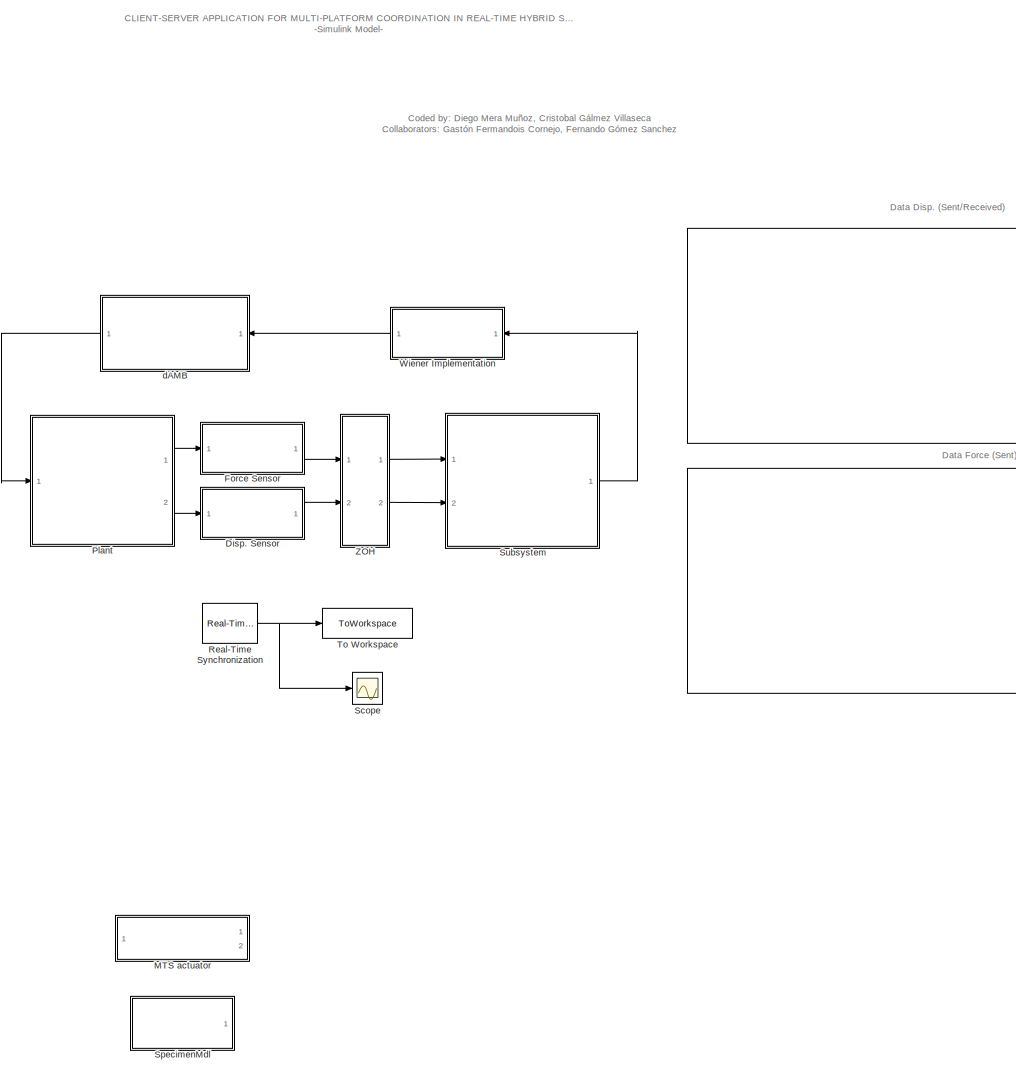
[diagram: root canvas - part 1/2, left side, full height]
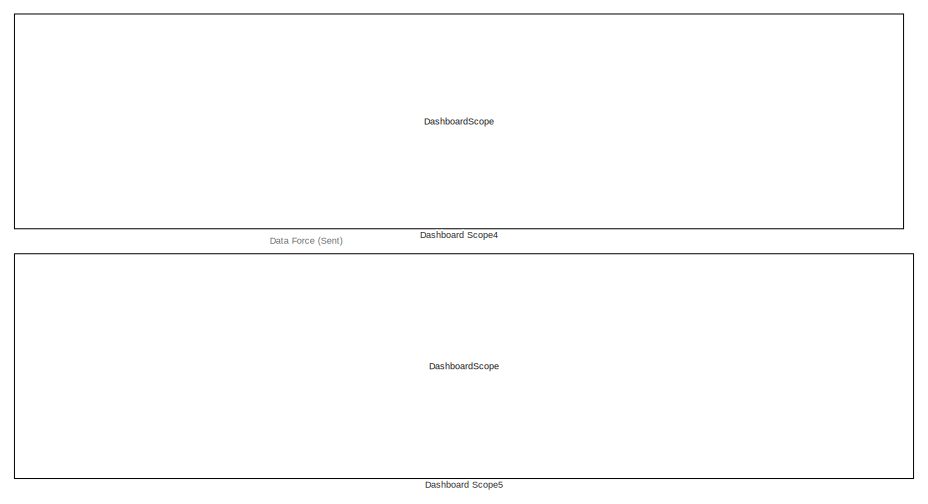
[diagram: root canvas - part 2/2, middle right region]
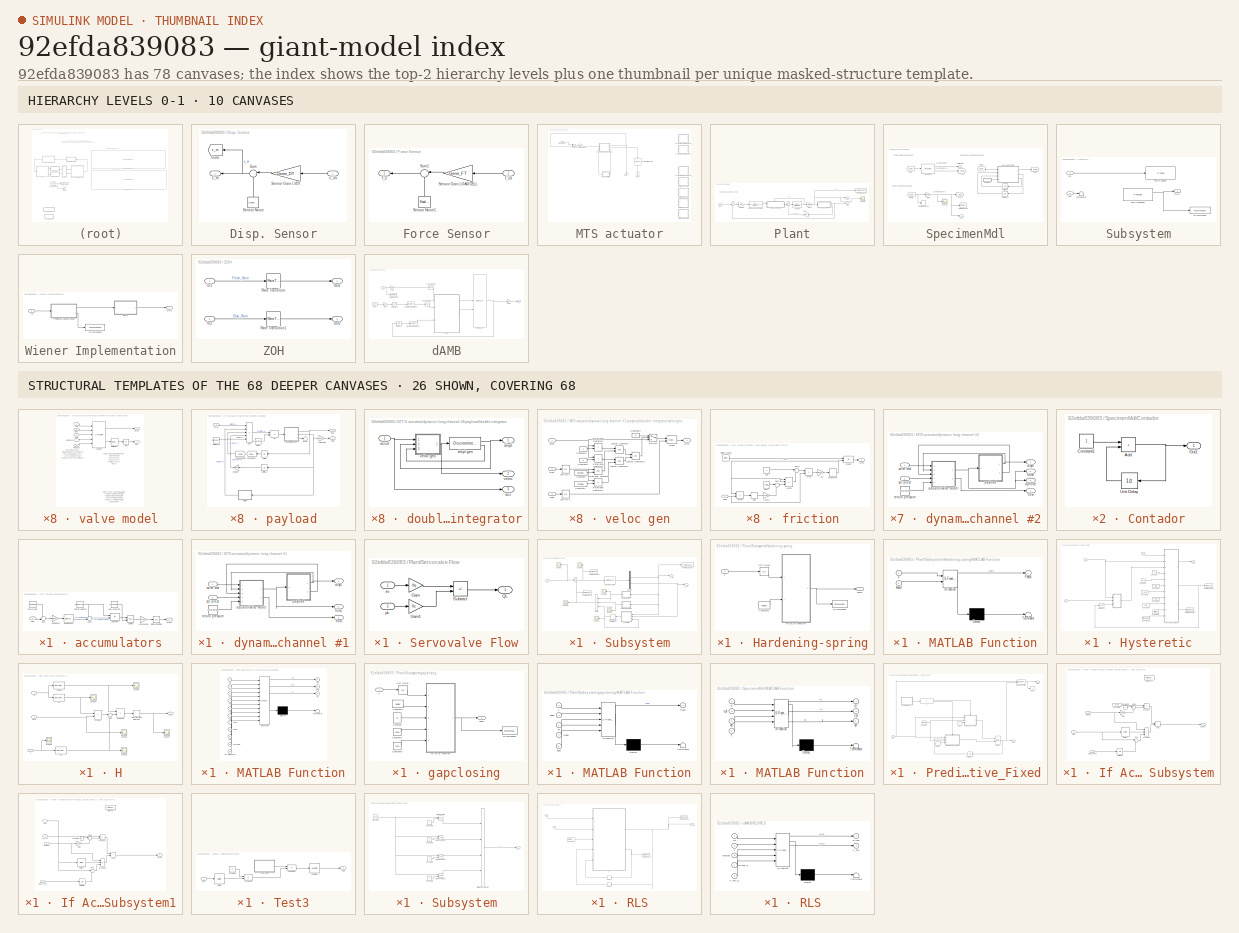
[diagram: thumbnail index - top-2 hierarchy levels (10 canvases) + 26 structural-template representatives of the remaining 68 canvases]
MODEL slx_92efda839083
KIND model
CONFIG AbsTol = auto
CONFIG EnableMultiTasking = off
CONFIG FixedStep = dtfast
CONFIG InitFcn = clear('all');\ninitializeSimulation;
CONFIG MaxStep = auto
CONFIG MinStep = auto
CONFIG PreLoadFcn = initializeSimulation;
CONFIG RelTol = 1e-3
CONFIG SampleTimeConstraint = Unconstrained
CONFIG SolverName = ode8
CONFIG StartTime = 0.0
CONFIG StopTime = 31.2
BLOCK [DashboardScope] Dashboard Scope4
  Ymax = 5
  Ymin = -5
BLOCK [DashboardScope] Dashboard Scope5
  Ymax = 1e-5
  Ymin = -1.5e-5
BLOCK [SubSystem] Disp. Sensor
  NameLocation = top
  Ports = [1, 1]
  RequestExecContextInheritance = off
BLOCK [Goto] Disp. Sensor/Goto
  GotoTag = x_m
  NameLocation = top
  TagVisibility = global
BLOCK [Gain] Disp. Sensor/Sensor Gain LVDT
  Gain = Gsnsr_DT
  OutDataTypeStr = Inherit: Same as input
  ParamDataTypeStr = Inherit: Same as input
  SaturateOnIntegerOverflow = on
BLOCK [Reference] Disp. Sensor/Sensor Noise  REF=simulink/Sources/Band-Limited
White Noise
  NameLocation = right
  Ports = [0, 1]
  SourceBlock = simulink/Sources/Band-Limited\nWhite Noise
  SourceProductBaseCode = SL
  SourceType = Band-Limited White Noise.
BLOCK [Sum] Disp. Sensor/Sum
  InputSameDT = on
  Inputs = |++
  NameLocation = top
  OutDataTypeStr = Inherit: Same as first input
  Ports = [2, 1]
  SaturateOnIntegerOverflow = on
BLOCK [Inport] Disp. Sensor/x_int
BLOCK [Outport] Disp. Sensor/x_m
BLOCK [SubSystem] Force Sensor
  NameLocation = top
  Ports = [1, 1]
  RequestExecContextInheritance = off
BLOCK [Gain] Force Sensor/Sensor Gain LOAD CELL
  Gain = Gsnsr_FT
  OutDataTypeStr = Inherit: Same as input
  ParamDataTypeStr = Inherit: Same as input
  SaturateOnIntegerOverflow = on
BLOCK [Reference] Force Sensor/Sensor Noise1  REF=simulink/Sources/Band-Limited
White Noise
  NameLocation = right
  Ports = [0, 1]
  SourceBlock = simulink/Sources/Band-Limited\nWhite Noise
  SourceProductBaseCode = SL
  SourceType = Band-Limited White Noise.
BLOCK [Sum] Force Sensor/Sum1
  InputSameDT = on
  Inputs = |++
  NameLocation = top
  OutDataTypeStr = Inherit: Same as first input
  Ports = [2, 1]
  SaturateOnIntegerOverflow = on
BLOCK [Outport] Force Sensor/f_e 
BLOCK [Inport] Force Sensor/f_int
BLOCK [SubSystem] MTS actuator
  Commented = on
  Ports = [1, 2]
  RequestExecContextInheritance = off
BLOCK [Reference] MTS actuator/Analog Filter Design  REF=dsparch4/Analog
Filter Design
  NameLocation = left
  Ports = [1, 1]
  SourceBlock = dsparch4/Analog\nFilter Design
  SourceProductBaseCode = DS
  SourceType = Analog Filter Design
BLOCK [Inport] MTS actuator/Disp. Comp.
BLOCK [Outport] MTS actuator/Force
  NameLocation = right
  Port = 2
BLOCK [Gain] MTS actuator/Proportional Gain
  Gain = maxForceC/areaC
BLOCK [Sum] MTS actuator/Subtract
  IconShape = rectangular
  Inputs = +-
  Ports = [2, 1]
BLOCK [SubSystem] MTS actuator/accumulators
  Ports = [1, 1]
  RequestExecContextInheritance = off
BLOCK [Sum] MTS actuator/accumulators/Sum
  InputSameDT = on
  Inputs = +-|
  OutDataTypeStr = Inherit: Same as first input
  Ports = [2, 1]
  SaturateOnIntegerOverflow = on
BLOCK [Sum] MTS actuator/accumulators/Sum1
  InputSameDT = on
  Inputs = +-|
  OutDataTypeStr = Inherit: Same as first input
  Ports = [2, 1]
  SaturateOnIntegerOverflow = on
BLOCK [Constant] MTS actuator/accumulators/bottle volume
  Value = volume*volumeCanon
BLOCK [Inport] MTS actuator/accumulators/flow
BLOCK [Gain] MTS actuator/accumulators/flowCanon
  Gain = flowCanon
  OutDataTypeStr = Inherit: Same as input
  ParamDataTypeStr = Inherit: Same as input
  SaturateOnIntegerOverflow = on
BLOCK [Constant] MTS actuator/accumulators/gas constant
  Value = gasConstant
BLOCK [UnitDelay] MTS actuator/accumulators/initial condition
  HasFrameUpgradeWarning = on
  InitialCondition = supplyPress
  SampleTime = -1
BLOCK [DiscreteIntegrator] MTS actuator/accumulators/integrator
  ICPrevOutput = DiscIntNeverNeededParam
  ICPrevScaledInput = DiscIntNeverNeededParam
  InitialCondition = maxOilVolume*volumeCanon
  LimitOutput = on
  LowerSaturationLimit = 0
  Ports = [1, 1]
  SampleTime = 1/4000
  UpperSaturationLimit = maxOilVolume*volumeCanon
BLOCK [Math] MTS actuator/accumulators/power
  Operator = pow
  Ports = [2, 1]
  SignedPower = on
BLOCK [Gain] MTS actuator/accumulators/precharge
  Gain = precharge
  OutDataTypeStr = Inherit: Same as input
  ParamDataTypeStr = Inherit: Same as input
  SaturateOnIntegerOverflow = on
BLOCK [Outport] MTS actuator/accumulators/press
BLOCK [Constant] MTS actuator/accumulators/pump flow
  Value = pumpFlow
BLOCK [Product] MTS actuator/accumulators/quotient
  InputSameDT = on
  Inputs = */
  OutDataTypeStr = Inherit: Same as first input
  Ports = [2, 1]
  SaturateOnIntegerOverflow = on
BLOCK [Outport] MTS actuator/displ
  NameLocation = right
BLOCK [SubSystem] MTS actuator/dynamic long channel #1
  NameLocation = top
  Ports = [2, 3]
  RequestExecContextInheritance = off
BLOCK [SubSystem] MTS actuator/dynamic long channel #1/actuator//valve model
  Ports = [5, 2]
  RequestExecContextInheritance = off
BLOCK [Abs] MTS actuator/dynamic long channel #1/actuator//valve model/abs
BLOCK [S-Function] MTS actuator/dynamic long channel #1/actuator//valve model/actuator
  EnableBusSupport = off
  FunctionName = actuator
  Parameters = actParamsB
  Ports = [5, 2]
  SFcnIsStateOwnerBlock = off
  SFunctionDeploymentMode = off
BLOCK [Inport] MTS actuator/dynamic long channel #1/actuator//valve model/cmd
BLOCK [Inport] MTS actuator/dynamic long channel #1/actuator//valve model/displ
  Port = 2
BLOCK [Outport] MTS actuator/dynamic long channel #1/actuator//valve model/flow
  Port = 2
BLOCK [Outport] MTS actuator/dynamic long channel #1/actuator//valve model/force
BLOCK [Inport] MTS actuator/dynamic long channel #1/actuator//valve model/rtn press
  Port = 5
BLOCK [Inport] MTS actuator/dynamic long channel #1/actuator//valve model/spl press
  Port = 4
BLOCK [Selector] MTS actuator/dynamic long channel #1/actuator//valve model/total flow sel
  IndexOptions = Index vector (dialog)
  Indices = 9
  InputPortWidth = 12
  OutputSizes = 1
  Ports = [1, 1]
BLOCK [Inport] MTS actuator/dynamic long channel #1/actuator//valve model/veloc
  Port = 3
BLOCK [Outport] MTS actuator/dynamic long channel #1/displ
BLOCK [Outport] MTS actuator/dynamic long channel #1/flow
  Port = 3
BLOCK [Outport] MTS actuator/dynamic long channel #1/force
  Port = 2
BLOCK [SubSystem] MTS actuator/dynamic long channel #1/payload
  Ports = [1, 2]
  RequestExecContextInheritance = off
BLOCK [Sum] MTS actuator/dynamic long channel #1/payload/Sum
  IconShape = rectangular
  InputSameDT = on
  Inputs = +----
  OutDataTypeStr = Inherit: Same as first input
  Ports = [5, 1]
  SaturateOnIntegerOverflow = on
BLOCK [Gain] MTS actuator/dynamic long channel #1/payload/damper
  Gain = damperB*damperCanon
  OutDataTypeStr = Inherit: Same as input
  ParamDataTypeStr = Inherit: Same as input
  SaturateOnIntegerOverflow = on
BLOCK [Outport] MTS actuator/dynamic long channel #1/payload/displ
BLOCK [Product] MTS actuator/dynamic long channel #1/payload/div
  InputSameDT = on
  Inputs = */
  OutDataTypeStr = Inherit: Same as first input
  Ports = [2, 1]
  SaturateOnIntegerOverflow = on
BLOCK [SubSystem] MTS actuator/dynamic long channel #1/payload/double integrator
  Ports = [1, 3]
  RequestExecContextInheritance = off
BLOCK [Outport] MTS actuator/dynamic long channel #1/payload/double integrator/acc
  Port = 3
BLOCK [Inport] MTS actuator/dynamic long channel #1/payload/double integrator/accel
BLOCK [Outport] MTS actuator/dynamic long channel #1/payload/double integrator/displ
BLOCK [DiscreteIntegrator] MTS actuator/dynamic long channel #1/payload/double integrator/displ gen
  ICPrevOutput = DiscIntNeverNeededParam
  ICPrevScaledInput = DiscIntNeverNeededParam
  IntegratorMethod = Integration: Backward Euler
  LimitOutput = on
  LowerSaturationLimit = minDisplB*coef
  Ports = [1, 2]
  SampleTime = 1/4000
  ShowSaturationPort = on
  UpperSaturationLimit = maxDisplB*coef
BLOCK [Outport] MTS actuator/dynamic long channel #1/payload/double integrator/veloc
  Port = 2
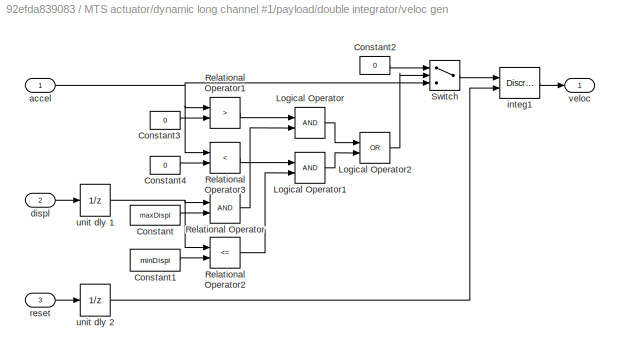
BLOCK [SubSystem] MTS actuator/dynamic long channel #1/payload/double integrator/veloc gen
  Ports = [3, 1]
  RequestExecContextInheritance = off
BLOCK [Constant] MTS actuator/dynamic long channel #1/payload/double integrator/veloc gen/Constant
  Value = maxDispl
BLOCK [Constant] MTS actuator/dynamic long channel #1/payload/double integrator/veloc gen/Constant1
  Value = minDispl
BLOCK [Constant] MTS actuator/dynamic long channel #1/payload/double integrator/veloc gen/Constant2
  Value = 0
BLOCK [Constant] MTS actuator/dynamic long channel #1/payload/double integrator/veloc gen/Constant3
  Value = 0
BLOCK [Constant] MTS actuator/dynamic long channel #1/payload/double integrator/veloc gen/Constant4
  Value = 0
BLOCK [Logic] MTS actuator/dynamic long channel #1/payload/double integrator/veloc gen/Logical Operator
  Ports = [2, 1]
BLOCK [Logic] MTS actuator/dynamic long channel #1/payload/double integrator/veloc gen/Logical Operator1
  Ports = [2, 1]
BLOCK [Logic] MTS actuator/dynamic long channel #1/payload/double integrator/veloc gen/Logical Operator2
  Operator = OR
  Ports = [2, 1]
BLOCK [RelationalOperator] MTS actuator/dynamic long channel #1/payload/double integrator/veloc gen/Relational Operator
  Ports = [2, 1]
BLOCK [RelationalOperator] MTS actuator/dynamic long channel #1/payload/double integrator/veloc gen/Relational Operator1
  Operator = >
  Ports = [2, 1]
BLOCK [RelationalOperator] MTS actuator/dynamic long channel #1/payload/double integrator/veloc gen/Relational Operator2
  Operator = <=
  Ports = [2, 1]
BLOCK [RelationalOperator] MTS actuator/dynamic long channel #1/payload/double integrator/veloc gen/Relational Operator3
  Operator = <
  Ports = [2, 1]
BLOCK [Switch] MTS actuator/dynamic long channel #1/payload/double integrator/veloc gen/Switch
  Threshold = 0.5
BLOCK [Inport] MTS actuator/dynamic long channel #1/payload/double integrator/veloc gen/accel
BLOCK [Inport] MTS actuator/dynamic long channel #1/payload/double integrator/veloc gen/displ
  Port = 2
BLOCK [DiscreteIntegrator] MTS actuator/dynamic long channel #1/payload/double integrator/veloc gen/integ1
  ExternalReset = either
  ICPrevOutput = DiscIntNeverNeededParam
  ICPrevScaledInput = DiscIntNeverNeededParam
  IntegratorMethod = Integration: Backward Euler
  LimitOutput = on
  LowerSaturationLimit = minVeloc
  Ports = [2, 1]
  SampleTime = 1/4000
  UpperSaturationLimit = maxVeloc
BLOCK [Inport] MTS actuator/dynamic long channel #1/payload/double integrator/veloc gen/reset
  Port = 3
BLOCK [UnitDelay] MTS actuator/dynamic long channel #1/payload/double integrator/veloc gen/unit dly 1
  HasFrameUpgradeWarning = on
  SampleTime = -1
BLOCK [UnitDelay] MTS actuator/dynamic long channel #1/payload/double integrator/veloc gen/unit dly 2
  HasFrameUpgradeWarning = on
  SampleTime = -1
BLOCK [Outport] MTS actuator/dynamic long channel #1/payload/double integrator/veloc gen/veloc
BLOCK [Inport] MTS actuator/dynamic long channel #1/payload/force
BLOCK [SubSystem] MTS actuator/dynamic long channel #1/payload/friction
  Ports = [1, 1]
  RequestExecContextInheritance = off
BLOCK [Gain] MTS actuator/dynamic long channel #1/payload/friction/1-beta
  Gain = 1-hysteresis
  OutDataTypeStr = Inherit: Same as input
  ParamDataTypeStr = Inherit: Same as input
  SaturateOnIntegerOverflow = on
BLOCK [Signum] MTS actuator/dynamic long channel #1/payload/friction/Sign
BLOCK [Sum] MTS actuator/dynamic long channel #1/payload/friction/Sum
  Inputs = |++
  Ports = [2, 1]
  SaturateOnIntegerOverflow = on
BLOCK [Sum] MTS actuator/dynamic long channel #1/payload/friction/Sum1
  Inputs = |+-
  Ports = [2, 1]
  SaturateOnIntegerOverflow = on
BLOCK [Constant] MTS actuator/dynamic long channel #1/payload/friction/beta
  Value = hysteresis
BLOCK [Outport] MTS actuator/dynamic long channel #1/payload/friction/force
BLOCK [DiscreteIntegrator] MTS actuator/dynamic long channel #1/payload/friction/integrator
  ICPrevOutput = DiscIntNeverNeededParam
  ICPrevScaledInput = DiscIntNeverNeededParam
  LimitOutput = on
  LowerSaturationLimit = -1
  Ports = [1, 1]
  SampleTime = -1
  UpperSaturationLimit = 1
BLOCK [Constant] MTS actuator/dynamic long channel #1/payload/friction/one
BLOCK [Product] MTS actuator/dynamic long channel #1/payload/friction/prod1
  InputSameDT = on
  OutDataTypeStr = Inherit: Same as first input
  Ports = [2, 1]
  SaturateOnIntegerOverflow = on
BLOCK [Product] MTS actuator/dynamic long channel #1/payload/friction/prod2
  InputSameDT = on
  OutDataTypeStr = Inherit: Same as first input
  Ports = [2, 1]
  SaturateOnIntegerOverflow = on
BLOCK [Product] MTS actuator/dynamic long channel #1/payload/friction/prod3
  InputSameDT = on
  Inputs = 3
  OutDataTypeStr = Inherit: Same as first input
  Ports = [3, 1]
  SaturateOnIntegerOverflow = on
BLOCK [Product] MTS actuator/dynamic long channel #1/payload/friction/prod4
  InputSameDT = on
  OutDataTypeStr = Inherit: Same as first input
  Ports = [2, 1]
  SaturateOnIntegerOverflow = on
BLOCK [Constant] MTS actuator/dynamic long channel #1/payload/friction/sliding friction
  Value = friction
BLOCK [Inport] MTS actuator/dynamic long channel #1/payload/friction/veloc
BLOCK [Gain] MTS actuator/dynamic long channel #1/payload/friction/y inv
  Gain = 1/max(eps, yieldDispl)
  OutDataTypeStr = Inherit: Same as input
  ParamDataTypeStr = Inherit: Same as input
  SaturateOnIntegerOverflow = on
BLOCK [From] MTS actuator/dynamic long channel #1/payload/from specimen
  GotoTag = ch3b
  TagVisibility = global
BLOCK [Constant] MTS actuator/dynamic long channel #1/payload/mass
  Value = massB*massCanon
BLOCK [Constant] MTS actuator/dynamic long channel #1/payload/static force
  Value = staticForceB*forceCanon
BLOCK [Terminator] MTS actuator/dynamic long channel #1/payload/term1
BLOCK [Goto] MTS actuator/dynamic long channel #1/payload/to specimen
  GotoTag = ch3a
  TagVisibility = global
BLOCK [UnitDelay] MTS actuator/dynamic long channel #1/payload/unit dly
  HasFrameUpgradeWarning = on
  SampleTime = -1
BLOCK [UnitDelay] MTS actuator/dynamic long channel #1/payload/unit dly1
  HasFrameUpgradeWarning = on
  SampleTime = -1
BLOCK [Outport] MTS actuator/dynamic long channel #1/payload/veloc
  Port = 2
BLOCK [Gain] MTS actuator/dynamic long channel #1/payload/veloc units
  Gain = 1/velocCanon
  OutDataTypeStr = Inherit: Same as input
  ParamDataTypeStr = Inherit: Same as input
  SaturateOnIntegerOverflow = on
BLOCK [Constant] MTS actuator/dynamic long channel #1/return pressure
  Value = returnPress
BLOCK [Inport] MTS actuator/dynamic long channel #1/spl press
  NameLocation = top
  Port = 2
BLOCK [Inport] MTS actuator/dynamic long channel #1/valve cmd
  NameLocation = top
BLOCK [SubSystem] MTS actuator/dynamic long channel #2
  Commented = on
  NameLocation = top
  Ports = [2, 4]
  RequestExecContextInheritance = off
BLOCK [SubSystem] MTS actuator/dynamic long channel #2/actuator//valve model
  Ports = [5, 2]
  RequestExecContextInheritance = off
BLOCK [Abs] MTS actuator/dynamic long channel #2/actuator//valve model/abs
BLOCK [S-Function] MTS actuator/dynamic long channel #2/actuator//valve model/actuator
  EnableBusSupport = off
  FunctionName = actuator
  Parameters = actParamsB
  Ports = [5, 2]
  SFcnIsStateOwnerBlock = off
  SFunctionDeploymentMode = off
BLOCK [Inport] MTS actuator/dynamic long channel #2/actuator//valve model/cmd
BLOCK [Inport] MTS actuator/dynamic long channel #2/actuator//valve model/displ
  Port = 2
BLOCK [Outport] MTS actuator/dynamic long channel #2/actuator//valve model/flow
  Port = 2
BLOCK [Outport] MTS actuator/dynamic long channel #2/actuator//valve model/force
BLOCK [Inport] MTS actuator/dynamic long channel #2/actuator//valve model/rtn press
  Port = 5
BLOCK [Inport] MTS actuator/dynamic long channel #2/actuator//valve model/spl press
  Port = 4
BLOCK [Selector] MTS actuator/dynamic long channel #2/actuator//valve model/total flow sel
  IndexOptions = Index vector (dialog)
  Indices = 9
  InputPortWidth = 12
  OutputSizes = 1
  Ports = [1, 1]
BLOCK [Inport] MTS actuator/dynamic long channel #2/actuator//valve model/veloc
  Port = 3
BLOCK [Outport] MTS actuator/dynamic long channel #2/displ
BLOCK [Outport] MTS actuator/dynamic long channel #2/dpforce
  Port = 3
BLOCK [Outport] MTS actuator/dynamic long channel #2/flow
  Port = 4
BLOCK [Outport] MTS actuator/dynamic long channel #2/force
  Port = 2
BLOCK [SubSystem] MTS actuator/dynamic long channel #2/payload
  Ports = [1, 2]
  RequestExecContextInheritance = off
BLOCK [Sum] MTS actuator/dynamic long channel #2/payload/Sum
  IconShape = rectangular
  InputSameDT = on
  Inputs = +----
  OutDataTypeStr = Inherit: Same as first input
  Ports = [5, 1]
  SaturateOnIntegerOverflow = on
BLOCK [Gain] MTS actuator/dynamic long channel #2/payload/damper
  Gain = damperB*damperCanon
  OutDataTypeStr = Inherit: Same as input
  ParamDataTypeStr = Inherit: Same as input
  SaturateOnIntegerOverflow = on
BLOCK [Outport] MTS actuator/dynamic long channel #2/payload/displ
BLOCK [Product] MTS actuator/dynamic long channel #2/payload/div
  InputSameDT = on
  Inputs = */
  OutDataTypeStr = Inherit: Same as first input
  Ports = [2, 1]
  SaturateOnIntegerOverflow = on
BLOCK [SubSystem] MTS actuator/dynamic long channel #2/payload/double integrator
  Ports = [1, 3]
  RequestExecContextInheritance = off
BLOCK [Outport] MTS actuator/dynamic long channel #2/payload/double integrator/acc
  Port = 3
BLOCK [Inport] MTS actuator/dynamic long channel #2/payload/double integrator/accel
BLOCK [Outport] MTS actuator/dynamic long channel #2/payload/double integrator/displ
BLOCK [DiscreteIntegrator] MTS actuator/dynamic long channel #2/payload/double integrator/displ gen
  ICPrevOutput = DiscIntNeverNeededParam
  ICPrevScaledInput = DiscIntNeverNeededParam
  IntegratorMethod = Integration: Backward Euler
  LimitOutput = on
  LowerSaturationLimit = minDisplB
  Ports = [1, 2]
  SampleTime = -1
  ShowSaturationPort = on
  UpperSaturationLimit = maxDisplB
BLOCK [Outport] MTS actuator/dynamic long channel #2/payload/double integrator/veloc
  Port = 2
BLOCK [SubSystem] MTS actuator/dynamic long channel #2/payload/double integrator/veloc gen
  Ports = [3, 1]
  RequestExecContextInheritance = off
BLOCK [Constant] MTS actuator/dynamic long channel #2/payload/double integrator/veloc gen/Constant
  Value = maxDispl
BLOCK [Constant] MTS actuator/dynamic long channel #2/payload/double integrator/veloc gen/Constant1
  Value = minDispl
BLOCK [Constant] MTS actuator/dynamic long channel #2/payload/double integrator/veloc gen/Constant2
  Value = 0
BLOCK [Constant] MTS actuator/dynamic long channel #2/payload/double integrator/veloc gen/Constant3
  Value = 0
BLOCK [Constant] MTS actuator/dynamic long channel #2/payload/double integrator/veloc gen/Constant4
  Value = 0
BLOCK [Logic] MTS actuator/dynamic long channel #2/payload/double integrator/veloc gen/Logical Operator
  Ports = [2, 1]
BLOCK [Logic] MTS actuator/dynamic long channel #2/payload/double integrator/veloc gen/Logical Operator1
  Ports = [2, 1]
BLOCK [Logic] MTS actuator/dynamic long channel #2/payload/double integrator/veloc gen/Logical Operator2
  Operator = OR
  Ports = [2, 1]
BLOCK [RelationalOperator] MTS actuator/dynamic long channel #2/payload/double integrator/veloc gen/Relational Operator
  Ports = [2, 1]
BLOCK [RelationalOperator] MTS actuator/dynamic long channel #2/payload/double integrator/veloc gen/Relational Operator1
  Operator = >
  Ports = [2, 1]
BLOCK [RelationalOperator] MTS actuator/dynamic long channel #2/payload/double integrator/veloc gen/Relational Operator2
  Operator = <=
  Ports = [2, 1]
BLOCK [RelationalOperator] MTS actuator/dynamic long channel #2/payload/double integrator/veloc gen/Relational Operator3
  Operator = <
  Ports = [2, 1]
BLOCK [Switch] MTS actuator/dynamic long channel #2/payload/double integrator/veloc gen/Switch
  Threshold = 0.5
BLOCK [Inport] MTS actuator/dynamic long channel #2/payload/double integrator/veloc gen/accel
BLOCK [Inport] MTS actuator/dynamic long channel #2/payload/double integrator/veloc gen/displ
  Port = 2
BLOCK [DiscreteIntegrator] MTS actuator/dynamic long channel #2/payload/double integrator/veloc gen/integ1
  ExternalReset = either
  ICPrevOutput = DiscIntNeverNeededParam
  ICPrevScaledInput = DiscIntNeverNeededParam
  IntegratorMethod = Integration: Backward Euler
  LimitOutput = on
  LowerSaturationLimit = minVeloc
  Ports = [2, 1]
  SampleTime = -1
  UpperSaturationLimit = maxVeloc
BLOCK [Inport] MTS actuator/dynamic long channel #2/payload/double integrator/veloc gen/reset
  Port = 3
BLOCK [UnitDelay] MTS actuator/dynamic long channel #2/payload/double integrator/veloc gen/unit dly 1
  HasFrameUpgradeWarning = on
  SampleTime = -1
BLOCK [UnitDelay] MTS actuator/dynamic long channel #2/payload/double integrator/veloc gen/unit dly 2
  HasFrameUpgradeWarning = on
  SampleTime = -1
BLOCK [Outport] MTS actuator/dynamic long channel #2/payload/double integrator/veloc gen/veloc
BLOCK [Inport] MTS actuator/dynamic long channel #2/payload/force
BLOCK [SubSystem] MTS actuator/dynamic long channel #2/payload/friction
  Ports = [1, 1]
  RequestExecContextInheritance = off
BLOCK [Gain] MTS actuator/dynamic long channel #2/payload/friction/1-beta
  Gain = 1-hysteresis
  OutDataTypeStr = Inherit: Same as input
  ParamDataTypeStr = Inherit: Same as input
  SaturateOnIntegerOverflow = on
BLOCK [Signum] MTS actuator/dynamic long channel #2/payload/friction/Sign
BLOCK [Sum] MTS actuator/dynamic long channel #2/payload/friction/Sum
  Inputs = |++
  Ports = [2, 1]
  SaturateOnIntegerOverflow = on
BLOCK [Sum] MTS actuator/dynamic long channel #2/payload/friction/Sum1
  Inputs = |+-
  Ports = [2, 1]
  SaturateOnIntegerOverflow = on
BLOCK [Constant] MTS actuator/dynamic long channel #2/payload/friction/beta
  Value = hysteresis
BLOCK [Outport] MTS actuator/dynamic long channel #2/payload/friction/force
BLOCK [DiscreteIntegrator] MTS actuator/dynamic long channel #2/payload/friction/integrator
  ICPrevOutput = DiscIntNeverNeededParam
  ICPrevScaledInput = DiscIntNeverNeededParam
  LimitOutput = on
  LowerSaturationLimit = -1
  Ports = [1, 1]
  SampleTime = -1
  UpperSaturationLimit = 1
BLOCK [Constant] MTS actuator/dynamic long channel #2/payload/friction/one
BLOCK [Product] MTS actuator/dynamic long channel #2/payload/friction/prod1
  InputSameDT = on
  OutDataTypeStr = Inherit: Same as first input
  Ports = [2, 1]
  SaturateOnIntegerOverflow = on
BLOCK [Product] MTS actuator/dynamic long channel #2/payload/friction/prod2
  InputSameDT = on
  OutDataTypeStr = Inherit: Same as first input
  Ports = [2, 1]
  SaturateOnIntegerOverflow = on
BLOCK [Product] MTS actuator/dynamic long channel #2/payload/friction/prod3
  InputSameDT = on
  Inputs = 3
  OutDataTypeStr = Inherit: Same as first input
  Ports = [3, 1]
  SaturateOnIntegerOverflow = on
BLOCK [Product] MTS actuator/dynamic long channel #2/payload/friction/prod4
  InputSameDT = on
  OutDataTypeStr = Inherit: Same as first input
  Ports = [2, 1]
  SaturateOnIntegerOverflow = on
BLOCK [Constant] MTS actuator/dynamic long channel #2/payload/friction/sliding friction
  Value = friction
BLOCK [Inport] MTS actuator/dynamic long channel #2/payload/friction/veloc
BLOCK [Gain] MTS actuator/dynamic long channel #2/payload/friction/y inv
  Gain = 1/max(eps, yieldDispl)
  OutDataTypeStr = Inherit: Same as input
  ParamDataTypeStr = Inherit: Same as input
  SaturateOnIntegerOverflow = on
BLOCK [From] MTS actuator/dynamic long channel #2/payload/from specimen
  GotoTag = ch4b
  TagVisibility = global
BLOCK [Constant] MTS actuator/dynamic long channel #2/payload/mass
  Value = massB*massCanon
BLOCK [Constant] MTS actuator/dynamic long channel #2/payload/static force
  Value = staticForceB*forceCanon
BLOCK [Terminator] MTS actuator/dynamic long channel #2/payload/term1
BLOCK [Goto] MTS actuator/dynamic long channel #2/payload/to specimen
  GotoTag = ch4a
  TagVisibility = global
BLOCK [UnitDelay] MTS actuator/dynamic long channel #2/payload/unit dly
  HasFrameUpgradeWarning = on
  SampleTime = -1
BLOCK [UnitDelay] MTS actuator/dynamic long channel #2/payload/unit dly1
  HasFrameUpgradeWarning = on
  SampleTime = -1
BLOCK [Outport] MTS actuator/dynamic long channel #2/payload/veloc
  Port = 2
BLOCK [Gain] MTS actuator/dynamic long channel #2/payload/veloc units
  Gain = 1/velocCanon
  OutDataTypeStr = Inherit: Same as input
  ParamDataTypeStr = Inherit: Same as input
  SaturateOnIntegerOverflow = on
BLOCK [Constant] MTS actuator/dynamic long channel #2/return pressure
  Value = returnPress
BLOCK [Inport] MTS actuator/dynamic long channel #2/spl press
  NameLocation = top
  Port = 2
BLOCK [Inport] MTS actuator/dynamic long channel #2/valve cmd
  NameLocation = top
BLOCK [SubSystem] MTS actuator/dynamic short channel #1
  Commented = on
  NameLocation = top
  Ports = [2, 4]
  RequestExecContextInheritance = off
BLOCK [SubSystem] MTS actuator/dynamic short channel #1/actuator//valve model
  Ports = [5, 2]
  RequestExecContextInheritance = off
BLOCK [Abs] MTS actuator/dynamic short channel #1/actuator//valve model/abs
BLOCK [S-Function] MTS actuator/dynamic short channel #1/actuator//valve model/actuator
  EnableBusSupport = off
  FunctionName = actuator
  Parameters = actParamsA
  Ports = [5, 2]
  SFcnIsStateOwnerBlock = off
  SFunctionDeploymentMode = off
BLOCK [Inport] MTS actuator/dynamic short channel #1/actuator//valve model/cmd
BLOCK [Inport] MTS actuator/dynamic short channel #1/actuator//valve model/displ
  Port = 2
BLOCK [Outport] MTS actuator/dynamic short channel #1/actuator//valve model/flow
  Port = 2
BLOCK [Outport] MTS actuator/dynamic short channel #1/actuator//valve model/force
BLOCK [Inport] MTS actuator/dynamic short channel #1/actuator//valve model/rtn press
  Port = 5
BLOCK [Inport] MTS actuator/dynamic short channel #1/actuator//valve model/spl press
  Port = 4
BLOCK [Selector] MTS actuator/dynamic short channel #1/actuator//valve model/total flow sel
  IndexOptions = Index vector (dialog)
  Indices = 9
  InputPortWidth = 12
  OutputSizes = 1
  Ports = [1, 1]
BLOCK [Inport] MTS actuator/dynamic short channel #1/actuator//valve model/veloc
  Port = 3
BLOCK [Outport] MTS actuator/dynamic short channel #1/displ
BLOCK [Outport] MTS actuator/dynamic short channel #1/dpforce
  Port = 3
BLOCK [Outport] MTS actuator/dynamic short channel #1/flow
  Port = 4
BLOCK [Outport] MTS actuator/dynamic short channel #1/force
  Port = 2
BLOCK [SubSystem] MTS actuator/dynamic short channel #1/payload
  Ports = [1, 2]
  RequestExecContextInheritance = off
BLOCK [Sum] MTS actuator/dynamic short channel #1/payload/Sum
  IconShape = rectangular
  InputSameDT = on
  Inputs = +----
  OutDataTypeStr = Inherit: Same as first input
  Ports = [5, 1]
  SaturateOnIntegerOverflow = on
BLOCK [Gain] MTS actuator/dynamic short channel #1/payload/damper
  Gain = damperA*damperCanon
  OutDataTypeStr = Inherit: Same as input
  ParamDataTypeStr = Inherit: Same as input
  SaturateOnIntegerOverflow = on
BLOCK [Outport] MTS actuator/dynamic short channel #1/payload/displ
BLOCK [Product] MTS actuator/dynamic short channel #1/payload/div
  InputSameDT = on
  Inputs = */
  OutDataTypeStr = Inherit: Same as first input
  Ports = [2, 1]
  SaturateOnIntegerOverflow = on
BLOCK [SubSystem] MTS actuator/dynamic short channel #1/payload/double integrator
  Ports = [1, 3]
  RequestExecContextInheritance = off
BLOCK [Outport] MTS actuator/dynamic short channel #1/payload/double integrator/acc
  Port = 3
BLOCK [Inport] MTS actuator/dynamic short channel #1/payload/double integrator/accel
BLOCK [Outport] MTS actuator/dynamic short channel #1/payload/double integrator/displ
BLOCK [DiscreteIntegrator] MTS actuator/dynamic short channel #1/payload/double integrator/displ gen
  ICPrevOutput = DiscIntNeverNeededParam
  ICPrevScaledInput = DiscIntNeverNeededParam
  IntegratorMethod = Integration: Backward Euler
  LimitOutput = on
  LowerSaturationLimit = minDisplA
  Ports = [1, 2]
  SampleTime = 1/1024
  ShowSaturationPort = on
  UpperSaturationLimit = maxDisplA
BLOCK [Outport] MTS actuator/dynamic short channel #1/payload/double integrator/veloc
  Port = 2
BLOCK [SubSystem] MTS actuator/dynamic short channel #1/payload/double integrator/veloc gen
  Ports = [3, 1]
  RequestExecContextInheritance = off
BLOCK [Constant] MTS actuator/dynamic short channel #1/payload/double integrator/veloc gen/Constant
  Value = maxDispl
BLOCK [Constant] MTS actuator/dynamic short channel #1/payload/double integrator/veloc gen/Constant1
  Value = minDispl
BLOCK [Constant] MTS actuator/dynamic short channel #1/payload/double integrator/veloc gen/Constant2
  Value = 0
BLOCK [Constant] MTS actuator/dynamic short channel #1/payload/double integrator/veloc gen/Constant3
  Value = 0
BLOCK [Constant] MTS actuator/dynamic short channel #1/payload/double integrator/veloc gen/Constant4
  Value = 0
BLOCK [Logic] MTS actuator/dynamic short channel #1/payload/double integrator/veloc gen/Logical Operator
  Ports = [2, 1]
BLOCK [Logic] MTS actuator/dynamic short channel #1/payload/double integrator/veloc gen/Logical Operator1
  Ports = [2, 1]
BLOCK [Logic] MTS actuator/dynamic short channel #1/payload/double integrator/veloc gen/Logical Operator2
  Operator = OR
  Ports = [2, 1]
BLOCK [RelationalOperator] MTS actuator/dynamic short channel #1/payload/double integrator/veloc gen/Relational Operator
  Ports = [2, 1]
BLOCK [RelationalOperator] MTS actuator/dynamic short channel #1/payload/double integrator/veloc gen/Relational Operator1
  Operator = >
  Ports = [2, 1]
BLOCK [RelationalOperator] MTS actuator/dynamic short channel #1/payload/double integrator/veloc gen/Relational Operator2
  Operator = <=
  Ports = [2, 1]
BLOCK [RelationalOperator] MTS actuator/dynamic short channel #1/payload/double integrator/veloc gen/Relational Operator3
  Operator = <
  Ports = [2, 1]
BLOCK [Switch] MTS actuator/dynamic short channel #1/payload/double integrator/veloc gen/Switch
  Threshold = 0.5
BLOCK [Inport] MTS actuator/dynamic short channel #1/payload/double integrator/veloc gen/accel
BLOCK [Inport] MTS actuator/dynamic short channel #1/payload/double integrator/veloc gen/displ
  Port = 2
BLOCK [DiscreteIntegrator] MTS actuator/dynamic short channel #1/payload/double integrator/veloc gen/integ1
  ExternalReset = either
  ICPrevOutput = DiscIntNeverNeededParam
  ICPrevScaledInput = DiscIntNeverNeededParam
  IntegratorMethod = Integration: Backward Euler
  LimitOutput = on
  LowerSaturationLimit = minVeloc
  Ports = [2, 1]
  SampleTime = 1/1024
  UpperSaturationLimit = maxVeloc
BLOCK [Inport] MTS actuator/dynamic short channel #1/payload/double integrator/veloc gen/reset
  Port = 3
BLOCK [UnitDelay] MTS actuator/dynamic short channel #1/payload/double integrator/veloc gen/unit dly 1
  HasFrameUpgradeWarning = on
  SampleTime = -1
BLOCK [UnitDelay] MTS actuator/dynamic short channel #1/payload/double integrator/veloc gen/unit dly 2
  HasFrameUpgradeWarning = on
  SampleTime = -1
BLOCK [Outport] MTS actuator/dynamic short channel #1/payload/double integrator/veloc gen/veloc
BLOCK [Inport] MTS actuator/dynamic short channel #1/payload/force
BLOCK [SubSystem] MTS actuator/dynamic short channel #1/payload/friction
  Ports = [1, 1]
  RequestExecContextInheritance = off
BLOCK [Gain] MTS actuator/dynamic short channel #1/payload/friction/1-beta
  Gain = 1-hysteresis
  OutDataTypeStr = Inherit: Same as input
  ParamDataTypeStr = Inherit: Same as input
  SaturateOnIntegerOverflow = on
BLOCK [Signum] MTS actuator/dynamic short channel #1/payload/friction/Sign
BLOCK [Sum] MTS actuator/dynamic short channel #1/payload/friction/Sum
  Inputs = |++
  Ports = [2, 1]
  SaturateOnIntegerOverflow = on
BLOCK [Sum] MTS actuator/dynamic short channel #1/payload/friction/Sum1
  Inputs = |+-
  Ports = [2, 1]
  SaturateOnIntegerOverflow = on
BLOCK [Constant] MTS actuator/dynamic short channel #1/payload/friction/beta
  Value = hysteresis
BLOCK [Outport] MTS actuator/dynamic short channel #1/payload/friction/force
BLOCK [DiscreteIntegrator] MTS actuator/dynamic short channel #1/payload/friction/integrator
  ICPrevOutput = DiscIntNeverNeededParam
  ICPrevScaledInput = DiscIntNeverNeededParam
  LimitOutput = on
  LowerSaturationLimit = -1
  Ports = [1, 1]
  SampleTime = -1
  UpperSaturationLimit = 1
BLOCK [Constant] MTS actuator/dynamic short channel #1/payload/friction/one
BLOCK [Product] MTS actuator/dynamic short channel #1/payload/friction/prod1
  InputSameDT = on
  OutDataTypeStr = Inherit: Same as first input
  Ports = [2, 1]
  SaturateOnIntegerOverflow = on
BLOCK [Product] MTS actuator/dynamic short channel #1/payload/friction/prod2
  InputSameDT = on
  OutDataTypeStr = Inherit: Same as first input
  Ports = [2, 1]
  SaturateOnIntegerOverflow = on
BLOCK [Product] MTS actuator/dynamic short channel #1/payload/friction/prod3
  InputSameDT = on
  Inputs = 3
  OutDataTypeStr = Inherit: Same as first input
  Ports = [3, 1]
  SaturateOnIntegerOverflow = on
BLOCK [Product] MTS actuator/dynamic short channel #1/payload/friction/prod4
  InputSameDT = on
  OutDataTypeStr = Inherit: Same as first input
  Ports = [2, 1]
  SaturateOnIntegerOverflow = on
BLOCK [Constant] MTS actuator/dynamic short channel #1/payload/friction/sliding friction
  Value = friction
BLOCK [Inport] MTS actuator/dynamic short channel #1/payload/friction/veloc
BLOCK [Gain] MTS actuator/dynamic short channel #1/payload/friction/y inv
  Gain = 1/max(eps, yieldDispl)
  OutDataTypeStr = Inherit: Same as input
  ParamDataTypeStr = Inherit: Same as input
  SaturateOnIntegerOverflow = on
BLOCK [From] MTS actuator/dynamic short channel #1/payload/from specimen
  GotoTag = ch1b
  TagVisibility = global
BLOCK [Constant] MTS actuator/dynamic short channel #1/payload/mass
  Value = massA*massCanon
BLOCK [Constant] MTS actuator/dynamic short channel #1/payload/static force
  Value = staticForceA*forceCanon
BLOCK [Terminator] MTS actuator/dynamic short channel #1/payload/term1
BLOCK [Goto] MTS actuator/dynamic short channel #1/payload/to specimen
  GotoTag = ch1a
  TagVisibility = global
BLOCK [UnitDelay] MTS actuator/dynamic short channel #1/payload/unit dly
  HasFrameUpgradeWarning = on
  SampleTime = -1
BLOCK [UnitDelay] MTS actuator/dynamic short channel #1/payload/unit dly1
  HasFrameUpgradeWarning = on
  SampleTime = -1
BLOCK [Outport] MTS actuator/dynamic short channel #1/payload/veloc
  Port = 2
BLOCK [Gain] MTS actuator/dynamic short channel #1/payload/veloc units
  Gain = 1/velocCanon
  OutDataTypeStr = Inherit: Same as input
  ParamDataTypeStr = Inherit: Same as input
  SaturateOnIntegerOverflow = on
BLOCK [Constant] MTS actuator/dynamic short channel #1/return pressure
  Value = returnPress
BLOCK [Inport] MTS actuator/dynamic short channel #1/spl press
  NameLocation = top
  Port = 2
BLOCK [Inport] MTS actuator/dynamic short channel #1/valve cmd
  NameLocation = top
BLOCK [SubSystem] MTS actuator/dynamic short channel #2
  Commented = on
  NameLocation = top
  Ports = [2, 4]
  RequestExecContextInheritance = off
BLOCK [SubSystem] MTS actuator/dynamic short channel #2/actuator//valve model
  Ports = [5, 2]
  RequestExecContextInheritance = off
BLOCK [Abs] MTS actuator/dynamic short channel #2/actuator//valve model/abs
BLOCK [S-Function] MTS actuator/dynamic short channel #2/actuator//valve model/actuator
  EnableBusSupport = off
  FunctionName = actuator
  Parameters = actParamsA
  Ports = [5, 2]
  SFcnIsStateOwnerBlock = off
  SFunctionDeploymentMode = off
BLOCK [Inport] MTS actuator/dynamic short channel #2/actuator//valve model/cmd
BLOCK [Inport] MTS actuator/dynamic short channel #2/actuator//valve model/displ
  Port = 2
BLOCK [Outport] MTS actuator/dynamic short channel #2/actuator//valve model/flow
  Port = 2
BLOCK [Outport] MTS actuator/dynamic short channel #2/actuator//valve model/force
BLOCK [Inport] MTS actuator/dynamic short channel #2/actuator//valve model/rtn press
  Port = 5
BLOCK [Inport] MTS actuator/dynamic short channel #2/actuator//valve model/spl press
  Port = 4
BLOCK [Selector] MTS actuator/dynamic short channel #2/actuator//valve model/total flow sel
  IndexOptions = Index vector (dialog)
  Indices = 9
  InputPortWidth = 12
  OutputSizes = 1
  Ports = [1, 1]
BLOCK [Inport] MTS actuator/dynamic short channel #2/actuator//valve model/veloc
  Port = 3
BLOCK [Outport] MTS actuator/dynamic short channel #2/displ
BLOCK [Outport] MTS actuator/dynamic short channel #2/dpforce
  Port = 3
BLOCK [Outport] MTS actuator/dynamic short channel #2/flow
  Port = 4
BLOCK [Outport] MTS actuator/dynamic short channel #2/force
  Port = 2
BLOCK [SubSystem] MTS actuator/dynamic short channel #2/payload
  Ports = [1, 2]
  RequestExecContextInheritance = off
BLOCK [Sum] MTS actuator/dynamic short channel #2/payload/Sum
  IconShape = rectangular
  InputSameDT = on
  Inputs = +----
  OutDataTypeStr = Inherit: Same as first input
  Ports = [5, 1]
  SaturateOnIntegerOverflow = on
BLOCK [Gain] MTS actuator/dynamic short channel #2/payload/damper
  Gain = damperA*damperCanon
  OutDataTypeStr = Inherit: Same as input
  ParamDataTypeStr = Inherit: Same as input
  SaturateOnIntegerOverflow = on
BLOCK [Outport] MTS actuator/dynamic short channel #2/payload/displ
BLOCK [Product] MTS actuator/dynamic short channel #2/payload/div
  InputSameDT = on
  Inputs = */
  OutDataTypeStr = Inherit: Same as first input
  Ports = [2, 1]
  SaturateOnIntegerOverflow = on
BLOCK [SubSystem] MTS actuator/dynamic short channel #2/payload/double integrator
  Ports = [1, 3]
  RequestExecContextInheritance = off
BLOCK [Outport] MTS actuator/dynamic short channel #2/payload/double integrator/acc
  Port = 3
BLOCK [Inport] MTS actuator/dynamic short channel #2/payload/double integrator/accel
BLOCK [Outport] MTS actuator/dynamic short channel #2/payload/double integrator/displ
BLOCK [DiscreteIntegrator] MTS actuator/dynamic short channel #2/payload/double integrator/displ gen
  ICPrevOutput = DiscIntNeverNeededParam
  ICPrevScaledInput = DiscIntNeverNeededParam
  IntegratorMethod = Integration: Backward Euler
  LimitOutput = on
  LowerSaturationLimit = minDisplA
  Ports = [1, 2]
  SampleTime = -1
  ShowSaturationPort = on
  UpperSaturationLimit = maxDisplA
BLOCK [Outport] MTS actuator/dynamic short channel #2/payload/double integrator/veloc
  Port = 2
BLOCK [SubSystem] MTS actuator/dynamic short channel #2/payload/double integrator/veloc gen
  Ports = [3, 1]
  RequestExecContextInheritance = off
BLOCK [Constant] MTS actuator/dynamic short channel #2/payload/double integrator/veloc gen/Constant
  Value = maxDispl
BLOCK [Constant] MTS actuator/dynamic short channel #2/payload/double integrator/veloc gen/Constant1
  Value = minDispl
BLOCK [Constant] MTS actuator/dynamic short channel #2/payload/double integrator/veloc gen/Constant2
  Value = 0
BLOCK [Constant] MTS actuator/dynamic short channel #2/payload/double integrator/veloc gen/Constant3
  Value = 0
BLOCK [Constant] MTS actuator/dynamic short channel #2/payload/double integrator/veloc gen/Constant4
  Value = 0
BLOCK [Logic] MTS actuator/dynamic short channel #2/payload/double integrator/veloc gen/Logical Operator
  Ports = [2, 1]
BLOCK [Logic] MTS actuator/dynamic short channel #2/payload/double integrator/veloc gen/Logical Operator1
  Ports = [2, 1]
BLOCK [Logic] MTS actuator/dynamic short channel #2/payload/double integrator/veloc gen/Logical Operator2
  Operator = OR
  Ports = [2, 1]
BLOCK [RelationalOperator] MTS actuator/dynamic short channel #2/payload/double integrator/veloc gen/Relational Operator
  Ports = [2, 1]
BLOCK [RelationalOperator] MTS actuator/dynamic short channel #2/payload/double integrator/veloc gen/Relational Operator1
  Operator = >
  Ports = [2, 1]
BLOCK [RelationalOperator] MTS actuator/dynamic short channel #2/payload/double integrator/veloc gen/Relational Operator2
  Operator = <=
  Ports = [2, 1]
BLOCK [RelationalOperator] MTS actuator/dynamic short channel #2/payload/double integrator/veloc gen/Relational Operator3
  Operator = <
  Ports = [2, 1]
BLOCK [Switch] MTS actuator/dynamic short channel #2/payload/double integrator/veloc gen/Switch
  Threshold = 0.5
BLOCK [Inport] MTS actuator/dynamic short channel #2/payload/double integrator/veloc gen/accel
BLOCK [Inport] MTS actuator/dynamic short channel #2/payload/double integrator/veloc gen/displ
  Port = 2
BLOCK [DiscreteIntegrator] MTS actuator/dynamic short channel #2/payload/double integrator/veloc gen/integ1
  ExternalReset = either
  ICPrevOutput = DiscIntNeverNeededParam
  ICPrevScaledInput = DiscIntNeverNeededParam
  IntegratorMethod = Integration: Backward Euler
  LimitOutput = on
  LowerSaturationLimit = minVeloc
  Ports = [2, 1]
  SampleTime = -1
  UpperSaturationLimit = maxVeloc
BLOCK [Inport] MTS actuator/dynamic short channel #2/payload/double integrator/veloc gen/reset
  Port = 3
BLOCK [UnitDelay] MTS actuator/dynamic short channel #2/payload/double integrator/veloc gen/unit dly 1
  HasFrameUpgradeWarning = on
  SampleTime = -1
BLOCK [UnitDelay] MTS actuator/dynamic short channel #2/payload/double integrator/veloc gen/unit dly 2
  HasFrameUpgradeWarning = on
  SampleTime = -1
BLOCK [Outport] MTS actuator/dynamic short channel #2/payload/double integrator/veloc gen/veloc
BLOCK [Inport] MTS actuator/dynamic short channel #2/payload/force
BLOCK [SubSystem] MTS actuator/dynamic short channel #2/payload/friction
  Ports = [1, 1]
  RequestExecContextInheritance = off
BLOCK [Gain] MTS actuator/dynamic short channel #2/payload/friction/1-beta
  Gain = 1-hysteresis
  OutDataTypeStr = Inherit: Same as input
  ParamDataTypeStr = Inherit: Same as input
  SaturateOnIntegerOverflow = on
BLOCK [Signum] MTS actuator/dynamic short channel #2/payload/friction/Sign
BLOCK [Sum] MTS actuator/dynamic short channel #2/payload/friction/Sum
  Inputs = |++
  Ports = [2, 1]
  SaturateOnIntegerOverflow = on
BLOCK [Sum] MTS actuator/dynamic short channel #2/payload/friction/Sum1
  Inputs = |+-
  Ports = [2, 1]
  SaturateOnIntegerOverflow = on
BLOCK [Constant] MTS actuator/dynamic short channel #2/payload/friction/beta
  Value = hysteresis
BLOCK [Outport] MTS actuator/dynamic short channel #2/payload/friction/force
BLOCK [DiscreteIntegrator] MTS actuator/dynamic short channel #2/payload/friction/integrator
  ICPrevOutput = DiscIntNeverNeededParam
  ICPrevScaledInput = DiscIntNeverNeededParam
  LimitOutput = on
  LowerSaturationLimit = -1
  Ports = [1, 1]
  SampleTime = -1
  UpperSaturationLimit = 1
BLOCK [Constant] MTS actuator/dynamic short channel #2/payload/friction/one
BLOCK [Product] MTS actuator/dynamic short channel #2/payload/friction/prod1
  InputSameDT = on
  OutDataTypeStr = Inherit: Same as first input
  Ports = [2, 1]
  SaturateOnIntegerOverflow = on
BLOCK [Product] MTS actuator/dynamic short channel #2/payload/friction/prod2
  InputSameDT = on
  OutDataTypeStr = Inherit: Same as first input
  Ports = [2, 1]
  SaturateOnIntegerOverflow = on
BLOCK [Product] MTS actuator/dynamic short channel #2/payload/friction/prod3
  InputSameDT = on
  Inputs = 3
  OutDataTypeStr = Inherit: Same as first input
  Ports = [3, 1]
  SaturateOnIntegerOverflow = on
BLOCK [Product] MTS actuator/dynamic short channel #2/payload/friction/prod4
  InputSameDT = on
  OutDataTypeStr = Inherit: Same as first input
  Ports = [2, 1]
  SaturateOnIntegerOverflow = on
BLOCK [Constant] MTS actuator/dynamic short channel #2/payload/friction/sliding friction
  Value = friction
BLOCK [Inport] MTS actuator/dynamic short channel #2/payload/friction/veloc
BLOCK [Gain] MTS actuator/dynamic short channel #2/payload/friction/y inv
  Gain = 1/max(eps, yieldDispl)
  OutDataTypeStr = Inherit: Same as input
  ParamDataTypeStr = Inherit: Same as input
  SaturateOnIntegerOverflow = on
BLOCK [From] MTS actuator/dynamic short channel #2/payload/from specimen
  GotoTag = ch2b
  TagVisibility = global
BLOCK [Constant] MTS actuator/dynamic short channel #2/payload/mass
  Value = massA*massCanon
BLOCK [Constant] MTS actuator/dynamic short channel #2/payload/static force
  Value = staticForceA*forceCanon
BLOCK [Terminator] MTS actuator/dynamic short channel #2/payload/term1
BLOCK [Goto] MTS actuator/dynamic short channel #2/payload/to specimen
  GotoTag = ch2a
  TagVisibility = global
BLOCK [UnitDelay] MTS actuator/dynamic short channel #2/payload/unit dly
  HasFrameUpgradeWarning = on
  SampleTime = -1
BLOCK [UnitDelay] MTS actuator/dynamic short channel #2/payload/unit dly1
  HasFrameUpgradeWarning = on
  SampleTime = -1
BLOCK [Outport] MTS actuator/dynamic short channel #2/payload/veloc
  Port = 2
BLOCK [Gain] MTS actuator/dynamic short channel #2/payload/veloc units
  Gain = 1/velocCanon
  OutDataTypeStr = Inherit: Same as input
  ParamDataTypeStr = Inherit: Same as input
  SaturateOnIntegerOverflow = on
BLOCK [Constant] MTS actuator/dynamic short channel #2/return pressure
  Value = returnPress
BLOCK [Inport] MTS actuator/dynamic short channel #2/spl press
  NameLocation = top
  Port = 2
BLOCK [Inport] MTS actuator/dynamic short channel #2/valve cmd
  NameLocation = top
BLOCK [SubSystem] MTS actuator/static channel #1
  Commented = on
  NameLocation = top
  Ports = [2, 4]
  RequestExecContextInheritance = off
BLOCK [SubSystem] MTS actuator/static channel #1/actuator//valve model
  Ports = [5, 2]
  RequestExecContextInheritance = off
BLOCK [Abs] MTS actuator/static channel #1/actuator//valve model/abs
BLOCK [S-Function] MTS actuator/static channel #1/actuator//valve model/actuator
  EnableBusSupport = off
  FunctionName = actuator
  Parameters = actParamsC
  Ports = [5, 2]
  SFcnIsStateOwnerBlock = off
  SFunctionDeploymentMode = off
BLOCK [Inport] MTS actuator/static channel #1/actuator//valve model/cmd
BLOCK [Inport] MTS actuator/static channel #1/actuator//valve model/displ
  Port = 2
BLOCK [Outport] MTS actuator/static channel #1/actuator//valve model/flow
  Port = 2
BLOCK [Outport] MTS actuator/static channel #1/actuator//valve model/force
BLOCK [Inport] MTS actuator/static channel #1/actuator//valve model/rtn press
  Port = 5
BLOCK [Inport] MTS actuator/static channel #1/actuator//valve model/spl press
  Port = 4
BLOCK [Selector] MTS actuator/static channel #1/actuator//valve model/total flow sel
  IndexOptions = Index vector (dialog)
  Indices = 9
  InputPortWidth = 12
  OutputSizes = 1
  Ports = [1, 1]
BLOCK [Inport] MTS actuator/static channel #1/actuator//valve model/veloc
  Port = 3
BLOCK [Outport] MTS actuator/static channel #1/displ
BLOCK [Outport] MTS actuator/static channel #1/dpforce
  Port = 3
BLOCK [Outport] MTS actuator/static channel #1/flow
  Port = 4
BLOCK [Outport] MTS actuator/static channel #1/force
  Port = 2
BLOCK [SubSystem] MTS actuator/static channel #1/payload
  Ports = [1, 2]
  RequestExecContextInheritance = off
BLOCK [Sum] MTS actuator/static channel #1/payload/Sum
  IconShape = rectangular
  InputSameDT = on
  Inputs = +----
  OutDataTypeStr = Inherit: Same as first input
  Ports = [5, 1]
  SaturateOnIntegerOverflow = on
BLOCK [Gain] MTS actuator/static channel #1/payload/damper
  Gain = damperC*damperCanon
  OutDataTypeStr = Inherit: Same as input
  ParamDataTypeStr = Inherit: Same as input
  SaturateOnIntegerOverflow = on
BLOCK [Outport] MTS actuator/static channel #1/payload/displ
BLOCK [Product] MTS actuator/static channel #1/payload/div
  InputSameDT = on
  Inputs = */
  OutDataTypeStr = Inherit: Same as first input
  Ports = [2, 1]
  SaturateOnIntegerOverflow = on
BLOCK [SubSystem] MTS actuator/static channel #1/payload/double integrator
  Ports = [1, 3]
  RequestExecContextInheritance = off
BLOCK [Outport] MTS actuator/static channel #1/payload/double integrator/acc
  Port = 3
BLOCK [Inport] MTS actuator/static channel #1/payload/double integrator/accel
BLOCK [Outport] MTS actuator/static channel #1/payload/double integrator/displ
BLOCK [DiscreteIntegrator] MTS actuator/static channel #1/payload/double integrator/displ gen
  ICPrevOutput = DiscIntNeverNeededParam
  ICPrevScaledInput = DiscIntNeverNeededParam
  IntegratorMethod = Integration: Backward Euler
  LimitOutput = on
  LowerSaturationLimit = minDisplC
  Ports = [1, 2]
  SampleTime = -1
  ShowSaturationPort = on
  UpperSaturationLimit = maxDisplC
BLOCK [Outport] MTS actuator/static channel #1/payload/double integrator/veloc
  Port = 2
BLOCK [SubSystem] MTS actuator/static channel #1/payload/double integrator/veloc gen
  Ports = [3, 1]
  RequestExecContextInheritance = off
BLOCK [Constant] MTS actuator/static channel #1/payload/double integrator/veloc gen/Constant
  Value = maxDispl
BLOCK [Constant] MTS actuator/static channel #1/payload/double integrator/veloc gen/Constant1
  Value = minDispl
BLOCK [Constant] MTS actuator/static channel #1/payload/double integrator/veloc gen/Constant2
  Value = 0
BLOCK [Constant] MTS actuator/static channel #1/payload/double integrator/veloc gen/Constant3
  Value = 0
BLOCK [Constant] MTS actuator/static channel #1/payload/double integrator/veloc gen/Constant4
  Value = 0
BLOCK [Logic] MTS actuator/static channel #1/payload/double integrator/veloc gen/Logical Operator
  Ports = [2, 1]
BLOCK [Logic] MTS actuator/static channel #1/payload/double integrator/veloc gen/Logical Operator1
  Ports = [2, 1]
BLOCK [Logic] MTS actuator/static channel #1/payload/double integrator/veloc gen/Logical Operator2
  Operator = OR
  Ports = [2, 1]
BLOCK [RelationalOperator] MTS actuator/static channel #1/payload/double integrator/veloc gen/Relational Operator
  Ports = [2, 1]
BLOCK [RelationalOperator] MTS actuator/static channel #1/payload/double integrator/veloc gen/Relational Operator1
  Operator = >
  Ports = [2, 1]
BLOCK [RelationalOperator] MTS actuator/static channel #1/payload/double integrator/veloc gen/Relational Operator2
  Operator = <=
  Ports = [2, 1]
BLOCK [RelationalOperator] MTS actuator/static channel #1/payload/double integrator/veloc gen/Relational Operator3
  Operator = <
  Ports = [2, 1]
BLOCK [Switch] MTS actuator/static channel #1/payload/double integrator/veloc gen/Switch
  Threshold = 0.5
BLOCK [Inport] MTS actuator/static channel #1/payload/double integrator/veloc gen/accel
BLOCK [Inport] MTS actuator/static channel #1/payload/double integrator/veloc gen/displ
  Port = 2
BLOCK [DiscreteIntegrator] MTS actuator/static channel #1/payload/double integrator/veloc gen/integ1
  ExternalReset = either
  ICPrevOutput = DiscIntNeverNeededParam
  ICPrevScaledInput = DiscIntNeverNeededParam
  IntegratorMethod = Integration: Backward Euler
  LimitOutput = on
  LowerSaturationLimit = minVeloc
  Ports = [2, 1]
  SampleTime = -1
  UpperSaturationLimit = maxVeloc
BLOCK [Inport] MTS actuator/static channel #1/payload/double integrator/veloc gen/reset
  Port = 3
BLOCK [UnitDelay] MTS actuator/static channel #1/payload/double integrator/veloc gen/unit dly 1
  HasFrameUpgradeWarning = on
  SampleTime = -1
BLOCK [UnitDelay] MTS actuator/static channel #1/payload/double integrator/veloc gen/unit dly 2
  HasFrameUpgradeWarning = on
  SampleTime = -1
BLOCK [Outport] MTS actuator/static channel #1/payload/double integrator/veloc gen/veloc
BLOCK [Inport] MTS actuator/static channel #1/payload/force
BLOCK [SubSystem] MTS actuator/static channel #1/payload/friction
  Ports = [1, 1]
  RequestExecContextInheritance = off
BLOCK [Gain] MTS actuator/static channel #1/payload/friction/1-beta
  Gain = 1-hysteresis
  OutDataTypeStr = Inherit: Same as input
  ParamDataTypeStr = Inherit: Same as input
  SaturateOnIntegerOverflow = on
BLOCK [Signum] MTS actuator/static channel #1/payload/friction/Sign
BLOCK [Sum] MTS actuator/static channel #1/payload/friction/Sum
  Inputs = |++
  Ports = [2, 1]
  SaturateOnIntegerOverflow = on
BLOCK [Sum] MTS actuator/static channel #1/payload/friction/Sum1
  Inputs = |+-
  Ports = [2, 1]
  SaturateOnIntegerOverflow = on
BLOCK [Constant] MTS actuator/static channel #1/payload/friction/beta
  Value = hysteresis
BLOCK [Outport] MTS actuator/static channel #1/payload/friction/force
BLOCK [DiscreteIntegrator] MTS actuator/static channel #1/payload/friction/integrator
  ICPrevOutput = DiscIntNeverNeededParam
  ICPrevScaledInput = DiscIntNeverNeededParam
  LimitOutput = on
  LowerSaturationLimit = -1
  Ports = [1, 1]
  SampleTime = -1
  UpperSaturationLimit = 1
BLOCK [Constant] MTS actuator/static channel #1/payload/friction/one
BLOCK [Product] MTS actuator/static channel #1/payload/friction/prod1
  InputSameDT = on
  OutDataTypeStr = Inherit: Same as first input
  Ports = [2, 1]
  SaturateOnIntegerOverflow = on
BLOCK [Product] MTS actuator/static channel #1/payload/friction/prod2
  InputSameDT = on
  OutDataTypeStr = Inherit: Same as first input
  Ports = [2, 1]
  SaturateOnIntegerOverflow = on
BLOCK [Product] MTS actuator/static channel #1/payload/friction/prod3
  InputSameDT = on
  Inputs = 3
  OutDataTypeStr = Inherit: Same as first input
  Ports = [3, 1]
  SaturateOnIntegerOverflow = on
BLOCK [Product] MTS actuator/static channel #1/payload/friction/prod4
  InputSameDT = on
  OutDataTypeStr = Inherit: Same as first input
  Ports = [2, 1]
  SaturateOnIntegerOverflow = on
BLOCK [Constant] MTS actuator/static channel #1/payload/friction/sliding friction
  Value = friction
BLOCK [Inport] MTS actuator/static channel #1/payload/friction/veloc
BLOCK [Gain] MTS actuator/static channel #1/payload/friction/y inv
  Gain = 1/max(eps, yieldDispl)
  OutDataTypeStr = Inherit: Same as input
  ParamDataTypeStr = Inherit: Same as input
  SaturateOnIntegerOverflow = on
BLOCK [From] MTS actuator/static channel #1/payload/from specimen
  GotoTag = ch5b
  TagVisibility = global
BLOCK [Constant] MTS actuator/static channel #1/payload/mass
  Value = massC*massCanon
BLOCK [Constant] MTS actuator/static channel #1/payload/static force
  Value = staticForceC*forceCanon
BLOCK [Terminator] MTS actuator/static channel #1/payload/term1
BLOCK [Goto] MTS actuator/static channel #1/payload/to specimen
  GotoTag = ch5a
  TagVisibility = global
BLOCK [UnitDelay] MTS actuator/static channel #1/payload/unit dly
  HasFrameUpgradeWarning = on
  SampleTime = -1
BLOCK [UnitDelay] MTS actuator/static channel #1/payload/unit dly1
  HasFrameUpgradeWarning = on
  SampleTime = -1
BLOCK [Outport] MTS actuator/static channel #1/payload/veloc
  Port = 2
BLOCK [Gain] MTS actuator/static channel #1/payload/veloc units
  Gain = 1/velocCanon
  OutDataTypeStr = Inherit: Same as input
  ParamDataTypeStr = Inherit: Same as input
  SaturateOnIntegerOverflow = on
BLOCK [Constant] MTS actuator/static channel #1/return pressure
  Value = returnPress
BLOCK [Inport] MTS actuator/static channel #1/spl press
  NameLocation = top
  Port = 2
BLOCK [Inport] MTS actuator/static channel #1/valve cmd
  NameLocation = top
BLOCK [SubSystem] MTS actuator/static channel #2
  Commented = on
  NameLocation = top
  Ports = [2, 4]
  RequestExecContextInheritance = off
BLOCK [SubSystem] MTS actuator/static channel #2/actuator//valve model
  Ports = [5, 2]
  RequestExecContextInheritance = off
BLOCK [Abs] MTS actuator/static channel #2/actuator//valve model/abs
BLOCK [S-Function] MTS actuator/static channel #2/actuator//valve model/actuator
  EnableBusSupport = off
  FunctionName = actuator
  Parameters = actParamsC
  Ports = [5, 2]
  SFcnIsStateOwnerBlock = off
  SFunctionDeploymentMode = off
BLOCK [Inport] MTS actuator/static channel #2/actuator//valve model/cmd
BLOCK [Inport] MTS actuator/static channel #2/actuator//valve model/displ
  Port = 2
BLOCK [Outport] MTS actuator/static channel #2/actuator//valve model/flow
  Port = 2
BLOCK [Outport] MTS actuator/static channel #2/actuator//valve model/force
BLOCK [Inport] MTS actuator/static channel #2/actuator//valve model/rtn press
  Port = 5
BLOCK [Inport] MTS actuator/static channel #2/actuator//valve model/spl press
  Port = 4
BLOCK [Selector] MTS actuator/static channel #2/actuator//valve model/total flow sel
  IndexOptions = Index vector (dialog)
  Indices = 9
  InputPortWidth = 12
  OutputSizes = 1
  Ports = [1, 1]
BLOCK [Inport] MTS actuator/static channel #2/actuator//valve model/veloc
  Port = 3
BLOCK [Outport] MTS actuator/static channel #2/displ
BLOCK [Outport] MTS actuator/static channel #2/dpforce
  Port = 3
BLOCK [Outport] MTS actuator/static channel #2/flow
  Port = 4
BLOCK [Outport] MTS actuator/static channel #2/force
  Port = 2
BLOCK [SubSystem] MTS actuator/static channel #2/payload
  Ports = [1, 2]
  RequestExecContextInheritance = off
BLOCK [Sum] MTS actuator/static channel #2/payload/Sum
  IconShape = rectangular
  InputSameDT = on
  Inputs = +----
  OutDataTypeStr = Inherit: Same as first input
  Ports = [5, 1]
  SaturateOnIntegerOverflow = on
BLOCK [Gain] MTS actuator/static channel #2/payload/damper
  Gain = damperC*damperCanon
  OutDataTypeStr = Inherit: Same as input
  ParamDataTypeStr = Inherit: Same as input
  SaturateOnIntegerOverflow = on
BLOCK [Outport] MTS actuator/static channel #2/payload/displ
BLOCK [Product] MTS actuator/static channel #2/payload/div
  InputSameDT = on
  Inputs = */
  OutDataTypeStr = Inherit: Same as first input
  Ports = [2, 1]
  SaturateOnIntegerOverflow = on
BLOCK [SubSystem] MTS actuator/static channel #2/payload/double integrator
  Ports = [1, 3]
  RequestExecContextInheritance = off
BLOCK [Outport] MTS actuator/static channel #2/payload/double integrator/acc
  Port = 3
BLOCK [Inport] MTS actuator/static channel #2/payload/double integrator/accel
BLOCK [Outport] MTS actuator/static channel #2/payload/double integrator/displ
BLOCK [DiscreteIntegrator] MTS actuator/static channel #2/payload/double integrator/displ gen
  ICPrevOutput = DiscIntNeverNeededParam
  ICPrevScaledInput = DiscIntNeverNeededParam
  IntegratorMethod = Integration: Backward Euler
  LimitOutput = on
  LowerSaturationLimit = minDisplC
  Ports = [1, 2]
  SampleTime = -1
  ShowSaturationPort = on
  UpperSaturationLimit = maxDisplC
BLOCK [Outport] MTS actuator/static channel #2/payload/double integrator/veloc
  Port = 2
BLOCK [SubSystem] MTS actuator/static channel #2/payload/double integrator/veloc gen
  Ports = [3, 1]
  RequestExecContextInheritance = off
BLOCK [Constant] MTS actuator/static channel #2/payload/double integrator/veloc gen/Constant
  Value = maxDispl
BLOCK [Constant] MTS actuator/static channel #2/payload/double integrator/veloc gen/Constant1
  Value = minDispl
BLOCK [Constant] MTS actuator/static channel #2/payload/double integrator/veloc gen/Constant2
  Value = 0
BLOCK [Constant] MTS actuator/static channel #2/payload/double integrator/veloc gen/Constant3
  Value = 0
BLOCK [Constant] MTS actuator/static channel #2/payload/double integrator/veloc gen/Constant4
  Value = 0
BLOCK [Logic] MTS actuator/static channel #2/payload/double integrator/veloc gen/Logical Operator
  Ports = [2, 1]
BLOCK [Logic] MTS actuator/static channel #2/payload/double integrator/veloc gen/Logical Operator1
  Ports = [2, 1]
BLOCK [Logic] MTS actuator/static channel #2/payload/double integrator/veloc gen/Logical Operator2
  Operator = OR
  Ports = [2, 1]
BLOCK [RelationalOperator] MTS actuator/static channel #2/payload/double integrator/veloc gen/Relational Operator
  Ports = [2, 1]
BLOCK [RelationalOperator] MTS actuator/static channel #2/payload/double integrator/veloc gen/Relational Operator1
  Operator = >
  Ports = [2, 1]
BLOCK [RelationalOperator] MTS actuator/static channel #2/payload/double integrator/veloc gen/Relational Operator2
  Operator = <=
  Ports = [2, 1]
BLOCK [RelationalOperator] MTS actuator/static channel #2/payload/double integrator/veloc gen/Relational Operator3
  Operator = <
  Ports = [2, 1]
BLOCK [Switch] MTS actuator/static channel #2/payload/double integrator/veloc gen/Switch
  Threshold = 0.5
BLOCK [Inport] MTS actuator/static channel #2/payload/double integrator/veloc gen/accel
BLOCK [Inport] MTS actuator/static channel #2/payload/double integrator/veloc gen/displ
  Port = 2
BLOCK [DiscreteIntegrator] MTS actuator/static channel #2/payload/double integrator/veloc gen/integ1
  ExternalReset = either
  ICPrevOutput = DiscIntNeverNeededParam
  ICPrevScaledInput = DiscIntNeverNeededParam
  IntegratorMethod = Integration: Backward Euler
  LimitOutput = on
  LowerSaturationLimit = minVeloc
  Ports = [2, 1]
  SampleTime = -1
  UpperSaturationLimit = maxVeloc
BLOCK [Inport] MTS actuator/static channel #2/payload/double integrator/veloc gen/reset
  Port = 3
BLOCK [UnitDelay] MTS actuator/static channel #2/payload/double integrator/veloc gen/unit dly 1
  HasFrameUpgradeWarning = on
  SampleTime = -1
BLOCK [UnitDelay] MTS actuator/static channel #2/payload/double integrator/veloc gen/unit dly 2
  HasFrameUpgradeWarning = on
  SampleTime = -1
BLOCK [Outport] MTS actuator/static channel #2/payload/double integrator/veloc gen/veloc
BLOCK [Inport] MTS actuator/static channel #2/payload/force
BLOCK [SubSystem] MTS actuator/static channel #2/payload/friction
  Ports = [1, 1]
  RequestExecContextInheritance = off
BLOCK [Gain] MTS actuator/static channel #2/payload/friction/1-beta
  Gain = 1-hysteresis
  OutDataTypeStr = Inherit: Same as input
  ParamDataTypeStr = Inherit: Same as input
  SaturateOnIntegerOverflow = on
BLOCK [Signum] MTS actuator/static channel #2/payload/friction/Sign
BLOCK [Sum] MTS actuator/static channel #2/payload/friction/Sum
  Inputs = |++
  Ports = [2, 1]
  SaturateOnIntegerOverflow = on
BLOCK [Sum] MTS actuator/static channel #2/payload/friction/Sum1
  Inputs = |+-
  Ports = [2, 1]
  SaturateOnIntegerOverflow = on
BLOCK [Constant] MTS actuator/static channel #2/payload/friction/beta
  Value = hysteresis
BLOCK [Outport] MTS actuator/static channel #2/payload/friction/force
BLOCK [DiscreteIntegrator] MTS actuator/static channel #2/payload/friction/integrator
  ICPrevOutput = DiscIntNeverNeededParam
  ICPrevScaledInput = DiscIntNeverNeededParam
  LimitOutput = on
  LowerSaturationLimit = -1
  Ports = [1, 1]
  SampleTime = -1
  UpperSaturationLimit = 1
BLOCK [Constant] MTS actuator/static channel #2/payload/friction/one
BLOCK [Product] MTS actuator/static channel #2/payload/friction/prod1
  InputSameDT = on
  OutDataTypeStr = Inherit: Same as first input
  Ports = [2, 1]
  SaturateOnIntegerOverflow = on
BLOCK [Product] MTS actuator/static channel #2/payload/friction/prod2
  InputSameDT = on
  OutDataTypeStr = Inherit: Same as first input
  Ports = [2, 1]
  SaturateOnIntegerOverflow = on
BLOCK [Product] MTS actuator/static channel #2/payload/friction/prod3
  InputSameDT = on
  Inputs = 3
  OutDataTypeStr = Inherit: Same as first input
  Ports = [3, 1]
  SaturateOnIntegerOverflow = on
BLOCK [Product] MTS actuator/static channel #2/payload/friction/prod4
  InputSameDT = on
  OutDataTypeStr = Inherit: Same as first input
  Ports = [2, 1]
  SaturateOnIntegerOverflow = on
BLOCK [Constant] MTS actuator/static channel #2/payload/friction/sliding friction
  Value = friction
BLOCK [Inport] MTS actuator/static channel #2/payload/friction/veloc
BLOCK [Gain] MTS actuator/static channel #2/payload/friction/y inv
  Gain = 1/max(eps, yieldDispl)
  OutDataTypeStr = Inherit: Same as input
  ParamDataTypeStr = Inherit: Same as input
  SaturateOnIntegerOverflow = on
BLOCK [From] MTS actuator/static channel #2/payload/from specimen
  GotoTag = ch6b
  TagVisibility = global
BLOCK [Constant] MTS actuator/static channel #2/payload/mass
  Value = massC*massCanon
BLOCK [Constant] MTS actuator/static channel #2/payload/static force
  Value = staticForceC*forceCanon
BLOCK [Terminator] MTS actuator/static channel #2/payload/term1
BLOCK [Goto] MTS actuator/static channel #2/payload/to specimen
  GotoTag = ch6a
  TagVisibility = global
BLOCK [UnitDelay] MTS actuator/static channel #2/payload/unit dly
  HasFrameUpgradeWarning = on
  SampleTime = -1
BLOCK [UnitDelay] MTS actuator/static channel #2/payload/unit dly1
  HasFrameUpgradeWarning = on
  SampleTime = -1
BLOCK [Outport] MTS actuator/static channel #2/payload/veloc
  Port = 2
BLOCK [Gain] MTS actuator/static channel #2/payload/veloc units
  Gain = 1/velocCanon
  OutDataTypeStr = Inherit: Same as input
  ParamDataTypeStr = Inherit: Same as input
  SaturateOnIntegerOverflow = on
BLOCK [Constant] MTS actuator/static channel #2/return pressure
  Value = returnPress
BLOCK [Inport] MTS actuator/static channel #2/spl press
  NameLocation = top
  Port = 2
BLOCK [Inport] MTS actuator/static channel #2/valve cmd
  NameLocation = top
BLOCK [SubSystem] MTS actuator/static channel #3
  Commented = on
  NameLocation = top
  Ports = [2, 4]
  RequestExecContextInheritance = off
BLOCK [SubSystem] MTS actuator/static channel #3/actuator//valve model
  Ports = [5, 2]
  RequestExecContextInheritance = off
BLOCK [Abs] MTS actuator/static channel #3/actuator//valve model/abs
BLOCK [S-Function] MTS actuator/static channel #3/actuator//valve model/actuator
  EnableBusSupport = off
  FunctionName = actuator
  Parameters = actParamsC
  Ports = [5, 2]
  SFcnIsStateOwnerBlock = off
  SFunctionDeploymentMode = off
BLOCK [Inport] MTS actuator/static channel #3/actuator//valve model/cmd
BLOCK [Inport] MTS actuator/static channel #3/actuator//valve model/displ
  Port = 2
BLOCK [Outport] MTS actuator/static channel #3/actuator//valve model/flow
  Port = 2
BLOCK [Outport] MTS actuator/static channel #3/actuator//valve model/force
BLOCK [Inport] MTS actuator/static channel #3/actuator//valve model/rtn press
  Port = 5
BLOCK [Inport] MTS actuator/static channel #3/actuator//valve model/spl press
  Port = 4
BLOCK [Selector] MTS actuator/static channel #3/actuator//valve model/total flow sel
  IndexOptions = Index vector (dialog)
  Indices = 9
  InputPortWidth = 12
  OutputSizes = 1
  Ports = [1, 1]
BLOCK [Inport] MTS actuator/static channel #3/actuator//valve model/veloc
  Port = 3
BLOCK [Outport] MTS actuator/static channel #3/displ
BLOCK [Outport] MTS actuator/static channel #3/dpforce
  Port = 3
BLOCK [Outport] MTS actuator/static channel #3/flow
  Port = 4
BLOCK [Outport] MTS actuator/static channel #3/force
  Port = 2
BLOCK [SubSystem] MTS actuator/static channel #3/payload
  Ports = [1, 2]
  RequestExecContextInheritance = off
BLOCK [Sum] MTS actuator/static channel #3/payload/Sum
  IconShape = rectangular
  InputSameDT = on
  Inputs = +----
  OutDataTypeStr = Inherit: Same as first input
  Ports = [5, 1]
  SaturateOnIntegerOverflow = on
BLOCK [Gain] MTS actuator/static channel #3/payload/damper
  Gain = damperC*damperCanon
  OutDataTypeStr = Inherit: Same as input
  ParamDataTypeStr = Inherit: Same as input
  SaturateOnIntegerOverflow = on
BLOCK [Outport] MTS actuator/static channel #3/payload/displ
BLOCK [Product] MTS actuator/static channel #3/payload/div
  InputSameDT = on
  Inputs = */
  OutDataTypeStr = Inherit: Same as first input
  Ports = [2, 1]
  SaturateOnIntegerOverflow = on
BLOCK [SubSystem] MTS actuator/static channel #3/payload/double integrator
  Ports = [1, 3]
  RequestExecContextInheritance = off
BLOCK [Outport] MTS actuator/static channel #3/payload/double integrator/acc
  Port = 3
BLOCK [Inport] MTS actuator/static channel #3/payload/double integrator/accel
BLOCK [Outport] MTS actuator/static channel #3/payload/double integrator/displ
BLOCK [DiscreteIntegrator] MTS actuator/static channel #3/payload/double integrator/displ gen
  ICPrevOutput = DiscIntNeverNeededParam
  ICPrevScaledInput = DiscIntNeverNeededParam
  IntegratorMethod = Integration: Backward Euler
  LimitOutput = on
  LowerSaturationLimit = minDisplC
  Ports = [1, 2]
  SampleTime = -1
  ShowSaturationPort = on
  UpperSaturationLimit = maxDisplC
BLOCK [Outport] MTS actuator/static channel #3/payload/double integrator/veloc
  Port = 2
BLOCK [SubSystem] MTS actuator/static channel #3/payload/double integrator/veloc gen
  Ports = [3, 1]
  RequestExecContextInheritance = off
BLOCK [Constant] MTS actuator/static channel #3/payload/double integrator/veloc gen/Constant
  Value = maxDispl
BLOCK [Constant] MTS actuator/static channel #3/payload/double integrator/veloc gen/Constant1
  Value = minDispl
BLOCK [Constant] MTS actuator/static channel #3/payload/double integrator/veloc gen/Constant2
  Value = 0
BLOCK [Constant] MTS actuator/static channel #3/payload/double integrator/veloc gen/Constant3
  Value = 0
BLOCK [Constant] MTS actuator/static channel #3/payload/double integrator/veloc gen/Constant4
  Value = 0
BLOCK [Logic] MTS actuator/static channel #3/payload/double integrator/veloc gen/Logical Operator
  Ports = [2, 1]
BLOCK [Logic] MTS actuator/static channel #3/payload/double integrator/veloc gen/Logical Operator1
  Ports = [2, 1]
BLOCK [Logic] MTS actuator/static channel #3/payload/double integrator/veloc gen/Logical Operator2
  Operator = OR
  Ports = [2, 1]
BLOCK [RelationalOperator] MTS actuator/static channel #3/payload/double integrator/veloc gen/Relational Operator
  Ports = [2, 1]
BLOCK [RelationalOperator] MTS actuator/static channel #3/payload/double integrator/veloc gen/Relational Operator1
  Operator = >
  Ports = [2, 1]
BLOCK [RelationalOperator] MTS actuator/static channel #3/payload/double integrator/veloc gen/Relational Operator2
  Operator = <=
  Ports = [2, 1]
BLOCK [RelationalOperator] MTS actuator/static channel #3/payload/double integrator/veloc gen/Relational Operator3
  Operator = <
  Ports = [2, 1]
BLOCK [Switch] MTS actuator/static channel #3/payload/double integrator/veloc gen/Switch
  Threshold = 0.5
BLOCK [Inport] MTS actuator/static channel #3/payload/double integrator/veloc gen/accel
BLOCK [Inport] MTS actuator/static channel #3/payload/double integrator/veloc gen/displ
  Port = 2
BLOCK [DiscreteIntegrator] MTS actuator/static channel #3/payload/double integrator/veloc gen/integ1
  ExternalReset = either
  ICPrevOutput = DiscIntNeverNeededParam
  ICPrevScaledInput = DiscIntNeverNeededParam
  IntegratorMethod = Integration: Backward Euler
  LimitOutput = on
  LowerSaturationLimit = minVeloc
  Ports = [2, 1]
  SampleTime = -1
  UpperSaturationLimit = maxVeloc
BLOCK [Inport] MTS actuator/static channel #3/payload/double integrator/veloc gen/reset
  Port = 3
BLOCK [UnitDelay] MTS actuator/static channel #3/payload/double integrator/veloc gen/unit dly 1
  HasFrameUpgradeWarning = on
  SampleTime = -1
BLOCK [UnitDelay] MTS actuator/static channel #3/payload/double integrator/veloc gen/unit dly 2
  HasFrameUpgradeWarning = on
  SampleTime = -1
BLOCK [Outport] MTS actuator/static channel #3/payload/double integrator/veloc gen/veloc
BLOCK [Inport] MTS actuator/static channel #3/payload/force
BLOCK [SubSystem] MTS actuator/static channel #3/payload/friction
  Ports = [1, 1]
  RequestExecContextInheritance = off
BLOCK [Gain] MTS actuator/static channel #3/payload/friction/1-beta
  Gain = 1-hysteresis
  OutDataTypeStr = Inherit: Same as input
  ParamDataTypeStr = Inherit: Same as input
  SaturateOnIntegerOverflow = on
BLOCK [Signum] MTS actuator/static channel #3/payload/friction/Sign
BLOCK [Sum] MTS actuator/static channel #3/payload/friction/Sum
  Inputs = |++
  Ports = [2, 1]
  SaturateOnIntegerOverflow = on
BLOCK [Sum] MTS actuator/static channel #3/payload/friction/Sum1
  Inputs = |+-
  Ports = [2, 1]
  SaturateOnIntegerOverflow = on
BLOCK [Constant] MTS actuator/static channel #3/payload/friction/beta
  Value = hysteresis
BLOCK [Outport] MTS actuator/static channel #3/payload/friction/force
BLOCK [DiscreteIntegrator] MTS actuator/static channel #3/payload/friction/integrator
  ICPrevOutput = DiscIntNeverNeededParam
  ICPrevScaledInput = DiscIntNeverNeededParam
  LimitOutput = on
  LowerSaturationLimit = -1
  Ports = [1, 1]
  SampleTime = -1
  UpperSaturationLimit = 1
BLOCK [Constant] MTS actuator/static channel #3/payload/friction/one
BLOCK [Product] MTS actuator/static channel #3/payload/friction/prod1
  InputSameDT = on
  OutDataTypeStr = Inherit: Same as first input
  Ports = [2, 1]
  SaturateOnIntegerOverflow = on
BLOCK [Product] MTS actuator/static channel #3/payload/friction/prod2
  InputSameDT = on
  OutDataTypeStr = Inherit: Same as first input
  Ports = [2, 1]
  SaturateOnIntegerOverflow = on
BLOCK [Product] MTS actuator/static channel #3/payload/friction/prod3
  InputSameDT = on
  Inputs = 3
  OutDataTypeStr = Inherit: Same as first input
  Ports = [3, 1]
  SaturateOnIntegerOverflow = on
BLOCK [Product] MTS actuator/static channel #3/payload/friction/prod4
  InputSameDT = on
  OutDataTypeStr = Inherit: Same as first input
  Ports = [2, 1]
  SaturateOnIntegerOverflow = on
BLOCK [Constant] MTS actuator/static channel #3/payload/friction/sliding friction
  Value = friction
BLOCK [Inport] MTS actuator/static channel #3/payload/friction/veloc
BLOCK [Gain] MTS actuator/static channel #3/payload/friction/y inv
  Gain = 1/max(eps, yieldDispl)
  OutDataTypeStr = Inherit: Same as input
  ParamDataTypeStr = Inherit: Same as input
  SaturateOnIntegerOverflow = on
BLOCK [From] MTS actuator/static channel #3/payload/from specimen
  GotoTag = ch7b
  TagVisibility = global
BLOCK [Constant] MTS actuator/static channel #3/payload/mass
  Value = massC*massCanon
BLOCK [Constant] MTS actuator/static channel #3/payload/static force
  Value = staticForceC*forceCanon
BLOCK [Terminator] MTS actuator/static channel #3/payload/term1
BLOCK [Goto] MTS actuator/static channel #3/payload/to specimen
  GotoTag = ch7a
  TagVisibility = global
BLOCK [UnitDelay] MTS actuator/static channel #3/payload/unit dly
  HasFrameUpgradeWarning = on
  SampleTime = -1
BLOCK [UnitDelay] MTS actuator/static channel #3/payload/unit dly1
  HasFrameUpgradeWarning = on
  SampleTime = -1
BLOCK [Outport] MTS actuator/static channel #3/payload/veloc
  Port = 2
BLOCK [Gain] MTS actuator/static channel #3/payload/veloc units
  Gain = 1/velocCanon
  OutDataTypeStr = Inherit: Same as input
  ParamDataTypeStr = Inherit: Same as input
  SaturateOnIntegerOverflow = on
BLOCK [Constant] MTS actuator/static channel #3/return pressure
  Value = returnPress
BLOCK [Inport] MTS actuator/static channel #3/spl press
  NameLocation = top
  Port = 2
BLOCK [Inport] MTS actuator/static channel #3/valve cmd
  NameLocation = top
BLOCK [SubSystem] MTS actuator/static channel #4
  Commented = on
  NameLocation = top
  Ports = [2, 4]
  RequestExecContextInheritance = off
BLOCK [SubSystem] MTS actuator/static channel #4/actuator//valve model
  Ports = [5, 2]
  RequestExecContextInheritance = off
BLOCK [Abs] MTS actuator/static channel #4/actuator//valve model/abs
BLOCK [S-Function] MTS actuator/static channel #4/actuator//valve model/actuator
  EnableBusSupport = off
  FunctionName = actuator
  Parameters = actParamsC
  Ports = [5, 2]
  SFcnIsStateOwnerBlock = off
  SFunctionDeploymentMode = off
BLOCK [Inport] MTS actuator/static channel #4/actuator//valve model/cmd
BLOCK [Inport] MTS actuator/static channel #4/actuator//valve model/displ
  Port = 2
BLOCK [Outport] MTS actuator/static channel #4/actuator//valve model/flow
  Port = 2
BLOCK [Outport] MTS actuator/static channel #4/actuator//valve model/force
BLOCK [Inport] MTS actuator/static channel #4/actuator//valve model/rtn press
  Port = 5
BLOCK [Inport] MTS actuator/static channel #4/actuator//valve model/spl press
  Port = 4
BLOCK [Selector] MTS actuator/static channel #4/actuator//valve model/total flow sel
  IndexOptions = Index vector (dialog)
  Indices = 9
  InputPortWidth = 12
  OutputSizes = 1
  Ports = [1, 1]
BLOCK [Inport] MTS actuator/static channel #4/actuator//valve model/veloc
  Port = 3
BLOCK [Outport] MTS actuator/static channel #4/displ
BLOCK [Outport] MTS actuator/static channel #4/dpforce
  Port = 3
BLOCK [Outport] MTS actuator/static channel #4/flow
  Port = 4
BLOCK [Outport] MTS actuator/static channel #4/force
  Port = 2
BLOCK [SubSystem] MTS actuator/static channel #4/payload
  Ports = [1, 2]
  RequestExecContextInheritance = off
BLOCK [Sum] MTS actuator/static channel #4/payload/Sum
  IconShape = rectangular
  InputSameDT = on
  Inputs = +----
  OutDataTypeStr = Inherit: Same as first input
  Ports = [5, 1]
  SaturateOnIntegerOverflow = on
BLOCK [Gain] MTS actuator/static channel #4/payload/damper
  Gain = damperC*damperCanon
  OutDataTypeStr = Inherit: Same as input
  ParamDataTypeStr = Inherit: Same as input
  SaturateOnIntegerOverflow = on
BLOCK [Outport] MTS actuator/static channel #4/payload/displ
BLOCK [Product] MTS actuator/static channel #4/payload/div
  InputSameDT = on
  Inputs = */
  OutDataTypeStr = Inherit: Same as first input
  Ports = [2, 1]
  SaturateOnIntegerOverflow = on
BLOCK [SubSystem] MTS actuator/static channel #4/payload/double integrator
  Ports = [1, 3]
  RequestExecContextInheritance = off
BLOCK [Outport] MTS actuator/static channel #4/payload/double integrator/acc
  Port = 3
BLOCK [Inport] MTS actuator/static channel #4/payload/double integrator/accel
BLOCK [Outport] MTS actuator/static channel #4/payload/double integrator/displ
BLOCK [DiscreteIntegrator] MTS actuator/static channel #4/payload/double integrator/displ gen
  ICPrevOutput = DiscIntNeverNeededParam
  ICPrevScaledInput = DiscIntNeverNeededParam
  IntegratorMethod = Integration: Backward Euler
  LimitOutput = on
  LowerSaturationLimit = minDisplC
  Ports = [1, 2]
  SampleTime = -1
  ShowSaturationPort = on
  UpperSaturationLimit = maxDisplC
BLOCK [Outport] MTS actuator/static channel #4/payload/double integrator/veloc
  Port = 2
BLOCK [SubSystem] MTS actuator/static channel #4/payload/double integrator/veloc gen
  Ports = [3, 1]
  RequestExecContextInheritance = off
BLOCK [Constant] MTS actuator/static channel #4/payload/double integrator/veloc gen/Constant
  Value = maxDispl
BLOCK [Constant] MTS actuator/static channel #4/payload/double integrator/veloc gen/Constant1
  Value = minDispl
BLOCK [Constant] MTS actuator/static channel #4/payload/double integrator/veloc gen/Constant2
  Value = 0
BLOCK [Constant] MTS actuator/static channel #4/payload/double integrator/veloc gen/Constant3
  Value = 0
BLOCK [Constant] MTS actuator/static channel #4/payload/double integrator/veloc gen/Constant4
  Value = 0
BLOCK [Logic] MTS actuator/static channel #4/payload/double integrator/veloc gen/Logical Operator
  Ports = [2, 1]
BLOCK [Logic] MTS actuator/static channel #4/payload/double integrator/veloc gen/Logical Operator1
  Ports = [2, 1]
BLOCK [Logic] MTS actuator/static channel #4/payload/double integrator/veloc gen/Logical Operator2
  Operator = OR
  Ports = [2, 1]
BLOCK [RelationalOperator] MTS actuator/static channel #4/payload/double integrator/veloc gen/Relational Operator
  Ports = [2, 1]
BLOCK [RelationalOperator] MTS actuator/static channel #4/payload/double integrator/veloc gen/Relational Operator1
  Operator = >
  Ports = [2, 1]
BLOCK [RelationalOperator] MTS actuator/static channel #4/payload/double integrator/veloc gen/Relational Operator2
  Operator = <=
  Ports = [2, 1]
BLOCK [RelationalOperator] MTS actuator/static channel #4/payload/double integrator/veloc gen/Relational Operator3
  Operator = <
  Ports = [2, 1]
BLOCK [Switch] MTS actuator/static channel #4/payload/double integrator/veloc gen/Switch
  Threshold = 0.5
BLOCK [Inport] MTS actuator/static channel #4/payload/double integrator/veloc gen/accel
BLOCK [Inport] MTS actuator/static channel #4/payload/double integrator/veloc gen/displ
  Port = 2
BLOCK [DiscreteIntegrator] MTS actuator/static channel #4/payload/double integrator/veloc gen/integ1
  ExternalReset = either
  ICPrevOutput = DiscIntNeverNeededParam
  ICPrevScaledInput = DiscIntNeverNeededParam
  IntegratorMethod = Integration: Backward Euler
  LimitOutput = on
  LowerSaturationLimit = minVeloc
  Ports = [2, 1]
  SampleTime = -1
  UpperSaturationLimit = maxVeloc
BLOCK [Inport] MTS actuator/static channel #4/payload/double integrator/veloc gen/reset
  Port = 3
BLOCK [UnitDelay] MTS actuator/static channel #4/payload/double integrator/veloc gen/unit dly 1
  HasFrameUpgradeWarning = on
  SampleTime = -1
BLOCK [UnitDelay] MTS actuator/static channel #4/payload/double integrator/veloc gen/unit dly 2
  HasFrameUpgradeWarning = on
  SampleTime = -1
BLOCK [Outport] MTS actuator/static channel #4/payload/double integrator/veloc gen/veloc
BLOCK [Inport] MTS actuator/static channel #4/payload/force
BLOCK [SubSystem] MTS actuator/static channel #4/payload/friction
  Ports = [1, 1]
  RequestExecContextInheritance = off
BLOCK [Gain] MTS actuator/static channel #4/payload/friction/1-beta
  Gain = 1-hysteresis
  OutDataTypeStr = Inherit: Same as input
  ParamDataTypeStr = Inherit: Same as input
  SaturateOnIntegerOverflow = on
BLOCK [Signum] MTS actuator/static channel #4/payload/friction/Sign
BLOCK [Sum] MTS actuator/static channel #4/payload/friction/Sum
  Inputs = |++
  Ports = [2, 1]
  SaturateOnIntegerOverflow = on
BLOCK [Sum] MTS actuator/static channel #4/payload/friction/Sum1
  Inputs = |+-
  Ports = [2, 1]
  SaturateOnIntegerOverflow = on
BLOCK [Constant] MTS actuator/static channel #4/payload/friction/beta
  Value = hysteresis
BLOCK [Outport] MTS actuator/static channel #4/payload/friction/force
BLOCK [DiscreteIntegrator] MTS actuator/static channel #4/payload/friction/integrator
  ICPrevOutput = DiscIntNeverNeededParam
  ICPrevScaledInput = DiscIntNeverNeededParam
  LimitOutput = on
  LowerSaturationLimit = -1
  Ports = [1, 1]
  SampleTime = -1
  UpperSaturationLimit = 1
BLOCK [Constant] MTS actuator/static channel #4/payload/friction/one
BLOCK [Product] MTS actuator/static channel #4/payload/friction/prod1
  InputSameDT = on
  OutDataTypeStr = Inherit: Same as first input
  Ports = [2, 1]
  SaturateOnIntegerOverflow = on
BLOCK [Product] MTS actuator/static channel #4/payload/friction/prod2
  InputSameDT = on
  OutDataTypeStr = Inherit: Same as first input
  Ports = [2, 1]
  SaturateOnIntegerOverflow = on
BLOCK [Product] MTS actuator/static channel #4/payload/friction/prod3
  InputSameDT = on
  Inputs = 3
  OutDataTypeStr = Inherit: Same as first input
  Ports = [3, 1]
  SaturateOnIntegerOverflow = on
BLOCK [Product] MTS actuator/static channel #4/payload/friction/prod4
  InputSameDT = on
  OutDataTypeStr = Inherit: Same as first input
  Ports = [2, 1]
  SaturateOnIntegerOverflow = on
BLOCK [Constant] MTS actuator/static channel #4/payload/friction/sliding friction
  Value = friction
BLOCK [Inport] MTS actuator/static channel #4/payload/friction/veloc
BLOCK [Gain] MTS actuator/static channel #4/payload/friction/y inv
  Gain = 1/max(eps, yieldDispl)
  OutDataTypeStr = Inherit: Same as input
  ParamDataTypeStr = Inherit: Same as input
  SaturateOnIntegerOverflow = on
BLOCK [From] MTS actuator/static channel #4/payload/from specimen
  GotoTag = ch8b
  TagVisibility = global
BLOCK [Constant] MTS actuator/static channel #4/payload/mass
  Value = massC*massCanon
BLOCK [Constant] MTS actuator/static channel #4/payload/static force
  Value = staticForceC*forceCanon
BLOCK [Terminator] MTS actuator/static channel #4/payload/term1
BLOCK [Goto] MTS actuator/static channel #4/payload/to specimen
  GotoTag = ch8a
  TagVisibility = global
BLOCK [UnitDelay] MTS actuator/static channel #4/payload/unit dly
  HasFrameUpgradeWarning = on
  SampleTime = -1
BLOCK [UnitDelay] MTS actuator/static channel #4/payload/unit dly1
  HasFrameUpgradeWarning = on
  SampleTime = -1
BLOCK [Outport] MTS actuator/static channel #4/payload/veloc
  Port = 2
BLOCK [Gain] MTS actuator/static channel #4/payload/veloc units
  Gain = 1/velocCanon
  OutDataTypeStr = Inherit: Same as input
  ParamDataTypeStr = Inherit: Same as input
  SaturateOnIntegerOverflow = on
BLOCK [Constant] MTS actuator/static channel #4/return pressure
  Value = returnPress
BLOCK [Inport] MTS actuator/static channel #4/spl press
  NameLocation = top
  Port = 2
BLOCK [Inport] MTS actuator/static channel #4/valve cmd
  NameLocation = top
BLOCK [SubSystem] Plant
  Ports = [1, 2]
  RequestExecContextInheritance = off
BLOCK [TransferFcn] Plant/Actuator
  Denominator = [Vt/(4*Be) Cl]
BLOCK [Gain] Plant/Controller
  Gain = Kp
BLOCK [Outport] Plant/Disp
  Port = 2
BLOCK [Outport] Plant/Force
BLOCK [Gain] Plant/Gain1
  Gain = Area
  NameLocation = top
BLOCK [Gain] Plant/Gain2
  Gain = Area
BLOCK [Inport] Plant/In1
BLOCK [Scope] Plant/Scope1
  Floating = off
  NumInputPorts = 1
  Ports = [1]
  ScopeSpecificationString = Simulink.scopes.TimeScopeBlockCfg('CurrentConfiguration', extmgr.ConfigurationSet(extmgr.Configuration('Core','General UI',true),extmgr.Configuration('Core','Source UI',true),extmgr.Configuration('Sources','WiredSimulink',true,'DataLoggingVariableName','ScopeData2'),extmgr.Configuration('Visuals','Time Domain',true,'SerializedDisplays',{struct('MinYLimReal','-66196.05062','MaxYLimReal','65596.0334...<+1392ch>
BLOCK [TransferFcn] Plant/Servovalve Dynamics
  Denominator = [tauv 1]
  Numerator = [kv]
BLOCK [SubSystem] Plant/Servovalve Flow
  PortSchema = {"entries":[{"content":{"sides":[{"content":{"connectorIds":["In1"]},"type":"ConnectorPlacement.EquallySpacedRectSide","uuid":"f3a8b7d5-d784-462c-bc82-60644eee5a75"},{"content":{"connectorIds":["Out1"],"side":"RIGHT"},"type":"ConnectorPlacement.EquallySpacedRectSide","uuid":"5e6f1f83-a632-4bc9-a761-43cae998e77f"},{"content":{"connectorIds":["In2"],"side":"TOP"},"type":"ConnectorPlacement.EquallySp...<+247ch>
  Ports = [2, 1]
  RequestExecContextInheritance = off
BLOCK [Gain] Plant/Servovalve Flow/Gain
  Gain = Kq
BLOCK [Gain] Plant/Servovalve Flow/Gain1
  Gain = Kc
BLOCK [Outport] Plant/Servovalve Flow/QL
BLOCK [Sum] Plant/Servovalve Flow/Subtract
  IconShape = rectangular
  Inputs = +-
  Ports = [2, 1]
BLOCK [Inport] Plant/Servovalve Flow/pL
  Port = 2
BLOCK [Inport] Plant/Servovalve Flow/xv
BLOCK [SubSystem] Plant/Subsystem
  Ports = [1, 2]
  RequestExecContextInheritance = off
BLOCK [Demux] Plant/Subsystem/Demux
  Outputs = 2
  Ports = [1, 2]
BLOCK [DiscreteIntegrator] Plant/Subsystem/Discrete-Time Integrator
  ICPrevOutput = DiscIntNeverNeededParam
  ICPrevScaledInput = DiscIntNeverNeededParam
  InitialConditionSetting = Auto
  Ports = [1, 1]
  SampleTime = -1
BLOCK [StateSpace] Plant/Subsystem/ESTRUCTURE
  A = ssAe
  B = ssBe
  C = ssCe
  D = ssDe
  InitialCondition = 0
  Ports = [1, 1]
BLOCK [Inport] Plant/Subsystem/F
BLOCK [SubSystem] Plant/Subsystem/Hardening-spring
  Ports = [1, 1]
  RequestExecContextInheritance = off
BLOCK [Constant] Plant/Subsystem/Hardening-spring/Constant1
  Value = khard
BLOCK [Outport] Plant/Subsystem/Hardening-spring/Fhard
  VectorParamsAs1DForOutWhenUnconnected = off
BLOCK [SubSystem] Plant/Subsystem/Hardening-spring/MATLAB Function
  ErrorFcn = Stateflow.Translate.translate
  PermitHierarchicalResolution = ExplicitOnly
  Ports = [2, 1]
  RequestExecContextInheritance = off
  SFBlockType = MATLAB Function
  TreatAsAtomicUnit = on
BLOCK [Demux] Plant/Subsystem/Hardening-spring/MATLAB Function/ Demux 
  Outputs = 1
  Ports = [1, 1]
BLOCK [S-Function] Plant/Subsystem/Hardening-spring/MATLAB Function/ SFunction 
  EnableBusSupport = on
  FunctionName = sf_sfun
  PortCounts = [2 2]
  Ports = [2, 2]
  SFcnIsStateOwnerBlock = off
  SFunctionDeploymentMode = off
  Tag = Stateflow S-Function 8
BLOCK [Terminator] Plant/Subsystem/Hardening-spring/MATLAB Function/ Terminator 
BLOCK [Outport] Plant/Subsystem/Hardening-spring/MATLAB Function/Fhard
  VectorParamsAs1DForOutWhenUnconnected = off
BLOCK [Inport] Plant/Subsystem/Hardening-spring/MATLAB Function/khard
  Port = 2
BLOCK [Inport] Plant/Subsystem/Hardening-spring/MATLAB Function/x
BLOCK [ToWorkspace] Plant/Subsystem/Hardening-spring/To Workspace
  FixptAsFi = on
  MaxDataPoints = inf
  Ports = [1]
  SampleTime = -1
  SaveFormat = Timeseries
  VariableName = Fhard
BLOCK [UnitDelay] Plant/Subsystem/Hardening-spring/Unit Delay
  HasFrameUpgradeWarning = on
  SampleTime = -1
BLOCK [Inport] Plant/Subsystem/Hardening-spring/x
BLOCK [SubSystem] Plant/Subsystem/Hysteretic
  Ports = [3, 1]
  RequestExecContextInheritance = off
BLOCK [Constant] Plant/Subsystem/Hysteretic/Constant
  Value = ke
BLOCK [Constant] Plant/Subsystem/Hysteretic/Constant1
  Value = stiffdeg
BLOCK [Constant] Plant/Subsystem/Hysteretic/Constant14
  Value = strdegHmos
BLOCK [Constant] Plant/Subsystem/Hysteretic/Constant3
  Value = asiv
BLOCK [Constant] Plant/Subsystem/Hysteretic/Constant4
  Value = n1siv
BLOCK [Constant] Plant/Subsystem/Hysteretic/Constant5
  Value = n2siv
BLOCK [Constant] Plant/Subsystem/Hysteretic/Constant6
  Value = nsiv
BLOCK [Constant] Plant/Subsystem/Hysteretic/Constant7
  Value = xy
BLOCK [Inport] Plant/Subsystem/Hysteretic/F
  Port = 3
BLOCK [Outport] Plant/Subsystem/Hysteretic/Fp
  VectorParamsAs1DForOutWhenUnconnected = off
BLOCK [SubSystem] Plant/Subsystem/Hysteretic/H
  Ports = [3, 1]
  RequestExecContextInheritance = off
BLOCK [DiscreteIntegrator] Plant/Subsystem/Hysteretic/H/Discrete-Time Integrator
  ICPrevOutput = DiscIntNeverNeededParam
  ICPrevScaledInput = DiscIntNeverNeededParam
  InitialConditionSetting = Auto
  IntegratorMethod = Accumulation: Trapezoidal
  Ports = [1, 1]
  SampleTime = -1
BLOCK [Inport] Plant/Subsystem/Hysteretic/H/F
BLOCK [DiscreteFir] Plant/Subsystem/Hysteretic/H/Fmean
  InputPortMap = u0
  OutputPortMap = o0
  Ports = [1, 1]
BLOCK [Outport] Plant/Subsystem/Hysteretic/H/H
  VectorParamsAs1DForOutWhenUnconnected = off
BLOCK [Inport] Plant/Subsystem/Hysteretic/H/Kcur 
  Port = 3
BLOCK [Product] Plant/Subsystem/Hysteretic/H/Product
  Inputs = */
  Ports = [2, 1]
BLOCK [Product] Plant/Subsystem/Hysteretic/H/Product1
  Ports = [2, 1]
BLOCK [Scope] Plant/Subsystem/Hysteretic/H/Scope
  Floating = off
  NumInputPorts = 1
  Ports = [1]
  ScopeSpecificationString = Simulink.scopes.TimeScopeBlockCfg('CurrentConfiguration', extmgr.ConfigurationSet(extmgr.Configuration('Core','General UI',true),extmgr.Configuration('Core','Source UI',true),extmgr.Configuration('Sources','WiredSimulink',true),extmgr.Configuration('Visuals','Time Domain',true,'SerializedDisplays',{struct('MinYLimReal','-1334.94414','MaxYLimReal','1331.24498','YLabelReal','','MinYLimMag','  0.0000...<+1419ch>
BLOCK [Scope] Plant/Subsystem/Hysteretic/H/Scope1
  Floating = off
  NumInputPorts = 1
  Ports = [1]
  ScopeSpecificationString = Simulink.scopes.TimeScopeBlockCfg('CurrentConfiguration', extmgr.ConfigurationSet(extmgr.Configuration('Core','General UI',true),extmgr.Configuration('Core','Source UI',true),extmgr.Configuration('Sources','WiredSimulink',true,'DataLoggingVariableName','ScopeData1'),extmgr.Configuration('Visuals','Time Domain',true,'SerializedDisplays',{struct('MinYLimReal','-69.92113','MaxYLimReal','52.90436','YL...<+1386ch>
BLOCK [Scope] Plant/Subsystem/Hysteretic/H/Scope2
  Floating = off
  NumInputPorts = 1
  Ports = [1]
  ScopeSpecificationString = Simulink.scopes.TimeScopeBlockCfg('CurrentConfiguration', extmgr.ConfigurationSet(extmgr.Configuration('Core','General UI',true),extmgr.Configuration('Core','Source UI',true),extmgr.Configuration('Sources','WiredSimulink',true,'DataLoggingVariableName','ScopeData2'),extmgr.Configuration('Visuals','Time Domain',true,'SerializedDisplays',{struct('MinYLimReal','-148616.125','MaxYLimReal','1338735.125...<+1440ch>
BLOCK [Scope] Plant/Subsystem/Hysteretic/H/Scope3
  Floating = off
  NumInputPorts = 1
  Ports = [1]
  ScopeSpecificationString = Simulink.scopes.TimeScopeBlockCfg('CurrentConfiguration', extmgr.ConfigurationSet(extmgr.Configuration('Core','General UI',true),extmgr.Configuration('Core','Source UI',true),extmgr.Configuration('Sources','WiredSimulink',true,'DataLoggingVariableName','ScopeData3'),extmgr.Configuration('Visuals','Time Domain',true,'SerializedDisplays',{struct('MinYLimReal','-23.92575','MaxYLimReal','20.89861','YL...<+1367ch>
BLOCK [Scope] Plant/Subsystem/Hysteretic/H/Scope4
  Floating = off
  NumInputPorts = 1
  Ports = [1]
  ScopeSpecificationString = Simulink.scopes.TimeScopeBlockCfg('CurrentConfiguration', extmgr.ConfigurationSet(extmgr.Configuration('Core','General UI',true),extmgr.Configuration('Core','Source UI',true),extmgr.Configuration('Sources','WiredSimulink',true,'DataLoggingVariableName','ScopeData4'),extmgr.Configuration('Visuals','Time Domain',true,'SerializedDisplays',{struct('MinYLimReal','-24.48488','MaxYLimReal','220.36392','Y...<+1412ch>
BLOCK [Scope] Plant/Subsystem/Hysteretic/H/Scope5
  Floating = off
  NumInputPorts = 1
  Ports = [1]
  ScopeSpecificationString = Simulink.scopes.TimeScopeBlockCfg('CurrentConfiguration', extmgr.ConfigurationSet(extmgr.Configuration('Core','General UI',true),extmgr.Configuration('Core','Source UI',true),extmgr.Configuration('Sources','WiredSimulink',true,'DataLoggingVariableName','ScopeData5'),extmgr.Configuration('Visuals','Time Domain',true,'SerializedDisplays',{struct('MinYLimReal','-2556.51301','MaxYLimReal','2563.56064'...<+1453ch>
BLOCK [Sum] Plant/Subsystem/Hysteretic/H/Sum1
  Inputs = |-+
  Ports = [2, 1]
BLOCK [DiscreteFir] Plant/Subsystem/Hysteretic/H/dF
  Coefficients = [1 -1]
  InputPortMap = u0
  OutputPortMap = o0
  Ports = [1, 1]
BLOCK [DiscreteFir] Plant/Subsystem/Hysteretic/H/dx
  Coefficients = [1 -1]
  InputPortMap = u0
  OutputPortMap = o0
  Ports = [1, 1]
BLOCK [Inport] Plant/Subsystem/Hysteretic/H/x
  Port = 2
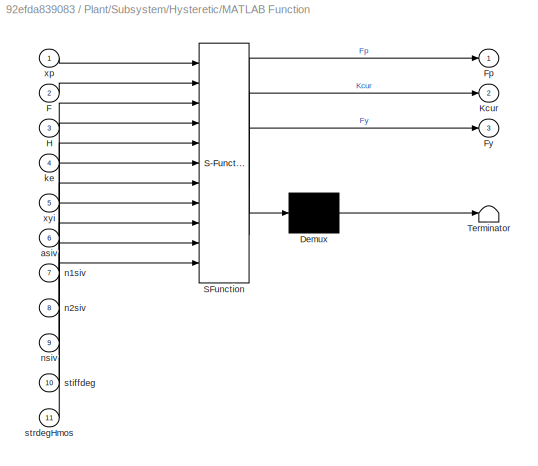
BLOCK [SubSystem] Plant/Subsystem/Hysteretic/MATLAB Function
  ErrorFcn = Stateflow.Translate.translate
  PermitHierarchicalResolution = ExplicitOnly
  Ports = [11, 3]
  RequestExecContextInheritance = off
  SFBlockType = MATLAB Function
  TreatAsAtomicUnit = on
BLOCK [Demux] Plant/Subsystem/Hysteretic/MATLAB Function/ Demux 
  Outputs = 1
  Ports = [1, 1]
BLOCK [S-Function] Plant/Subsystem/Hysteretic/MATLAB Function/ SFunction 
  EnableBusSupport = on
  FunctionName = sf_sfun
  PortCounts = [11 4]
  Ports = [11, 4]
  SFcnIsStateOwnerBlock = off
  SFunctionDeploymentMode = off
  Tag = Stateflow S-Function 9
BLOCK [Terminator] Plant/Subsystem/Hysteretic/MATLAB Function/ Terminator 
BLOCK [Inport] Plant/Subsystem/Hysteretic/MATLAB Function/F
  Port = 2
BLOCK [Outport] Plant/Subsystem/Hysteretic/MATLAB Function/Fp
  VectorParamsAs1DForOutWhenUnconnected = off
BLOCK [Outport] Plant/Subsystem/Hysteretic/MATLAB Function/Fy
  Port = 3
  VectorParamsAs1DForOutWhenUnconnected = off
BLOCK [Inport] Plant/Subsystem/Hysteretic/MATLAB Function/H
  Port = 3
BLOCK [Outport] Plant/Subsystem/Hysteretic/MATLAB Function/Kcur
  Port = 2
  VectorParamsAs1DForOutWhenUnconnected = off
BLOCK [Inport] Plant/Subsystem/Hysteretic/MATLAB Function/asiv
  Port = 6
BLOCK [Inport] Plant/Subsystem/Hysteretic/MATLAB Function/ke
  Port = 4
BLOCK [Inport] Plant/Subsystem/Hysteretic/MATLAB Function/n1siv
  Port = 7
BLOCK [Inport] Plant/Subsystem/Hysteretic/MATLAB Function/n2siv
  Port = 8
BLOCK [Inport] Plant/Subsystem/Hysteretic/MATLAB Function/nsiv
  Port = 9
BLOCK [Inport] Plant/Subsystem/Hysteretic/MATLAB Function/stiffdeg
  Port = 10
BLOCK [Inport] Plant/Subsystem/Hysteretic/MATLAB Function/strdegHmos
  Port = 11
BLOCK [Inport] Plant/Subsystem/Hysteretic/MATLAB Function/xp
BLOCK [Inport] Plant/Subsystem/Hysteretic/MATLAB Function/xyi
  Port = 5
BLOCK [ToWorkspace] Plant/Subsystem/Hysteretic/To Workspace
  FixptAsFi = on
  MaxDataPoints = inf
  Ports = [1]
  SampleTime = -1
  SaveFormat = Timeseries
  VariableName = Kcur
BLOCK [ToWorkspace] Plant/Subsystem/Hysteretic/To Workspace1
  FixptAsFi = on
  MaxDataPoints = inf
  Ports = [1]
  SampleTime = -1
  SaveFormat = Timeseries
  VariableName = Fy
BLOCK [UnitDelay] Plant/Subsystem/Hysteretic/Unit Delay1
  HasFrameUpgradeWarning = on
  InitialCondition = ke
  SampleTime = -1
BLOCK [Inport] Plant/Subsystem/Hysteretic/x
BLOCK [Inport] Plant/Subsystem/Hysteretic/xp
  Port = 2
BLOCK [Scope] Plant/Subsystem/Scope1
  Floating = off
  NameLocation = top
  NumInputPorts = 1
  Ports = [1]
  ScopeSpecificationString = Simulink.scopes.TimeScopeBlockCfg('CurrentConfiguration', extmgr.ConfigurationSet(extmgr.Configuration('Core','General UI',true),extmgr.Configuration('Core','Source UI',true),extmgr.Configuration('Sources','WiredSimulink',true,'DataLoggingVariableName','ScopeData3'),extmgr.Configuration('Visuals','Time Domain',true,'SerializedDisplays',{struct('MinYLimReal','-0.01294','MaxYLimReal','0.01315','YLab...<+1389ch>
BLOCK [Scope] Plant/Subsystem/Scope2
  Floating = off
  NameLocation = top
  NumInputPorts = 1
  Ports = [1]
  ScopeSpecificationString = Simulink.scopes.TimeScopeBlockCfg('CurrentConfiguration', extmgr.ConfigurationSet(extmgr.Configuration('Core','General UI',true),extmgr.Configuration('Core','Source UI',true),extmgr.Configuration('Sources','WiredSimulink',true,'DataLoggingVariableName','ScopeData4'),extmgr.Configuration('Visuals','Time Domain',true,'SerializedDisplays',{struct('MinYLimReal','-22703005050887357095697018085649234619...<+3328ch>
BLOCK [Scope] Plant/Subsystem/Scope4
  Floating = off
  NameLocation = top
  NumInputPorts = 1
  Ports = [1]
  ScopeSpecificationString = Simulink.scopes.TimeScopeBlockCfg('CurrentConfiguration', extmgr.ConfigurationSet(extmgr.Configuration('Core','General UI',true),extmgr.Configuration('Core','Source UI',true),extmgr.Configuration('Sources','WiredSimulink',true,'DataLoggingVariableName','ScopeData1'),extmgr.Configuration('Visuals','Time Domain',true,'SerializedDisplays',{struct('MinYLimReal','-0.01294','MaxYLimReal','0.01315','YLab...<+1410ch>
BLOCK [Scope] Plant/Subsystem/Scope5
  Floating = off
  NameLocation = top
  NumInputPorts = 1
  Ports = [1]
  ScopeSpecificationString = Simulink.scopes.TimeScopeBlockCfg('CurrentConfiguration', extmgr.ConfigurationSet(extmgr.Configuration('Core','General UI',true),extmgr.Configuration('Core','Source UI',true),extmgr.Configuration('Sources','WiredSimulink',true,'DataLoggingVariableName','ScopeData2'),extmgr.Configuration('Visuals','Time Domain',true,'SerializedDisplays',{struct('MinYLimReal','-86345872290748047221329305404484845932...<+2751ch>
BLOCK [Scope] Plant/Subsystem/Scope6
  Floating = off
  NameLocation = top
  NumInputPorts = 1
  Ports = [1]
  ScopeSpecificationString = Simulink.scopes.TimeScopeBlockCfg('CurrentConfiguration', extmgr.ConfigurationSet(extmgr.Configuration('Core','General UI',true),extmgr.Configuration('Core','Source UI',true),extmgr.Configuration('Sources','WiredSimulink',true,'DataLoggingVariableName','ScopeData3'),extmgr.Configuration('Visuals','Time Domain',true,'SerializedDisplays',{struct('MinYLimReal','-1.00000','MaxYLimReal','1.00000','YLab...<+1369ch>
BLOCK [Scope] Plant/Subsystem/Scope8
  Floating = off
  NameLocation = top
  NumInputPorts = 1
  Ports = [1]
  ScopeSpecificationString = Simulink.scopes.TimeScopeBlockCfg('CurrentConfiguration', extmgr.ConfigurationSet(extmgr.Configuration('Core','General UI',true),extmgr.Configuration('Core','Source UI',true),extmgr.Configuration('Sources','WiredSimulink',true,'DataLoggingVariableName','ScopeData4'),extmgr.Configuration('Visuals','Time Domain',true,'SerializedDisplays',{struct('MinYLimReal','-0.01294','MaxYLimReal','0.01315','YLab...<+1389ch>
BLOCK [Sum] Plant/Subsystem/Sum
  IconShape = rectangular
  Inputs = |+++
  Ports = [3, 1]
BLOCK [Sum] Plant/Subsystem/Sum1
  Inputs = |+-
  Ports = [2, 1]
BLOCK [ToWorkspace] Plant/Subsystem/To Workspace
  FixptAsFi = on
  MaxDataPoints = inf
  Ports = [1]
  SampleTime = -1
  SaveFormat = Timeseries
  VariableName = rt
BLOCK [ToWorkspace] Plant/Subsystem/To Workspace1
  FixptAsFi = on
  MaxDataPoints = inf
  Ports = [1]
  SampleTime = -1
  SaveFormat = Timeseries
  VariableName = Desp
BLOCK [ToWorkspace] Plant/Subsystem/To Workspace5
  FixptAsFi = on
  MaxDataPoints = inf
  Ports = [1]
  SampleTime = -1
  SaveFormat = Timeseries
  VariableName = Fm
BLOCK [SubSystem] Plant/Subsystem/gapclosing
  Ports = [1, 1]
  RequestExecContextInheritance = off
BLOCK [Constant] Plant/Subsystem/gapclosing/Constant
  Value = ke
BLOCK [Constant] Plant/Subsystem/gapclosing/Constant1
  Value = kgap
BLOCK [Constant] Plant/Subsystem/gapclosing/Constant7
  Value = Ngap
BLOCK [Constant] Plant/Subsystem/gapclosing/Constant8
  Value = xgap
BLOCK [Outport] Plant/Subsystem/gapclosing/Fgap
  VectorParamsAs1DForOutWhenUnconnected = off
BLOCK [SubSystem] Plant/Subsystem/gapclosing/MATLAB Function
  ErrorFcn = Stateflow.Translate.translate
  PermitHierarchicalResolution = ExplicitOnly
  Ports = [5, 1]
  RequestExecContextInheritance = off
  SFBlockType = MATLAB Function
  TreatAsAtomicUnit = on
BLOCK [Demux] Plant/Subsystem/gapclosing/MATLAB Function/ Demux 
  Outputs = 1
  Ports = [1, 1]
BLOCK [S-Function] Plant/Subsystem/gapclosing/MATLAB Function/ SFunction 
  EnableBusSupport = on
  FunctionName = sf_sfun
  PortCounts = [5 2]
  Ports = [5, 2]
  SFcnIsStateOwnerBlock = off
  SFunctionDeploymentMode = off
  Tag = Stateflow S-Function 10
BLOCK [Terminator] Plant/Subsystem/gapclosing/MATLAB Function/ Terminator 
BLOCK [Outport] Plant/Subsystem/gapclosing/MATLAB Function/Fgap
  VectorParamsAs1DForOutWhenUnconnected = off
BLOCK [Inport] Plant/Subsystem/gapclosing/MATLAB Function/Ngap
  Port = 4
BLOCK [Inport] Plant/Subsystem/gapclosing/MATLAB Function/ke
  Port = 3
BLOCK [Inport] Plant/Subsystem/gapclosing/MATLAB Function/kgap
  Port = 2
BLOCK [Inport] Plant/Subsystem/gapclosing/MATLAB Function/x
BLOCK [Inport] Plant/Subsystem/gapclosing/MATLAB Function/xgap
  Port = 5
BLOCK [ToWorkspace] Plant/Subsystem/gapclosing/To Workspace
  FixptAsFi = on
  MaxDataPoints = inf
  Ports = [1]
  SampleTime = -1
  SaveFormat = Timeseries
  VariableName = Fgap
BLOCK [UnitDelay] Plant/Subsystem/gapclosing/Unit Delay
  HasFrameUpgradeWarning = on
  SampleTime = -1
BLOCK [Inport] Plant/Subsystem/gapclosing/x
BLOCK [Outport] Plant/Subsystem/x_m
  VectorParamsAs1DForOutWhenUnconnected = off
BLOCK [Outport] Plant/Subsystem/x_m s
  Port = 2
  VectorParamsAs1DForOutWhenUnconnected = off
BLOCK [Sum] Plant/Sum
  Inputs = |+-
  Ports = [2, 1]
BLOCK [Sum] Plant/Sum1
  Inputs = |+-
  Ports = [2, 1]
BLOCK [ToWorkspace] Plant/To Workspace
  FixptAsFi = on
  MaxDataPoints = inf
  Ports = [1]
  SampleTime = -1
  SaveFormat = Timeseries
  VariableName = Force_act
BLOCK [Reference] Real-Time Synchronization  REF=sldrtlib/Real-Time
Synchronization
  Ports = [0, 1]
  SourceBlock = sldrtlib/Real-Time\nSynchronization
  SourceProductBaseCode = WT
  SourceType = Simulink Desktop Real-Time Synchronization
BLOCK [Scope] Scope
  Floating = off
  NumInputPorts = 1
  Ports = [1]
  ScopeSpecificationString = Simulink.scopes.TimeScopeBlockCfg('CurrentConfiguration', extmgr.ConfigurationSet(extmgr.Configuration('Core','General UI',true),extmgr.Configuration('Core','Source UI',true),extmgr.Configuration('Sources','WiredSimulink',true,'DataLoggingVariableName','ScopeData1'),extmgr.Configuration('Visuals','Time Domain',true,'SerializedDisplays',{struct('MinYLimReal','-4.625','MaxYLimReal','41.625','YLabelR...<+1403ch>
BLOCK [SubSystem] SpecimenMdl
  Commented = on
  Ports = [0, 1]
  RequestExecContextInheritance = off
BLOCK [SubSystem] SpecimenMdl/Contador
  Commented = on
  Ports = [0, 1]
  RequestExecContextInheritance = off
BLOCK [Sum] SpecimenMdl/Contador/Add
  IconShape = rectangular
  Ports = [2, 1]
BLOCK [Constant] SpecimenMdl/Contador/Constant1
BLOCK [Outport] SpecimenMdl/Contador/Out1
BLOCK [UnitDelay] SpecimenMdl/Contador/Unit Delay
  HasFrameUpgradeWarning = on
  NameLocation = top
  SampleTime = -1
BLOCK [Outport] SpecimenMdl/Force
BLOCK [From] SpecimenMdl/From1
  Commented = on
  GotoTag = ch3a
  TagVisibility = global
BLOCK [From] SpecimenMdl/From2
  GotoTag = ch3a
  NameLocation = top
  TagVisibility = global
BLOCK [From] SpecimenMdl/From3
  Commented = on
  GotoTag = ch3a
  NameLocation = top
  TagVisibility = global
BLOCK [Gain] SpecimenMdl/Gain
  Gain = 2.9
BLOCK [SubSystem] SpecimenMdl/MATLAB Function
  Commented = on
  ErrorFcn = Stateflow.Translate.translate
  PermitHierarchicalResolution = ExplicitOnly
  Ports = [4, 3]
  RequestExecContextInheritance = off
  SFBlockType = MATLAB Function
  TreatAsAtomicUnit = on
BLOCK [Demux] SpecimenMdl/MATLAB Function/ Demux 
  Outputs = 1
  Ports = [1, 1]
BLOCK [S-Function] SpecimenMdl/MATLAB Function/ SFunction 
  EnableBusSupport = on
  FunctionName = sf_sfun
  PortCounts = [4 4]
  Ports = [4, 4]
  SFcnIsStateOwnerBlock = off
  SFunctionDeploymentMode = off
  Tag = Stateflow S-Function 1
BLOCK [Terminator] SpecimenMdl/MATLAB Function/ Terminator 
BLOCK [Inport] SpecimenMdl/MATLAB Function/c
  Port = 4
BLOCK [Outport] SpecimenMdl/MATLAB Function/p_r
BLOCK [Outport] SpecimenMdl/MATLAB Function/qb
  Port = 3
BLOCK [Inport] SpecimenMdl/MATLAB Function/qb 
  Port = 3
BLOCK [Inport] SpecimenMdl/MATLAB Function/u
BLOCK [Outport] SpecimenMdl/MATLAB Function/v_pl
  Port = 2
BLOCK [Inport] SpecimenMdl/MATLAB Function/v_pl 
  Port = 2
BLOCK [S-Function] SpecimenMdl/S-Function
  Commented = on
  EnableBusSupport = off
  FunctionName = SFun_GenericClient
  Parameters = ipAddr,ipPort,dataSize
  Ports = [1, 2]
  SFcnIsStateOwnerBlock = off
  SFunctionDeploymentMode = off
BLOCK [Scope] SpecimenMdl/Scope2
  Floating = off
  NumInputPorts = 1
  Ports = [1]
  ScopeSpecificationString = Simulink.scopes.TimeScopeBlockCfg('CurrentConfiguration', extmgr.ConfigurationSet(extmgr.Configuration('Core','General UI',true),extmgr.Configuration('Core','Source UI',true),extmgr.Configuration('Sources','WiredSimulink',true,'DataLoggingVariableName','ScopeData1','DataLoggingSaveFormat','StructureWithTime','DataLoggingDecimation','1','DataLoggingDecimateData',true),extmgr.Configuration('Visuals'...<+1733ch>
BLOCK [Terminator] SpecimenMdl/Terminator1
  Commented = on
BLOCK [ToWorkspace] SpecimenMdl/To Workspace
  FixptAsFi = on
  MaxDataPoints = inf
  Ports = [1]
  SampleTime = -1
  SaveFormat = Timeseries
  VariableName = pr
BLOCK [ToWorkspace] SpecimenMdl/To Workspace1
  FixptAsFi = on
  MaxDataPoints = inf
  Ports = [1]
  SampleTime = -1
  SaveFormat = Timeseries
  VariableName = u
BLOCK [Goto] SpecimenMdl/To1
  Commented = on
  GotoTag = ch3b
  TagVisibility = global
BLOCK [Goto] SpecimenMdl/To2
  GotoTag = ch3b
  TagVisibility = global
BLOCK [Goto] SpecimenMdl/To3
  Commented = on
  GotoTag = ch3b
  TagVisibility = global
BLOCK [UnitDelay] SpecimenMdl/Unit Delay
  Commented = on
  HasFrameUpgradeWarning = on
  SampleTime = -1
BLOCK [UnitDelay] SpecimenMdl/Unit Delay1
  Commented = on
  HasFrameUpgradeWarning = on
  SampleTime = -1
BLOCK [SubSystem] Subsystem
  Ports = [2, 1]
  RequestExecContextInheritance = off
BLOCK [Inport] Subsystem/In1
  Port = 2
BLOCK [Inport] Subsystem/In2
BLOCK [Outport] Subsystem/Out1
BLOCK [Reference] Subsystem/TCP//IP Receive5  REF=instrumentlib/TCP//IP Receive
  Ports = [0, 2]
  Priority = 1
  SourceBlock = instrumentlib/TCP//IP Receive
  SourceProductBaseCode = IC
  SourceType = TCP/IP Receive
BLOCK [Reference] Subsystem/TCP//IP Send5  REF=instrumentlib/TCP//IP Send
  Ports = [1]
  Priority = 2
  SourceBlock = instrumentlib/TCP//IP Send
  SourceProductBaseCode = IC
  SourceType = TCP/IP Send
BLOCK [Terminator] Subsystem/Terminator
BLOCK [ToWorkspace] Subsystem/To Workspace
  FixptAsFi = on
  MaxDataPoints = inf
  Ports = [1]
  SampleTime = -1
  SaveFormat = Timeseries
  VariableName = Disp_Num
BLOCK [ToWorkspace] To Workspace
  FixptAsFi = on
  MaxDataPoints = inf
  Ports = [1]
  SampleTime = -1
  SaveFormat = Timeseries
  VariableName = MT
BLOCK [SubSystem] Wiener Implementation
  Ports = [1, 1]
  RequestExecContextInheritance = off
BLOCK [Inport] Wiener Implementation/In1
BLOCK [Outport] Wiener Implementation/Out1
BLOCK [SubSystem] Wiener Implementation/Prediction_Adaptive_Fixed
  Ports = [1, 2]
  RequestExecContextInheritance = off
BLOCK [Constant] Wiener Implementation/Prediction_Adaptive_Fixed/Constant
  Value = learningrate*adaptive
BLOCK [SubSystem] Wiener Implementation/Prediction_Adaptive_Fixed/Contador
  Ports = [0, 1]
  RequestExecContextInheritance = off
BLOCK [Sum] Wiener Implementation/Prediction_Adaptive_Fixed/Contador/Add
  IconShape = rectangular
  Ports = [2, 1]
BLOCK [Constant] Wiener Implementation/Prediction_Adaptive_Fixed/Contador/Constant1
BLOCK [Outport] Wiener Implementation/Prediction_Adaptive_Fixed/Contador/Out1
BLOCK [UnitDelay] Wiener Implementation/Prediction_Adaptive_Fixed/Contador/Unit Delay
  HasFrameUpgradeWarning = on
  NameLocation = top
  SampleTime = -1
BLOCK [DiscreteFir] Wiener Implementation/Prediction_Adaptive_Fixed/Discrete FIR Filter
  CoefSource = Input port
  InputPortMap = u0,u1
  OutputPortMap = o0
  Ports = [2, 1]
  SampleTime = dtsim
BLOCK [From] Wiener Implementation/Prediction_Adaptive_Fixed/From
BLOCK [From] Wiener Implementation/Prediction_Adaptive_Fixed/From1
BLOCK [Goto] Wiener Implementation/Prediction_Adaptive_Fixed/Goto
BLOCK [If] Wiener Implementation/Prediction_Adaptive_Fixed/If
  IfExpression = u1 <2
  Ports = [1, 2]
BLOCK [SubSystem] Wiener Implementation/Prediction_Adaptive_Fixed/If Action Subsystem
  Ports = [3, 1, 0, 0, 0, 0, 0, 1]
  RequestExecContextInheritance = off
  TreatAsAtomicUnit = on
BLOCK [ActionPort] Wiener Implementation/Prediction_Adaptive_Fixed/If Action Subsystem/Action Port
  ActionPortLabel = if(u1 <2)
BLOCK [Sum] Wiener Implementation/Prediction_Adaptive_Fixed/If Action Subsystem/Add
  IconShape = rectangular
  Ports = [2, 1]
BLOCK [Buffer] Wiener Implementation/Prediction_Adaptive_Fixed/If Action Subsystem/Buffer1
  N = 8
  OutputFrames = off
  V = 7
BLOCK [Constant] Wiener Implementation/Prediction_Adaptive_Fixed/If Action Subsystem/Constant1
BLOCK [Constant] Wiener Implementation/Prediction_Adaptive_Fixed/If Action Subsystem/Constant2
  Value = w_80
BLOCK [Inport] Wiener Implementation/Prediction_Adaptive_Fixed/If Action Subsystem/Disp
BLOCK [Inport] Wiener Implementation/Prediction_Adaptive_Fixed/If Action Subsystem/Disp_Pred
  Port = 3
BLOCK [Gain] Wiener Implementation/Prediction_Adaptive_Fixed/If Action Subsystem/Gain
  Gain = 1e-10
BLOCK [Product] Wiener Implementation/Prediction_Adaptive_Fixed/If Action Subsystem/Product
  Ports = [2, 1]
BLOCK [Product] Wiener Implementation/Prediction_Adaptive_Fixed/If Action Subsystem/Product1
  Inputs = 3
  Ports = [3, 1]
BLOCK [Sum] Wiener Implementation/Prediction_Adaptive_Fixed/If Action Subsystem/Sum
  Inputs = |+-
  Ports = [2, 1]
BLOCK [Sum] Wiener Implementation/Prediction_Adaptive_Fixed/If Action Subsystem/Sum1
  Inputs = |+-
  Ports = [2, 1]
BLOCK [UnitDelay] Wiener Implementation/Prediction_Adaptive_Fixed/If Action Subsystem/Unit Delay
  HasFrameUpgradeWarning = on
  NameLocation = top
  SampleTime = -1
BLOCK [Outport] Wiener Implementation/Prediction_Adaptive_Fixed/If Action Subsystem/W_new
BLOCK [Inport] Wiener Implementation/Prediction_Adaptive_Fixed/If Action Subsystem/lambda
  Port = 2
BLOCK [SubSystem] Wiener Implementation/Prediction_Adaptive_Fixed/If Action Subsystem1
  Ports = [4, 1, 0, 0, 0, 0, 0, 1]
  RequestExecContextInheritance = off
  TreatAsAtomicUnit = on
BLOCK [ActionPort] Wiener Implementation/Prediction_Adaptive_Fixed/If Action Subsystem1/Action Port
  ActionPortLabel = else
BLOCK [Sum] Wiener Implementation/Prediction_Adaptive_Fixed/If Action Subsystem1/Add
  IconShape = rectangular
  Ports = [2, 1]
BLOCK [Buffer] Wiener Implementation/Prediction_Adaptive_Fixed/If Action Subsystem1/Buffer1
  N = 8
  OutputFrames = off
  V = 7
BLOCK [Constant] Wiener Implementation/Prediction_Adaptive_Fixed/If Action Subsystem1/Constant1
BLOCK [Inport] Wiener Implementation/Prediction_Adaptive_Fixed/If Action Subsystem1/Disp
BLOCK [Inport] Wiener Implementation/Prediction_Adaptive_Fixed/If Action Subsystem1/Disp_Pred
  Port = 4
BLOCK [Gain] Wiener Implementation/Prediction_Adaptive_Fixed/If Action Subsystem1/Gain
  Gain = 1e-10
BLOCK [Product] Wiener Implementation/Prediction_Adaptive_Fixed/If Action Subsystem1/Product
  Ports = [2, 1]
BLOCK [Product] Wiener Implementation/Prediction_Adaptive_Fixed/If Action Subsystem1/Product1
  Inputs = 3
  Ports = [3, 1]
BLOCK [Sum] Wiener Implementation/Prediction_Adaptive_Fixed/If Action Subsystem1/Sum
  Inputs = |+-
  Ports = [2, 1]
BLOCK [Sum] Wiener Implementation/Prediction_Adaptive_Fixed/If Action Subsystem1/Sum1
  Inputs = |+-
  Ports = [2, 1]
BLOCK [UnitDelay] Wiener Implementation/Prediction_Adaptive_Fixed/If Action Subsystem1/Unit Delay
  HasFrameUpgradeWarning = on
  NameLocation = top
  SampleTime = -1
BLOCK [Outport] Wiener Implementation/Prediction_Adaptive_Fixed/If Action Subsystem1/W_new
BLOCK [Inport] Wiener Implementation/Prediction_Adaptive_Fixed/If Action Subsystem1/W_prev
  Port = 2
BLOCK [Inport] Wiener Implementation/Prediction_Adaptive_Fixed/If Action Subsystem1/lambda
  Port = 3
BLOCK [Inport] Wiener Implementation/Prediction_Adaptive_Fixed/In1
BLOCK [Merge] Wiener Implementation/Prediction_Adaptive_Fixed/Merge
  Ports = [2, 1]
BLOCK [Outport] Wiener Implementation/Prediction_Adaptive_Fixed/Out1
BLOCK [Outport] Wiener Implementation/Prediction_Adaptive_Fixed/Out2
  Port = 2
BLOCK [UnitDelay] Wiener Implementation/Prediction_Adaptive_Fixed/Unit Delay1
  HasFrameUpgradeWarning = on
  SampleTime = -1
BLOCK [SubSystem] Wiener Implementation/Test3
  Ports = [1, 1]
  RequestExecContextInheritance = off
BLOCK [Buffer] Wiener Implementation/Test3/Buffer
  N = 4
  OutputFrames = off
  V = 3
BLOCK [Constant] Wiener Implementation/Test3/Constant6
  Value = V1
BLOCK [Inport] Wiener Implementation/Test3/In1
BLOCK [Outport] Wiener Implementation/Test3/Out1
BLOCK [Product] Wiener Implementation/Test3/Product1
  Multiplication = Matrix(*)
  Ports = [2, 1]
BLOCK [Product] Wiener Implementation/Test3/Product2
  Multiplication = Matrix(*)
  Ports = [2, 1]
BLOCK [SubSystem] Wiener Implementation/Test3/Subsystem
  Ports = [0, 1]
  RequestExecContextInheritance = off
BLOCK [Constant] Wiener Implementation/Test3/Subsystem/Constant1
BLOCK [Constant] Wiener Implementation/Test3/Subsystem/Constant3
  Value = 2
BLOCK [Constant] Wiener Implementation/Test3/Subsystem/Constant5
  Value = 3
BLOCK [Constant] Wiener Implementation/Test3/Subsystem/Constant6
  Value = 0
BLOCK [Constant] Wiener Implementation/Test3/Subsystem/Constant7
  Value = x02
BLOCK [Math] Wiener Implementation/Test3/Subsystem/Math Function
  Operator = pow
  Ports = [2, 1]
BLOCK [Math] Wiener Implementation/Test3/Subsystem/Math Function1
  Operator = pow
  Ports = [2, 1]
BLOCK [Math] Wiener Implementation/Test3/Subsystem/Math Function2
  Operator = pow
  Ports = [2, 1]
BLOCK [Math] Wiener Implementation/Test3/Subsystem/Math Function3
  Operator = pow
  Ports = [2, 1]
BLOCK [Concatenate] Wiener Implementation/Test3/Subsystem/Matrix Concatenate
  ConcatenateDimension = 2
  Mode = Multidimensional array
  NumInputs = 4
  Ports = [4, 1]
BLOCK [Outport] Wiener Implementation/Test3/Subsystem/a
BLOCK [Unbuffer] Wiener Implementation/Test3/Unbuffer2
  Ports = [1, 1]
BLOCK [ToWorkspace] Wiener Implementation/To Workspace
  FixptAsFi = on
  MaxDataPoints = inf
  Ports = [1]
  SampleTime = -1
  SaveFormat = Timeseries
  VariableName = adaptive_parameters
BLOCK [SubSystem] ZOH
  Ports = [2, 2]
  RequestExecContextInheritance = off
BLOCK [Inport] ZOH/In1
BLOCK [Inport] ZOH/In2
  Port = 2
BLOCK [Outport] ZOH/Out1
BLOCK [Outport] ZOH/Out2
  Port = 2
BLOCK [RateTransition] ZOH/Rate Transition
  OutPortSampleTime = dtsim
BLOCK [RateTransition] ZOH/Rate Transition1
  OutPortSampleTime = dtsim
BLOCK [SubSystem] dAMB
  NameLocation = top
  Ports = [1, 1]
  RequestExecContextInheritance = off
BLOCK [DiscreteTransferFcn] dAMB/Discrete Transfer Fcn
  Denominator = [denfilter]
  InputPortMap = u0
  Numerator = [numfilter]
  Ports = [1, 1]
BLOCK [DiscreteTransferFcn] dAMB/Discrete Transfer Fcn1
  Denominator = [denfilter]
  InputPortMap = u0
  Numerator = [numfilter]
  Ports = [1, 1]
BLOCK [DotProduct] dAMB/Dot Product
  OutDataTypeStr = Inherit: Inherit via internal rule
BLOCK [From] dAMB/From
  GotoTag = x_m
  NameLocation = top
  TagVisibility = global
BLOCK [Gain] dAMB/Gain
  Gain = 0.0254
BLOCK [Gain] dAMB/Gain1
  Gain = 0.0254
BLOCK [Gain] dAMB/Gain2
  Gain = 39.3701
BLOCK [SubSystem] dAMB/RLS
  Ports = [2, 1]
  RequestExecContextInheritance = off
BLOCK [Constant] dAMB/RLS/Constant6
  Value = forgfact
BLOCK [Delay] dAMB/RLS/Delay1
  DelayLength = 1
  InitialCondition = P_corr_i
  InputPortMap = u0
  Ports = [1, 1]
BLOCK [Delay] dAMB/RLS/Delay2
  DelayLength = 1
  InitialCondition = dAMB_i'
  InputPortMap = u0
  Ports = [1, 1]
BLOCK [SubSystem] dAMB/RLS/RLS
  ErrorFcn = Stateflow.Translate.translate
  PermitHierarchicalResolution = ExplicitOnly
  Ports = [5, 2]
  RequestExecContextInheritance = off
  SFBlockType = MATLAB Function
  TreatAsAtomicUnit = on
BLOCK [Demux] dAMB/RLS/RLS/ Demux 
  Outputs = 1
  Ports = [1, 1]
BLOCK [S-Function] dAMB/RLS/RLS/ SFunction 
  EnableBusSupport = on
  FunctionName = sf_sfun
  PortCounts = [5 3]
  Ports = [5, 3]
  SFcnIsStateOwnerBlock = off
  SFunctionDeploymentMode = off
  Tag = Stateflow S-Function 2
BLOCK [Terminator] dAMB/RLS/RLS/ Terminator 
BLOCK [Outport] dAMB/RLS/RLS/P_corr
  Port = 2
  VectorParamsAs1DForOutWhenUnconnected = off
BLOCK [Inport] dAMB/RLS/RLS/P_corr_a
  Port = 5
BLOCK [Outport] dAMB/RLS/RLS/dAMB
  VectorParamsAs1DForOutWhenUnconnected = off
BLOCK [Inport] dAMB/RLS/RLS/dAMB_a
  Port = 4
BLOCK [Inport] dAMB/RLS/RLS/forgfact
  Port = 3
BLOCK [Inport] dAMB/RLS/RLS/u
  Port = 2
BLOCK [Inport] dAMB/RLS/RLS/xm
BLOCK [ToWorkspace] dAMB/RLS/To Workspace
  FixptAsFi = on
  MaxDataPoints = inf
  Ports = [1]
  SampleTime = -1
  SaveFormat = Timeseries
  VariableName = dAMB
BLOCK [ToWorkspace] dAMB/RLS/To Workspace1
  FixptAsFi = on
  MaxDataPoints = inf
  Ports = [1]
  SampleTime = -1
  SaveFormat = Timeseries
  VariableName = P_corr
BLOCK [Outport] dAMB/RLS/dAMB
  VectorParamsAs1DForOutWhenUnconnected = off
BLOCK [Inport] dAMB/RLS/u
  Port = 2
BLOCK [Inport] dAMB/RLS/xm
BLOCK [Reference] dAMB/Tapped Delay  REF=simulink/Discrete/Tapped Delay
  Ports = [1, 1]
  SourceBlock = simulink/Discrete/Tapped Delay
  SourceProductBaseCode = SL
  SourceType = Tapped Delay Line
BLOCK [Reference] dAMB/Tapped Delay1  REF=simulink/Discrete/Tapped Delay
  Ports = [1, 1]
  SourceBlock = simulink/Discrete/Tapped Delay
  SourceProductBaseCode = SL
  SourceType = Tapped Delay Line
BLOCK [ToWorkspace] dAMB/To Workspace
  FixptAsFi = on
  MaxDataPoints = inf
  Ports = [1]
  SampleTime = -1
  SaveFormat = Timeseries
  VariableName = x_t
BLOCK [UnitDelay] dAMB/Unit Delay1
  HasFrameUpgradeWarning = on
  SampleTime = -1
BLOCK [UnitDelay] dAMB/Unit Delay3
  HasFrameUpgradeWarning = on
  SampleTime = -1
BLOCK [Outport] dAMB/x_c
  VectorParamsAs1DForOutWhenUnconnected = off
BLOCK [Inport] dAMB/x_t
ANNOTATION (root): CLIENT-SERVER APPLICATION FOR MULTI-PLATFORM COORDINATION IN REAL-TIME HYBRID SIMULATION TESTING -Simulink Model-
ANNOTATION (root): Coded by: Diego Mera Muñoz, Cristobal Gálmez Villaseca Collaborators: Gastón Fermandois Cornejo, Fernando Gómez Sanchez
ANNOTATION (root): Data Disp. (Sent/Received)
ANNOTATION (root): Data Force (Sent)
ANNOTATION MTS actuator: Force
ANNOTATION MTS actuator/dynamic long channel #1/actuator//valve model: Parameter vector: 1: oil bulk modulus (force/displ^2) 2: servovalve delay (sec) 3: servovalve overlap 4: rated pressure (force/displ^2) 5: rated flow at rated pressure (displ^3/sec) 6: nominal flow at rated pressure (displ^3/sec) 7: actuator piston area 1 (displ^2) 8: actuator piston area 2 (displ^2) 9: actuator usable stroke 1 (displ) 10: actuator usable stroke 2 (displ) 11: actuator end cushion ...<+369ch>
ANNOTATION MTS actuator/dynamic long channel #1/actuator//valve model: Auxiliary diagnostic output vector: 1: valve opening 2: C1 pressure 3: C2 pressure 4: delta pressure 5: force 6: velocity 7: C1 flow 8: C2 flow 9: total flow 10: kinematic flow 11: compressibility flow 12: leakage flow
ANNOTATION MTS actuator/dynamic long channel #1/actuator//valve model: Note: "1" and "2" denote actuator cylinders on either side of the actuator piston. With positive valve drive, oil is ported into cylinder 1, resulting in positive displacement.
ANNOTATION MTS actuator/dynamic long channel #2/actuator//valve model: Parameter vector: 1: oil bulk modulus (force/displ^2) 2: servovalve delay (sec) 3: servovalve overlap 4: rated pressure (force/displ^2) 5: rated flow at rated pressure (displ^3/sec) 6: nominal flow at rated pressure (displ^3/sec) 7: actuator piston area 1 (displ^2) 8: actuator piston area 2 (displ^2) 9: actuator usable stroke 1 (displ) 10: actuator usable stroke 2 (displ) 11: actuator end cushion ...<+369ch>
ANNOTATION MTS actuator/dynamic long channel #2/actuator//valve model: Auxiliary diagnostic output vector: 1: valve opening 2: C1 pressure 3: C2 pressure 4: delta pressure 5: force 6: velocity 7: C1 flow 8: C2 flow 9: total flow 10: kinematic flow 11: compressibility flow 12: leakage flow
ANNOTATION MTS actuator/dynamic long channel #2/actuator//valve model: Note: "1" and "2" denote actuator cylinders on either side of the actuator piston. With positive valve drive, oil is ported into cylinder 1, resulting in positive displacement.
ANNOTATION MTS actuator/dynamic short channel #1/actuator//valve model: Parameter vector: 1: oil bulk modulus (force/displ^2) 2: servovalve delay (sec) 3: servovalve overlap 4: rated pressure (force/displ^2) 5: rated flow at rated pressure (displ^3/sec) 6: nominal flow at rated pressure (displ^3/sec) 7: actuator piston area 1 (displ^2) 8: actuator piston area 2 (displ^2) 9: actuator usable stroke 1 (displ) 10: actuator usable stroke 2 (displ) 11: actuator end cushion ...<+369ch>
ANNOTATION MTS actuator/dynamic short channel #1/actuator//valve model: Auxiliary diagnostic output vector: 1: valve opening 2: C1 pressure 3: C2 pressure 4: delta pressure 5: force 6: velocity 7: C1 flow 8: C2 flow 9: total flow 10: kinematic flow 11: compressibility flow 12: leakage flow
ANNOTATION MTS actuator/dynamic short channel #1/actuator//valve model: Note: "1" and "2" denote actuator cylinders on either side of the actuator piston. With positive valve drive, oil is ported into cylinder 1, resulting in positive displacement.
ANNOTATION MTS actuator/dynamic short channel #2/actuator//valve model: Parameter vector: 1: oil bulk modulus (force/displ^2) 2: servovalve delay (sec) 3: servovalve overlap 4: rated pressure (force/displ^2) 5: rated flow at rated pressure (displ^3/sec) 6: nominal flow at rated pressure (displ^3/sec) 7: actuator piston area 1 (displ^2) 8: actuator piston area 2 (displ^2) 9: actuator usable stroke 1 (displ) 10: actuator usable stroke 2 (displ) 11: actuator end cushion ...<+369ch>
ANNOTATION MTS actuator/dynamic short channel #2/actuator//valve model: Auxiliary diagnostic output vector: 1: valve opening 2: C1 pressure 3: C2 pressure 4: delta pressure 5: force 6: velocity 7: C1 flow 8: C2 flow 9: total flow 10: kinematic flow 11: compressibility flow 12: leakage flow
ANNOTATION MTS actuator/dynamic short channel #2/actuator//valve model: Note: "1" and "2" denote actuator cylinders on either side of the actuator piston. With positive valve drive, oil is ported into cylinder 1, resulting in positive displacement.
ANNOTATION MTS actuator/static channel #1/actuator//valve model: Parameter vector: 1: oil bulk modulus (force/displ^2) 2: servovalve delay (sec) 3: servovalve overlap 4: rated pressure (force/displ^2) 5: rated flow at rated pressure (displ^3/sec) 6: nominal flow at rated pressure (displ^3/sec) 7: actuator piston area 1 (displ^2) 8: actuator piston area 2 (displ^2) 9: actuator usable stroke 1 (displ) 10: actuator usable stroke 2 (displ) 11: actuator end cushion ...<+369ch>
ANNOTATION MTS actuator/static channel #1/actuator//valve model: Auxiliary diagnostic output vector: 1: valve opening 2: C1 pressure 3: C2 pressure 4: delta pressure 5: force 6: velocity 7: C1 flow 8: C2 flow 9: total flow 10: kinematic flow 11: compressibility flow 12: leakage flow
ANNOTATION MTS actuator/static channel #1/actuator//valve model: Note: "1" and "2" denote actuator cylinders on either side of the actuator piston. With positive valve drive, oil is ported into cylinder 1, resulting in positive displacement.
ANNOTATION MTS actuator/static channel #2/actuator//valve model: Parameter vector: 1: oil bulk modulus (force/displ^2) 2: servovalve delay (sec) 3: servovalve overlap 4: rated pressure (force/displ^2) 5: rated flow at rated pressure (displ^3/sec) 6: nominal flow at rated pressure (displ^3/sec) 7: actuator piston area 1 (displ^2) 8: actuator piston area 2 (displ^2) 9: actuator usable stroke 1 (displ) 10: actuator usable stroke 2 (displ) 11: actuator end cushion ...<+369ch>
ANNOTATION MTS actuator/static channel #2/actuator//valve model: Auxiliary diagnostic output vector: 1: valve opening 2: C1 pressure 3: C2 pressure 4: delta pressure 5: force 6: velocity 7: C1 flow 8: C2 flow 9: total flow 10: kinematic flow 11: compressibility flow 12: leakage flow
ANNOTATION MTS actuator/static channel #2/actuator//valve model: Note: "1" and "2" denote actuator cylinders on either side of the actuator piston. With positive valve drive, oil is ported into cylinder 1, resulting in positive displacement.
ANNOTATION MTS actuator/static channel #3/actuator//valve model: Parameter vector: 1: oil bulk modulus (force/displ^2) 2: servovalve delay (sec) 3: servovalve overlap 4: rated pressure (force/displ^2) 5: rated flow at rated pressure (displ^3/sec) 6: nominal flow at rated pressure (displ^3/sec) 7: actuator piston area 1 (displ^2) 8: actuator piston area 2 (displ^2) 9: actuator usable stroke 1 (displ) 10: actuator usable stroke 2 (displ) 11: actuator end cushion ...<+369ch>
ANNOTATION MTS actuator/static channel #3/actuator//valve model: Auxiliary diagnostic output vector: 1: valve opening 2: C1 pressure 3: C2 pressure 4: delta pressure 5: force 6: velocity 7: C1 flow 8: C2 flow 9: total flow 10: kinematic flow 11: compressibility flow 12: leakage flow
ANNOTATION MTS actuator/static channel #3/actuator//valve model: Note: "1" and "2" denote actuator cylinders on either side of the actuator piston. With positive valve drive, oil is ported into cylinder 1, resulting in positive displacement.
ANNOTATION MTS actuator/static channel #4/actuator//valve model: Parameter vector: 1: oil bulk modulus (force/displ^2) 2: servovalve delay (sec) 3: servovalve overlap 4: rated pressure (force/displ^2) 5: rated flow at rated pressure (displ^3/sec) 6: nominal flow at rated pressure (displ^3/sec) 7: actuator piston area 1 (displ^2) 8: actuator piston area 2 (displ^2) 9: actuator usable stroke 1 (displ) 10: actuator usable stroke 2 (displ) 11: actuator end cushion ...<+369ch>
ANNOTATION MTS actuator/static channel #4/actuator//valve model: Auxiliary diagnostic output vector: 1: valve opening 2: C1 pressure 3: C2 pressure 4: delta pressure 5: force 6: velocity 7: C1 flow 8: C2 flow 9: total flow 10: kinematic flow 11: compressibility flow 12: leakage flow
ANNOTATION MTS actuator/static channel #4/actuator//valve model: Note: "1" and "2" denote actuator cylinders on either side of the actuator piston. With positive valve drive, oil is ported into cylinder 1, resulting in positive displacement.
ANNOTATION Plant: Modeling of Actuator Dynamics
ANNOTATION SpecimenMdl: Elastic Experimental Substructure
ANNOTATION SpecimenMdl: Elasto-Plastic Experimental Substructure
ANNOTATION SpecimenMdl: Experimental Disp
ANNOTATION SpecimenMdl: Experimental Force
ANNOTATION SpecimenMdl: TCP/IP Experimental Substructure
LINE Disp. Sensor/Sensor Gain LVDT:1 -> Disp. Sensor/Sum:1
LINE Disp. Sensor/Sensor Noise:1 -> Disp. Sensor/Sum:2
NET Disp. Sensor/Sum:1 -> Disp. Sensor/Goto:1, Disp. Sensor/x_m:1
LINE Disp. Sensor/x_int:1 -> Disp. Sensor/Sensor Gain LVDT:1
LINE Disp. Sensor:1 -> ZOH:2
LINE Force Sensor/Sensor Gain LOAD CELL:1 -> Force Sensor/Sum1:1
LINE Force Sensor/Sensor Noise1:1 -> Force Sensor/Sum1:2
LINE Force Sensor/Sum1:1 -> Force Sensor/f_e :1
LINE Force Sensor/f_int:1 -> Force Sensor/Sensor Gain LOAD CELL:1
LINE Force Sensor:1 -> ZOH:1
LINE MTS actuator/Analog Filter Design:1 -> MTS actuator/Force:1
LINE MTS actuator/Disp. Comp.:1 -> MTS actuator/Subtract:1
LINE MTS actuator/Proportional Gain:1 -> MTS actuator/dynamic long channel #1:1
LINE MTS actuator/Subtract:1 -> MTS actuator/Proportional Gain:1
LINE MTS actuator/accumulators/Sum1:1 -> MTS actuator/accumulators/quotient:2
LINE MTS actuator/accumulators/Sum:1 -> MTS actuator/accumulators/flowCanon:1
NET MTS actuator/accumulators/bottle volume:1 -> MTS actuator/accumulators/Sum1:1, MTS actuator/accumulators/quotient:1
LINE MTS actuator/accumulators/flow:1 -> MTS actuator/accumulators/Sum:2
LINE MTS actuator/accumulators/flowCanon:1 -> MTS actuator/accumulators/integrator:1
LINE MTS actuator/accumulators/gas constant:1 -> MTS actuator/accumulators/power:2
LINE MTS actuator/accumulators/initial condition:1 -> MTS actuator/accumulators/press:1
LINE MTS actuator/accumulators/integrator:1 -> MTS actuator/accumulators/Sum1:2
LINE MTS actuator/accumulators/power:1 -> MTS actuator/accumulators/precharge:1
LINE MTS actuator/accumulators/precharge:1 -> MTS actuator/accumulators/initial condition:1
LINE MTS actuator/accumulators/pump flow:1 -> MTS actuator/accumulators/Sum:1
LINE MTS actuator/accumulators/quotient:1 -> MTS actuator/accumulators/power:1
LINE MTS actuator/accumulators:1 -> MTS actuator/dynamic long channel #1:2
LINE MTS actuator/dynamic long channel #1/actuator//valve model/abs:1 -> MTS actuator/dynamic long channel #1/actuator//valve model/flow:1
LINE MTS actuator/dynamic long channel #1/actuator//valve model/actuator:1 -> MTS actuator/dynamic long channel #1/actuator//valve model/force:1
LINE MTS actuator/dynamic long channel #1/actuator//valve model/actuator:2 -> MTS actuator/dynamic long channel #1/actuator//valve model/total flow sel:1
LINE MTS actuator/dynamic long channel #1/actuator//valve model/cmd:1 -> MTS actuator/dynamic long channel #1/actuator//valve model/actuator:1
LINE MTS actuator/dynamic long channel #1/actuator//valve model/displ:1 -> MTS actuator/dynamic long channel #1/actuator//valve model/actuator:2
LINE MTS actuator/dynamic long channel #1/actuator//valve model/rtn press:1 -> MTS actuator/dynamic long channel #1/actuator//valve model/actuator:5
LINE MTS actuator/dynamic long channel #1/actuator//valve model/spl press:1 -> MTS actuator/dynamic long channel #1/actuator//valve model/actuator:4
LINE MTS actuator/dynamic long channel #1/actuator//valve model/total flow sel:1 -> MTS actuator/dynamic long channel #1/actuator//valve model/abs:1
LINE MTS actuator/dynamic long channel #1/actuator//valve model/veloc:1 -> MTS actuator/dynamic long channel #1/actuator//valve model/actuator:3
NET MTS actuator/dynamic long channel #1/actuator//valve model:1 -> MTS actuator/dynamic long channel #1/force:1, MTS actuator/dynamic long channel #1/payload:1
LINE MTS actuator/dynamic long channel #1/actuator//valve model:2 -> MTS actuator/dynamic long channel #1/flow:1
LINE MTS actuator/dynamic long channel #1/payload/Sum:1 -> MTS actuator/dynamic long channel #1/payload/div:1
LINE MTS actuator/dynamic long channel #1/payload/damper:1 -> MTS actuator/dynamic long channel #1/payload/Sum:4
LINE MTS actuator/dynamic long channel #1/payload/div:1 -> MTS actuator/dynamic long channel #1/payload/double integrator:1
NET MTS actuator/dynamic long channel #1/payload/double integrator/accel:1 -> MTS actuator/dynamic long channel #1/payload/double integrator/acc:1, MTS actuator/dynamic long channel #1/payload/double integrator/veloc gen:1
NET MTS actuator/dynamic long channel #1/payload/double integrator/displ gen:1 -> MTS actuator/dynamic long channel #1/payload/double integrator/displ:1, MTS actuator/dynamic long channel #1/payload/double integrator/veloc gen:2
LINE MTS actuator/dynamic long channel #1/payload/double integrator/displ gen:2 -> MTS actuator/dynamic long channel #1/payload/double integrator/veloc gen:3
LINE MTS actuator/dynamic long channel #1/payload/double integrator/veloc gen/Constant1:1 -> MTS actuator/dynamic long channel #1/payload/double integrator/veloc gen/Relational Operator2:2
LINE MTS actuator/dynamic long channel #1/payload/double integrator/veloc gen/Constant2:1 -> MTS actuator/dynamic long channel #1/payload/double integrator/veloc gen/Switch:1
LINE MTS actuator/dynamic long channel #1/payload/double integrator/veloc gen/Constant3:1 -> MTS actuator/dynamic long channel #1/payload/double integrator/veloc gen/Relational Operator1:2
LINE MTS actuator/dynamic long channel #1/payload/double integrator/veloc gen/Constant4:1 -> MTS actuator/dynamic long channel #1/payload/double integrator/veloc gen/Relational Operator3:2
LINE MTS actuator/dynamic long channel #1/payload/double integrator/veloc gen/Constant:1 -> MTS actuator/dynamic long channel #1/payload/double integrator/veloc gen/Relational Operator:2
LINE MTS actuator/dynamic long channel #1/payload/double integrator/veloc gen/Logical Operator1:1 -> MTS actuator/dynamic long channel #1/payload/double integrator/veloc gen/Logical Operator2:2
LINE MTS actuator/dynamic long channel #1/payload/double integrator/veloc gen/Logical Operator2:1 -> MTS actuator/dynamic long channel #1/payload/double integrator/veloc gen/Switch:2
LINE MTS actuator/dynamic long channel #1/payload/double integrator/veloc gen/Logical Operator:1 -> MTS actuator/dynamic long channel #1/payload/double integrator/veloc gen/Logical Operator2:1
LINE MTS actuator/dynamic long channel #1/payload/double integrator/veloc gen/Relational Operator1:1 -> MTS actuator/dynamic long channel #1/payload/double integrator/veloc gen/Logical Operator:1
LINE MTS actuator/dynamic long channel #1/payload/double integrator/veloc gen/Relational Operator2:1 -> MTS actuator/dynamic long channel #1/payload/double integrator/veloc gen/Logical Operator1:2
LINE MTS actuator/dynamic long channel #1/payload/double integrator/veloc gen/Relational Operator3:1 -> MTS actuator/dynamic long channel #1/payload/double integrator/veloc gen/Logical Operator1:1
LINE MTS actuator/dynamic long channel #1/payload/double integrator/veloc gen/Relational Operator:1 -> MTS actuator/dynamic long channel #1/payload/double integrator/veloc gen/Logical Operator:2
LINE MTS actuator/dynamic long channel #1/payload/double integrator/veloc gen/Switch:1 -> MTS actuator/dynamic long channel #1/payload/double integrator/veloc gen/integ1:1
NET MTS actuator/dynamic long channel #1/payload/double integrator/veloc gen/accel:1 -> MTS actuator/dynamic long channel #1/payload/double integrator/veloc gen/Relational Operator1:1, MTS actuator/dynamic long channel #1/payload/double integrator/veloc gen/Relational Operator3:1, MTS actuator/dynamic long channel #1/payload/double integrator/veloc gen/Switch:3
LINE MTS actuator/dynamic long channel #1/payload/double integrator/veloc gen/displ:1 -> MTS actuator/dynamic long channel #1/payload/double integrator/veloc gen/unit dly 1:1
LINE MTS actuator/dynamic long channel #1/payload/double integrator/veloc gen/integ1:1 -> MTS actuator/dynamic long channel #1/payload/double integrator/veloc gen/veloc:1
LINE MTS actuator/dynamic long channel #1/payload/double integrator/veloc gen/reset:1 -> MTS actuator/dynamic long channel #1/payload/double integrator/veloc gen/unit dly 2:1
NET MTS actuator/dynamic long channel #1/payload/double integrator/veloc gen/unit dly 1:1 -> MTS actuator/dynamic long channel #1/payload/double integrator/veloc gen/Relational Operator2:1, MTS actuator/dynamic long channel #1/payload/double integrator/veloc gen/Relational Operator:1
LINE MTS actuator/dynamic long channel #1/payload/double integrator/veloc gen/unit dly 2:1 -> MTS actuator/dynamic long channel #1/payload/double integrator/veloc gen/integ1:2
NET MTS actuator/dynamic long channel #1/payload/double integrator/veloc gen:1 -> MTS actuator/dynamic long channel #1/payload/double integrator/displ gen:1, MTS actuator/dynamic long channel #1/payload/double integrator/veloc:1
NET MTS actuator/dynamic long channel #1/payload/double integrator:1 -> MTS actuator/dynamic long channel #1/payload/displ:1, MTS actuator/dynamic long channel #1/payload/unit dly:1
NET MTS actuator/dynamic long channel #1/payload/double integrator:2 -> MTS actuator/dynamic long channel #1/payload/friction:1, MTS actuator/dynamic long channel #1/payload/unit dly1:1, MTS actuator/dynamic long channel #1/payload/veloc units:1
LINE MTS actuator/dynamic long channel #1/payload/double integrator:3 -> MTS actuator/dynamic long channel #1/payload/term1:1
LINE MTS actuator/dynamic long channel #1/payload/force:1 -> MTS actuator/dynamic long channel #1/payload/Sum:1
LINE MTS actuator/dynamic long channel #1/payload/friction/1-beta:1 -> MTS actuator/dynamic long channel #1/payload/friction/Sum:2
LINE MTS actuator/dynamic long channel #1/payload/friction/Sign:1 -> MTS actuator/dynamic long channel #1/payload/friction/1-beta:1
LINE MTS actuator/dynamic long channel #1/payload/friction/Sum1:1 -> MTS actuator/dynamic long channel #1/payload/friction/prod2:1
LINE MTS actuator/dynamic long channel #1/payload/friction/Sum:1 -> MTS actuator/dynamic long channel #1/payload/friction/prod3:3
LINE MTS actuator/dynamic long channel #1/payload/friction/beta:1 -> MTS actuator/dynamic long channel #1/payload/friction/Sum:1
NET MTS actuator/dynamic long channel #1/payload/friction/integrator:1 -> MTS actuator/dynamic long channel #1/payload/friction/prod1:2, MTS actuator/dynamic long channel #1/payload/friction/prod3:1, MTS actuator/dynamic long channel #1/payload/friction/prod3:2, MTS actuator/dynamic long channel #1/payload/friction/prod4:1
LINE MTS actuator/dynamic long channel #1/payload/friction/one:1 -> MTS actuator/dynamic long channel #1/payload/friction/Sum1:1
LINE MTS actuator/dynamic long channel #1/payload/friction/prod1:1 -> MTS actuator/dynamic long channel #1/payload/friction/force:1
LINE MTS actuator/dynamic long channel #1/payload/friction/prod2:1 -> MTS actuator/dynamic long channel #1/payload/friction/y inv:1
LINE MTS actuator/dynamic long channel #1/payload/friction/prod3:1 -> MTS actuator/dynamic long channel #1/payload/friction/Sum1:2
LINE MTS actuator/dynamic long channel #1/payload/friction/prod4:1 -> MTS actuator/dynamic long channel #1/payload/friction/Sign:1
LINE MTS actuator/dynamic long channel #1/payload/friction/sliding friction:1 -> MTS actuator/dynamic long channel #1/payload/friction/prod1:1
NET MTS actuator/dynamic long channel #1/payload/friction/veloc:1 -> MTS actuator/dynamic long channel #1/payload/friction/prod2:2, MTS actuator/dynamic long channel #1/payload/friction/prod4:2
LINE MTS actuator/dynamic long channel #1/payload/friction/y inv:1 -> MTS actuator/dynamic long channel #1/payload/friction/integrator:1
LINE MTS actuator/dynamic long channel #1/payload/friction:1 -> MTS actuator/dynamic long channel #1/payload/Sum:2
LINE MTS actuator/dynamic long channel #1/payload/from specimen:1 -> MTS actuator/dynamic long channel #1/payload/Sum:3
LINE MTS actuator/dynamic long channel #1/payload/mass:1 -> MTS actuator/dynamic long channel #1/payload/div:2
LINE MTS actuator/dynamic long channel #1/payload/static force:1 -> MTS actuator/dynamic long channel #1/payload/Sum:5
LINE MTS actuator/dynamic long channel #1/payload/unit dly1:1 -> MTS actuator/dynamic long channel #1/payload/damper:1
LINE MTS actuator/dynamic long channel #1/payload/unit dly:1 -> MTS actuator/dynamic long channel #1/payload/to specimen:1
LINE MTS actuator/dynamic long channel #1/payload/veloc units:1 -> MTS actuator/dynamic long channel #1/payload/veloc:1
NET MTS actuator/dynamic long channel #1/payload:1 -> MTS actuator/dynamic long channel #1/actuator//valve model:2, MTS actuator/dynamic long channel #1/displ:1
LINE MTS actuator/dynamic long channel #1/payload:2 -> MTS actuator/dynamic long channel #1/actuator//valve model:3
LINE MTS actuator/dynamic long channel #1/return pressure:1 -> MTS actuator/dynamic long channel #1/actuator//valve model:5
LINE MTS actuator/dynamic long channel #1/spl press:1 -> MTS actuator/dynamic long channel #1/actuator//valve model:4
LINE MTS actuator/dynamic long channel #1/valve cmd:1 -> MTS actuator/dynamic long channel #1/actuator//valve model:1
NET MTS actuator/dynamic long channel #1:1 -> MTS actuator/Subtract:2, MTS actuator/displ:1
LINE MTS actuator/dynamic long channel #1:2 -> MTS actuator/Analog Filter Design:1
LINE MTS actuator/dynamic long channel #1:3 -> MTS actuator/accumulators:1
LINE MTS actuator/dynamic long channel #2/actuator//valve model/abs:1 -> MTS actuator/dynamic long channel #2/actuator//valve model/flow:1
LINE MTS actuator/dynamic long channel #2/actuator//valve model/actuator:1 -> MTS actuator/dynamic long channel #2/actuator//valve model/force:1
LINE MTS actuator/dynamic long channel #2/actuator//valve model/actuator:2 -> MTS actuator/dynamic long channel #2/actuator//valve model/total flow sel:1
LINE MTS actuator/dynamic long channel #2/actuator//valve model/cmd:1 -> MTS actuator/dynamic long channel #2/actuator//valve model/actuator:1
LINE MTS actuator/dynamic long channel #2/actuator//valve model/displ:1 -> MTS actuator/dynamic long channel #2/actuator//valve model/actuator:2
LINE MTS actuator/dynamic long channel #2/actuator//valve model/rtn press:1 -> MTS actuator/dynamic long channel #2/actuator//valve model/actuator:5
LINE MTS actuator/dynamic long channel #2/actuator//valve model/spl press:1 -> MTS actuator/dynamic long channel #2/actuator//valve model/actuator:4
LINE MTS actuator/dynamic long channel #2/actuator//valve model/total flow sel:1 -> MTS actuator/dynamic long channel #2/actuator//valve model/abs:1
LINE MTS actuator/dynamic long channel #2/actuator//valve model/veloc:1 -> MTS actuator/dynamic long channel #2/actuator//valve model/actuator:3
NET MTS actuator/dynamic long channel #2/actuator//valve model:1 -> MTS actuator/dynamic long channel #2/dpforce:1, MTS actuator/dynamic long channel #2/force:1, MTS actuator/dynamic long channel #2/payload:1
LINE MTS actuator/dynamic long channel #2/actuator//valve model:2 -> MTS actuator/dynamic long channel #2/flow:1
LINE MTS actuator/dynamic long channel #2/payload/Sum:1 -> MTS actuator/dynamic long channel #2/payload/div:1
LINE MTS actuator/dynamic long channel #2/payload/damper:1 -> MTS actuator/dynamic long channel #2/payload/Sum:4
LINE MTS actuator/dynamic long channel #2/payload/div:1 -> MTS actuator/dynamic long channel #2/payload/double integrator:1
NET MTS actuator/dynamic long channel #2/payload/double integrator/accel:1 -> MTS actuator/dynamic long channel #2/payload/double integrator/acc:1, MTS actuator/dynamic long channel #2/payload/double integrator/veloc gen:1
NET MTS actuator/dynamic long channel #2/payload/double integrator/displ gen:1 -> MTS actuator/dynamic long channel #2/payload/double integrator/displ:1, MTS actuator/dynamic long channel #2/payload/double integrator/veloc gen:2
LINE MTS actuator/dynamic long channel #2/payload/double integrator/displ gen:2 -> MTS actuator/dynamic long channel #2/payload/double integrator/veloc gen:3
LINE MTS actuator/dynamic long channel #2/payload/double integrator/veloc gen/Constant1:1 -> MTS actuator/dynamic long channel #2/payload/double integrator/veloc gen/Relational Operator2:2
LINE MTS actuator/dynamic long channel #2/payload/double integrator/veloc gen/Constant2:1 -> MTS actuator/dynamic long channel #2/payload/double integrator/veloc gen/Switch:1
LINE MTS actuator/dynamic long channel #2/payload/double integrator/veloc gen/Constant3:1 -> MTS actuator/dynamic long channel #2/payload/double integrator/veloc gen/Relational Operator1:2
LINE MTS actuator/dynamic long channel #2/payload/double integrator/veloc gen/Constant4:1 -> MTS actuator/dynamic long channel #2/payload/double integrator/veloc gen/Relational Operator3:2
LINE MTS actuator/dynamic long channel #2/payload/double integrator/veloc gen/Constant:1 -> MTS actuator/dynamic long channel #2/payload/double integrator/veloc gen/Relational Operator:2
LINE MTS actuator/dynamic long channel #2/payload/double integrator/veloc gen/Logical Operator1:1 -> MTS actuator/dynamic long channel #2/payload/double integrator/veloc gen/Logical Operator2:2
LINE MTS actuator/dynamic long channel #2/payload/double integrator/veloc gen/Logical Operator2:1 -> MTS actuator/dynamic long channel #2/payload/double integrator/veloc gen/Switch:2
LINE MTS actuator/dynamic long channel #2/payload/double integrator/veloc gen/Logical Operator:1 -> MTS actuator/dynamic long channel #2/payload/double integrator/veloc gen/Logical Operator2:1
LINE MTS actuator/dynamic long channel #2/payload/double integrator/veloc gen/Relational Operator1:1 -> MTS actuator/dynamic long channel #2/payload/double integrator/veloc gen/Logical Operator:1
LINE MTS actuator/dynamic long channel #2/payload/double integrator/veloc gen/Relational Operator2:1 -> MTS actuator/dynamic long channel #2/payload/double integrator/veloc gen/Logical Operator1:2
LINE MTS actuator/dynamic long channel #2/payload/double integrator/veloc gen/Relational Operator3:1 -> MTS actuator/dynamic long channel #2/payload/double integrator/veloc gen/Logical Operator1:1
LINE MTS actuator/dynamic long channel #2/payload/double integrator/veloc gen/Relational Operator:1 -> MTS actuator/dynamic long channel #2/payload/double integrator/veloc gen/Logical Operator:2
LINE MTS actuator/dynamic long channel #2/payload/double integrator/veloc gen/Switch:1 -> MTS actuator/dynamic long channel #2/payload/double integrator/veloc gen/integ1:1
NET MTS actuator/dynamic long channel #2/payload/double integrator/veloc gen/accel:1 -> MTS actuator/dynamic long channel #2/payload/double integrator/veloc gen/Relational Operator1:1, MTS actuator/dynamic long channel #2/payload/double integrator/veloc gen/Relational Operator3:1, MTS actuator/dynamic long channel #2/payload/double integrator/veloc gen/Switch:3
LINE MTS actuator/dynamic long channel #2/payload/double integrator/veloc gen/displ:1 -> MTS actuator/dynamic long channel #2/payload/double integrator/veloc gen/unit dly 1:1
LINE MTS actuator/dynamic long channel #2/payload/double integrator/veloc gen/integ1:1 -> MTS actuator/dynamic long channel #2/payload/double integrator/veloc gen/veloc:1
LINE MTS actuator/dynamic long channel #2/payload/double integrator/veloc gen/reset:1 -> MTS actuator/dynamic long channel #2/payload/double integrator/veloc gen/unit dly 2:1
NET MTS actuator/dynamic long channel #2/payload/double integrator/veloc gen/unit dly 1:1 -> MTS actuator/dynamic long channel #2/payload/double integrator/veloc gen/Relational Operator2:1, MTS actuator/dynamic long channel #2/payload/double integrator/veloc gen/Relational Operator:1
LINE MTS actuator/dynamic long channel #2/payload/double integrator/veloc gen/unit dly 2:1 -> MTS actuator/dynamic long channel #2/payload/double integrator/veloc gen/integ1:2
NET MTS actuator/dynamic long channel #2/payload/double integrator/veloc gen:1 -> MTS actuator/dynamic long channel #2/payload/double integrator/displ gen:1, MTS actuator/dynamic long channel #2/payload/double integrator/veloc:1
NET MTS actuator/dynamic long channel #2/payload/double integrator:1 -> MTS actuator/dynamic long channel #2/payload/displ:1, MTS actuator/dynamic long channel #2/payload/unit dly:1
NET MTS actuator/dynamic long channel #2/payload/double integrator:2 -> MTS actuator/dynamic long channel #2/payload/friction:1, MTS actuator/dynamic long channel #2/payload/unit dly1:1, MTS actuator/dynamic long channel #2/payload/veloc units:1
LINE MTS actuator/dynamic long channel #2/payload/double integrator:3 -> MTS actuator/dynamic long channel #2/payload/term1:1
LINE MTS actuator/dynamic long channel #2/payload/force:1 -> MTS actuator/dynamic long channel #2/payload/Sum:1
LINE MTS actuator/dynamic long channel #2/payload/friction/1-beta:1 -> MTS actuator/dynamic long channel #2/payload/friction/Sum:2
LINE MTS actuator/dynamic long channel #2/payload/friction/Sign:1 -> MTS actuator/dynamic long channel #2/payload/friction/1-beta:1
LINE MTS actuator/dynamic long channel #2/payload/friction/Sum1:1 -> MTS actuator/dynamic long channel #2/payload/friction/prod2:1
LINE MTS actuator/dynamic long channel #2/payload/friction/Sum:1 -> MTS actuator/dynamic long channel #2/payload/friction/prod3:3
LINE MTS actuator/dynamic long channel #2/payload/friction/beta:1 -> MTS actuator/dynamic long channel #2/payload/friction/Sum:1
NET MTS actuator/dynamic long channel #2/payload/friction/integrator:1 -> MTS actuator/dynamic long channel #2/payload/friction/prod1:2, MTS actuator/dynamic long channel #2/payload/friction/prod3:1, MTS actuator/dynamic long channel #2/payload/friction/prod3:2, MTS actuator/dynamic long channel #2/payload/friction/prod4:1
LINE MTS actuator/dynamic long channel #2/payload/friction/one:1 -> MTS actuator/dynamic long channel #2/payload/friction/Sum1:1
LINE MTS actuator/dynamic long channel #2/payload/friction/prod1:1 -> MTS actuator/dynamic long channel #2/payload/friction/force:1
LINE MTS actuator/dynamic long channel #2/payload/friction/prod2:1 -> MTS actuator/dynamic long channel #2/payload/friction/y inv:1
LINE MTS actuator/dynamic long channel #2/payload/friction/prod3:1 -> MTS actuator/dynamic long channel #2/payload/friction/Sum1:2
LINE MTS actuator/dynamic long channel #2/payload/friction/prod4:1 -> MTS actuator/dynamic long channel #2/payload/friction/Sign:1
LINE MTS actuator/dynamic long channel #2/payload/friction/sliding friction:1 -> MTS actuator/dynamic long channel #2/payload/friction/prod1:1
NET MTS actuator/dynamic long channel #2/payload/friction/veloc:1 -> MTS actuator/dynamic long channel #2/payload/friction/prod2:2, MTS actuator/dynamic long channel #2/payload/friction/prod4:2
LINE MTS actuator/dynamic long channel #2/payload/friction/y inv:1 -> MTS actuator/dynamic long channel #2/payload/friction/integrator:1
LINE MTS actuator/dynamic long channel #2/payload/friction:1 -> MTS actuator/dynamic long channel #2/payload/Sum:2
LINE MTS actuator/dynamic long channel #2/payload/from specimen:1 -> MTS actuator/dynamic long channel #2/payload/Sum:3
LINE MTS actuator/dynamic long channel #2/payload/mass:1 -> MTS actuator/dynamic long channel #2/payload/div:2
LINE MTS actuator/dynamic long channel #2/payload/static force:1 -> MTS actuator/dynamic long channel #2/payload/Sum:5
LINE MTS actuator/dynamic long channel #2/payload/unit dly1:1 -> MTS actuator/dynamic long channel #2/payload/damper:1
LINE MTS actuator/dynamic long channel #2/payload/unit dly:1 -> MTS actuator/dynamic long channel #2/payload/to specimen:1
LINE MTS actuator/dynamic long channel #2/payload/veloc units:1 -> MTS actuator/dynamic long channel #2/payload/veloc:1
NET MTS actuator/dynamic long channel #2/payload:1 -> MTS actuator/dynamic long channel #2/actuator//valve model:2, MTS actuator/dynamic long channel #2/displ:1
LINE MTS actuator/dynamic long channel #2/payload:2 -> MTS actuator/dynamic long channel #2/actuator//valve model:3
LINE MTS actuator/dynamic long channel #2/return pressure:1 -> MTS actuator/dynamic long channel #2/actuator//valve model:5
LINE MTS actuator/dynamic long channel #2/spl press:1 -> MTS actuator/dynamic long channel #2/actuator//valve model:4
LINE MTS actuator/dynamic long channel #2/valve cmd:1 -> MTS actuator/dynamic long channel #2/actuator//valve model:1
LINE MTS actuator/dynamic short channel #1/actuator//valve model/abs:1 -> MTS actuator/dynamic short channel #1/actuator//valve model/flow:1
LINE MTS actuator/dynamic short channel #1/actuator//valve model/actuator:1 -> MTS actuator/dynamic short channel #1/actuator//valve model/force:1
LINE MTS actuator/dynamic short channel #1/actuator//valve model/actuator:2 -> MTS actuator/dynamic short channel #1/actuator//valve model/total flow sel:1
LINE MTS actuator/dynamic short channel #1/actuator//valve model/cmd:1 -> MTS actuator/dynamic short channel #1/actuator//valve model/actuator:1
LINE MTS actuator/dynamic short channel #1/actuator//valve model/displ:1 -> MTS actuator/dynamic short channel #1/actuator//valve model/actuator:2
LINE MTS actuator/dynamic short channel #1/actuator//valve model/rtn press:1 -> MTS actuator/dynamic short channel #1/actuator//valve model/actuator:5
LINE MTS actuator/dynamic short channel #1/actuator//valve model/spl press:1 -> MTS actuator/dynamic short channel #1/actuator//valve model/actuator:4
LINE MTS actuator/dynamic short channel #1/actuator//valve model/total flow sel:1 -> MTS actuator/dynamic short channel #1/actuator//valve model/abs:1
LINE MTS actuator/dynamic short channel #1/actuator//valve model/veloc:1 -> MTS actuator/dynamic short channel #1/actuator//valve model/actuator:3
NET MTS actuator/dynamic short channel #1/actuator//valve model:1 -> MTS actuator/dynamic short channel #1/dpforce:1, MTS actuator/dynamic short channel #1/force:1, MTS actuator/dynamic short channel #1/payload:1
LINE MTS actuator/dynamic short channel #1/actuator//valve model:2 -> MTS actuator/dynamic short channel #1/flow:1
LINE MTS actuator/dynamic short channel #1/payload/Sum:1 -> MTS actuator/dynamic short channel #1/payload/div:1
LINE MTS actuator/dynamic short channel #1/payload/damper:1 -> MTS actuator/dynamic short channel #1/payload/Sum:4
LINE MTS actuator/dynamic short channel #1/payload/div:1 -> MTS actuator/dynamic short channel #1/payload/double integrator:1
NET MTS actuator/dynamic short channel #1/payload/double integrator/accel:1 -> MTS actuator/dynamic short channel #1/payload/double integrator/acc:1, MTS actuator/dynamic short channel #1/payload/double integrator/veloc gen:1
NET MTS actuator/dynamic short channel #1/payload/double integrator/displ gen:1 -> MTS actuator/dynamic short channel #1/payload/double integrator/displ:1, MTS actuator/dynamic short channel #1/payload/double integrator/veloc gen:2
LINE MTS actuator/dynamic short channel #1/payload/double integrator/displ gen:2 -> MTS actuator/dynamic short channel #1/payload/double integrator/veloc gen:3
LINE MTS actuator/dynamic short channel #1/payload/double integrator/veloc gen/Constant1:1 -> MTS actuator/dynamic short channel #1/payload/double integrator/veloc gen/Relational Operator2:2
LINE MTS actuator/dynamic short channel #1/payload/double integrator/veloc gen/Constant2:1 -> MTS actuator/dynamic short channel #1/payload/double integrator/veloc gen/Switch:1
LINE MTS actuator/dynamic short channel #1/payload/double integrator/veloc gen/Constant3:1 -> MTS actuator/dynamic short channel #1/payload/double integrator/veloc gen/Relational Operator1:2
LINE MTS actuator/dynamic short channel #1/payload/double integrator/veloc gen/Constant4:1 -> MTS actuator/dynamic short channel #1/payload/double integrator/veloc gen/Relational Operator3:2
LINE MTS actuator/dynamic short channel #1/payload/double integrator/veloc gen/Constant:1 -> MTS actuator/dynamic short channel #1/payload/double integrator/veloc gen/Relational Operator:2
LINE MTS actuator/dynamic short channel #1/payload/double integrator/veloc gen/Logical Operator1:1 -> MTS actuator/dynamic short channel #1/payload/double integrator/veloc gen/Logical Operator2:2
LINE MTS actuator/dynamic short channel #1/payload/double integrator/veloc gen/Logical Operator2:1 -> MTS actuator/dynamic short channel #1/payload/double integrator/veloc gen/Switch:2
LINE MTS actuator/dynamic short channel #1/payload/double integrator/veloc gen/Logical Operator:1 -> MTS actuator/dynamic short channel #1/payload/double integrator/veloc gen/Logical Operator2:1
LINE MTS actuator/dynamic short channel #1/payload/double integrator/veloc gen/Relational Operator1:1 -> MTS actuator/dynamic short channel #1/payload/double integrator/veloc gen/Logical Operator:1
LINE MTS actuator/dynamic short channel #1/payload/double integrator/veloc gen/Relational Operator2:1 -> MTS actuator/dynamic short channel #1/payload/double integrator/veloc gen/Logical Operator1:2
LINE MTS actuator/dynamic short channel #1/payload/double integrator/veloc gen/Relational Operator3:1 -> MTS actuator/dynamic short channel #1/payload/double integrator/veloc gen/Logical Operator1:1
LINE MTS actuator/dynamic short channel #1/payload/double integrator/veloc gen/Relational Operator:1 -> MTS actuator/dynamic short channel #1/payload/double integrator/veloc gen/Logical Operator:2
LINE MTS actuator/dynamic short channel #1/payload/double integrator/veloc gen/Switch:1 -> MTS actuator/dynamic short channel #1/payload/double integrator/veloc gen/integ1:1
NET MTS actuator/dynamic short channel #1/payload/double integrator/veloc gen/accel:1 -> MTS actuator/dynamic short channel #1/payload/double integrator/veloc gen/Relational Operator1:1, MTS actuator/dynamic short channel #1/payload/double integrator/veloc gen/Relational Operator3:1, MTS actuator/dynamic short channel #1/payload/double integrator/veloc gen/Switch:3
LINE MTS actuator/dynamic short channel #1/payload/double integrator/veloc gen/displ:1 -> MTS actuator/dynamic short channel #1/payload/double integrator/veloc gen/unit dly 1:1
LINE MTS actuator/dynamic short channel #1/payload/double integrator/veloc gen/integ1:1 -> MTS actuator/dynamic short channel #1/payload/double integrator/veloc gen/veloc:1
LINE MTS actuator/dynamic short channel #1/payload/double integrator/veloc gen/reset:1 -> MTS actuator/dynamic short channel #1/payload/double integrator/veloc gen/unit dly 2:1
NET MTS actuator/dynamic short channel #1/payload/double integrator/veloc gen/unit dly 1:1 -> MTS actuator/dynamic short channel #1/payload/double integrator/veloc gen/Relational Operator2:1, MTS actuator/dynamic short channel #1/payload/double integrator/veloc gen/Relational Operator:1
LINE MTS actuator/dynamic short channel #1/payload/double integrator/veloc gen/unit dly 2:1 -> MTS actuator/dynamic short channel #1/payload/double integrator/veloc gen/integ1:2
NET MTS actuator/dynamic short channel #1/payload/double integrator/veloc gen:1 -> MTS actuator/dynamic short channel #1/payload/double integrator/displ gen:1, MTS actuator/dynamic short channel #1/payload/double integrator/veloc:1
NET MTS actuator/dynamic short channel #1/payload/double integrator:1 -> MTS actuator/dynamic short channel #1/payload/displ:1, MTS actuator/dynamic short channel #1/payload/unit dly:1
NET MTS actuator/dynamic short channel #1/payload/double integrator:2 -> MTS actuator/dynamic short channel #1/payload/friction:1, MTS actuator/dynamic short channel #1/payload/unit dly1:1, MTS actuator/dynamic short channel #1/payload/veloc units:1
LINE MTS actuator/dynamic short channel #1/payload/double integrator:3 -> MTS actuator/dynamic short channel #1/payload/term1:1
LINE MTS actuator/dynamic short channel #1/payload/force:1 -> MTS actuator/dynamic short channel #1/payload/Sum:1
LINE MTS actuator/dynamic short channel #1/payload/friction/1-beta:1 -> MTS actuator/dynamic short channel #1/payload/friction/Sum:2
LINE MTS actuator/dynamic short channel #1/payload/friction/Sign:1 -> MTS actuator/dynamic short channel #1/payload/friction/1-beta:1
LINE MTS actuator/dynamic short channel #1/payload/friction/Sum1:1 -> MTS actuator/dynamic short channel #1/payload/friction/prod2:1
LINE MTS actuator/dynamic short channel #1/payload/friction/Sum:1 -> MTS actuator/dynamic short channel #1/payload/friction/prod3:3
LINE MTS actuator/dynamic short channel #1/payload/friction/beta:1 -> MTS actuator/dynamic short channel #1/payload/friction/Sum:1
NET MTS actuator/dynamic short channel #1/payload/friction/integrator:1 -> MTS actuator/dynamic short channel #1/payload/friction/prod1:2, MTS actuator/dynamic short channel #1/payload/friction/prod3:1, MTS actuator/dynamic short channel #1/payload/friction/prod3:2, MTS actuator/dynamic short channel #1/payload/friction/prod4:1
LINE MTS actuator/dynamic short channel #1/payload/friction/one:1 -> MTS actuator/dynamic short channel #1/payload/friction/Sum1:1
LINE MTS actuator/dynamic short channel #1/payload/friction/prod1:1 -> MTS actuator/dynamic short channel #1/payload/friction/force:1
LINE MTS actuator/dynamic short channel #1/payload/friction/prod2:1 -> MTS actuator/dynamic short channel #1/payload/friction/y inv:1
LINE MTS actuator/dynamic short channel #1/payload/friction/prod3:1 -> MTS actuator/dynamic short channel #1/payload/friction/Sum1:2
LINE MTS actuator/dynamic short channel #1/payload/friction/prod4:1 -> MTS actuator/dynamic short channel #1/payload/friction/Sign:1
LINE MTS actuator/dynamic short channel #1/payload/friction/sliding friction:1 -> MTS actuator/dynamic short channel #1/payload/friction/prod1:1
NET MTS actuator/dynamic short channel #1/payload/friction/veloc:1 -> MTS actuator/dynamic short channel #1/payload/friction/prod2:2, MTS actuator/dynamic short channel #1/payload/friction/prod4:2
LINE MTS actuator/dynamic short channel #1/payload/friction/y inv:1 -> MTS actuator/dynamic short channel #1/payload/friction/integrator:1
LINE MTS actuator/dynamic short channel #1/payload/friction:1 -> MTS actuator/dynamic short channel #1/payload/Sum:2
LINE MTS actuator/dynamic short channel #1/payload/from specimen:1 -> MTS actuator/dynamic short channel #1/payload/Sum:3
LINE MTS actuator/dynamic short channel #1/payload/mass:1 -> MTS actuator/dynamic short channel #1/payload/div:2
LINE MTS actuator/dynamic short channel #1/payload/static force:1 -> MTS actuator/dynamic short channel #1/payload/Sum:5
LINE MTS actuator/dynamic short channel #1/payload/unit dly1:1 -> MTS actuator/dynamic short channel #1/payload/damper:1
LINE MTS actuator/dynamic short channel #1/payload/unit dly:1 -> MTS actuator/dynamic short channel #1/payload/to specimen:1
LINE MTS actuator/dynamic short channel #1/payload/veloc units:1 -> MTS actuator/dynamic short channel #1/payload/veloc:1
NET MTS actuator/dynamic short channel #1/payload:1 -> MTS actuator/dynamic short channel #1/actuator//valve model:2, MTS actuator/dynamic short channel #1/displ:1
LINE MTS actuator/dynamic short channel #1/payload:2 -> MTS actuator/dynamic short channel #1/actuator//valve model:3
LINE MTS actuator/dynamic short channel #1/return pressure:1 -> MTS actuator/dynamic short channel #1/actuator//valve model:5
LINE MTS actuator/dynamic short channel #1/spl press:1 -> MTS actuator/dynamic short channel #1/actuator//valve model:4
LINE MTS actuator/dynamic short channel #1/valve cmd:1 -> MTS actuator/dynamic short channel #1/actuator//valve model:1
LINE MTS actuator/dynamic short channel #2/actuator//valve model/abs:1 -> MTS actuator/dynamic short channel #2/actuator//valve model/flow:1
LINE MTS actuator/dynamic short channel #2/actuator//valve model/actuator:1 -> MTS actuator/dynamic short channel #2/actuator//valve model/force:1
LINE MTS actuator/dynamic short channel #2/actuator//valve model/actuator:2 -> MTS actuator/dynamic short channel #2/actuator//valve model/total flow sel:1
LINE MTS actuator/dynamic short channel #2/actuator//valve model/cmd:1 -> MTS actuator/dynamic short channel #2/actuator//valve model/actuator:1
LINE MTS actuator/dynamic short channel #2/actuator//valve model/displ:1 -> MTS actuator/dynamic short channel #2/actuator//valve model/actuator:2
LINE MTS actuator/dynamic short channel #2/actuator//valve model/rtn press:1 -> MTS actuator/dynamic short channel #2/actuator//valve model/actuator:5
LINE MTS actuator/dynamic short channel #2/actuator//valve model/spl press:1 -> MTS actuator/dynamic short channel #2/actuator//valve model/actuator:4
LINE MTS actuator/dynamic short channel #2/actuator//valve model/total flow sel:1 -> MTS actuator/dynamic short channel #2/actuator//valve model/abs:1
LINE MTS actuator/dynamic short channel #2/actuator//valve model/veloc:1 -> MTS actuator/dynamic short channel #2/actuator//valve model/actuator:3
NET MTS actuator/dynamic short channel #2/actuator//valve model:1 -> MTS actuator/dynamic short channel #2/dpforce:1, MTS actuator/dynamic short channel #2/force:1, MTS actuator/dynamic short channel #2/payload:1
LINE MTS actuator/dynamic short channel #2/actuator//valve model:2 -> MTS actuator/dynamic short channel #2/flow:1
LINE MTS actuator/dynamic short channel #2/payload/Sum:1 -> MTS actuator/dynamic short channel #2/payload/div:1
LINE MTS actuator/dynamic short channel #2/payload/damper:1 -> MTS actuator/dynamic short channel #2/payload/Sum:4
LINE MTS actuator/dynamic short channel #2/payload/div:1 -> MTS actuator/dynamic short channel #2/payload/double integrator:1
NET MTS actuator/dynamic short channel #2/payload/double integrator/accel:1 -> MTS actuator/dynamic short channel #2/payload/double integrator/acc:1, MTS actuator/dynamic short channel #2/payload/double integrator/veloc gen:1
NET MTS actuator/dynamic short channel #2/payload/double integrator/displ gen:1 -> MTS actuator/dynamic short channel #2/payload/double integrator/displ:1, MTS actuator/dynamic short channel #2/payload/double integrator/veloc gen:2
LINE MTS actuator/dynamic short channel #2/payload/double integrator/displ gen:2 -> MTS actuator/dynamic short channel #2/payload/double integrator/veloc gen:3
LINE MTS actuator/dynamic short channel #2/payload/double integrator/veloc gen/Constant1:1 -> MTS actuator/dynamic short channel #2/payload/double integrator/veloc gen/Relational Operator2:2
LINE MTS actuator/dynamic short channel #2/payload/double integrator/veloc gen/Constant2:1 -> MTS actuator/dynamic short channel #2/payload/double integrator/veloc gen/Switch:1
LINE MTS actuator/dynamic short channel #2/payload/double integrator/veloc gen/Constant3:1 -> MTS actuator/dynamic short channel #2/payload/double integrator/veloc gen/Relational Operator1:2
LINE MTS actuator/dynamic short channel #2/payload/double integrator/veloc gen/Constant4:1 -> MTS actuator/dynamic short channel #2/payload/double integrator/veloc gen/Relational Operator3:2
LINE MTS actuator/dynamic short channel #2/payload/double integrator/veloc gen/Constant:1 -> MTS actuator/dynamic short channel #2/payload/double integrator/veloc gen/Relational Operator:2
LINE MTS actuator/dynamic short channel #2/payload/double integrator/veloc gen/Logical Operator1:1 -> MTS actuator/dynamic short channel #2/payload/double integrator/veloc gen/Logical Operator2:2
LINE MTS actuator/dynamic short channel #2/payload/double integrator/veloc gen/Logical Operator2:1 -> MTS actuator/dynamic short channel #2/payload/double integrator/veloc gen/Switch:2
LINE MTS actuator/dynamic short channel #2/payload/double integrator/veloc gen/Logical Operator:1 -> MTS actuator/dynamic short channel #2/payload/double integrator/veloc gen/Logical Operator2:1
LINE MTS actuator/dynamic short channel #2/payload/double integrator/veloc gen/Relational Operator1:1 -> MTS actuator/dynamic short channel #2/payload/double integrator/veloc gen/Logical Operator:1
LINE MTS actuator/dynamic short channel #2/payload/double integrator/veloc gen/Relational Operator2:1 -> MTS actuator/dynamic short channel #2/payload/double integrator/veloc gen/Logical Operator1:2
LINE MTS actuator/dynamic short channel #2/payload/double integrator/veloc gen/Relational Operator3:1 -> MTS actuator/dynamic short channel #2/payload/double integrator/veloc gen/Logical Operator1:1
LINE MTS actuator/dynamic short channel #2/payload/double integrator/veloc gen/Relational Operator:1 -> MTS actuator/dynamic short channel #2/payload/double integrator/veloc gen/Logical Operator:2
LINE MTS actuator/dynamic short channel #2/payload/double integrator/veloc gen/Switch:1 -> MTS actuator/dynamic short channel #2/payload/double integrator/veloc gen/integ1:1
NET MTS actuator/dynamic short channel #2/payload/double integrator/veloc gen/accel:1 -> MTS actuator/dynamic short channel #2/payload/double integrator/veloc gen/Relational Operator1:1, MTS actuator/dynamic short channel #2/payload/double integrator/veloc gen/Relational Operator3:1, MTS actuator/dynamic short channel #2/payload/double integrator/veloc gen/Switch:3
LINE MTS actuator/dynamic short channel #2/payload/double integrator/veloc gen/displ:1 -> MTS actuator/dynamic short channel #2/payload/double integrator/veloc gen/unit dly 1:1
LINE MTS actuator/dynamic short channel #2/payload/double integrator/veloc gen/integ1:1 -> MTS actuator/dynamic short channel #2/payload/double integrator/veloc gen/veloc:1
LINE MTS actuator/dynamic short channel #2/payload/double integrator/veloc gen/reset:1 -> MTS actuator/dynamic short channel #2/payload/double integrator/veloc gen/unit dly 2:1
NET MTS actuator/dynamic short channel #2/payload/double integrator/veloc gen/unit dly 1:1 -> MTS actuator/dynamic short channel #2/payload/double integrator/veloc gen/Relational Operator2:1, MTS actuator/dynamic short channel #2/payload/double integrator/veloc gen/Relational Operator:1
LINE MTS actuator/dynamic short channel #2/payload/double integrator/veloc gen/unit dly 2:1 -> MTS actuator/dynamic short channel #2/payload/double integrator/veloc gen/integ1:2
NET MTS actuator/dynamic short channel #2/payload/double integrator/veloc gen:1 -> MTS actuator/dynamic short channel #2/payload/double integrator/displ gen:1, MTS actuator/dynamic short channel #2/payload/double integrator/veloc:1
NET MTS actuator/dynamic short channel #2/payload/double integrator:1 -> MTS actuator/dynamic short channel #2/payload/displ:1, MTS actuator/dynamic short channel #2/payload/unit dly:1
NET MTS actuator/dynamic short channel #2/payload/double integrator:2 -> MTS actuator/dynamic short channel #2/payload/friction:1, MTS actuator/dynamic short channel #2/payload/unit dly1:1, MTS actuator/dynamic short channel #2/payload/veloc units:1
LINE MTS actuator/dynamic short channel #2/payload/double integrator:3 -> MTS actuator/dynamic short channel #2/payload/term1:1
LINE MTS actuator/dynamic short channel #2/payload/force:1 -> MTS actuator/dynamic short channel #2/payload/Sum:1
LINE MTS actuator/dynamic short channel #2/payload/friction/1-beta:1 -> MTS actuator/dynamic short channel #2/payload/friction/Sum:2
LINE MTS actuator/dynamic short channel #2/payload/friction/Sign:1 -> MTS actuator/dynamic short channel #2/payload/friction/1-beta:1
LINE MTS actuator/dynamic short channel #2/payload/friction/Sum1:1 -> MTS actuator/dynamic short channel #2/payload/friction/prod2:1
LINE MTS actuator/dynamic short channel #2/payload/friction/Sum:1 -> MTS actuator/dynamic short channel #2/payload/friction/prod3:3
LINE MTS actuator/dynamic short channel #2/payload/friction/beta:1 -> MTS actuator/dynamic short channel #2/payload/friction/Sum:1
NET MTS actuator/dynamic short channel #2/payload/friction/integrator:1 -> MTS actuator/dynamic short channel #2/payload/friction/prod1:2, MTS actuator/dynamic short channel #2/payload/friction/prod3:1, MTS actuator/dynamic short channel #2/payload/friction/prod3:2, MTS actuator/dynamic short channel #2/payload/friction/prod4:1
LINE MTS actuator/dynamic short channel #2/payload/friction/one:1 -> MTS actuator/dynamic short channel #2/payload/friction/Sum1:1
LINE MTS actuator/dynamic short channel #2/payload/friction/prod1:1 -> MTS actuator/dynamic short channel #2/payload/friction/force:1
LINE MTS actuator/dynamic short channel #2/payload/friction/prod2:1 -> MTS actuator/dynamic short channel #2/payload/friction/y inv:1
LINE MTS actuator/dynamic short channel #2/payload/friction/prod3:1 -> MTS actuator/dynamic short channel #2/payload/friction/Sum1:2
LINE MTS actuator/dynamic short channel #2/payload/friction/prod4:1 -> MTS actuator/dynamic short channel #2/payload/friction/Sign:1
LINE MTS actuator/dynamic short channel #2/payload/friction/sliding friction:1 -> MTS actuator/dynamic short channel #2/payload/friction/prod1:1
NET MTS actuator/dynamic short channel #2/payload/friction/veloc:1 -> MTS actuator/dynamic short channel #2/payload/friction/prod2:2, MTS actuator/dynamic short channel #2/payload/friction/prod4:2
LINE MTS actuator/dynamic short channel #2/payload/friction/y inv:1 -> MTS actuator/dynamic short channel #2/payload/friction/integrator:1
LINE MTS actuator/dynamic short channel #2/payload/friction:1 -> MTS actuator/dynamic short channel #2/payload/Sum:2
LINE MTS actuator/dynamic short channel #2/payload/from specimen:1 -> MTS actuator/dynamic short channel #2/payload/Sum:3
LINE MTS actuator/dynamic short channel #2/payload/mass:1 -> MTS actuator/dynamic short channel #2/payload/div:2
LINE MTS actuator/dynamic short channel #2/payload/static force:1 -> MTS actuator/dynamic short channel #2/payload/Sum:5
LINE MTS actuator/dynamic short channel #2/payload/unit dly1:1 -> MTS actuator/dynamic short channel #2/payload/damper:1
LINE MTS actuator/dynamic short channel #2/payload/unit dly:1 -> MTS actuator/dynamic short channel #2/payload/to specimen:1
LINE MTS actuator/dynamic short channel #2/payload/veloc units:1 -> MTS actuator/dynamic short channel #2/payload/veloc:1
NET MTS actuator/dynamic short channel #2/payload:1 -> MTS actuator/dynamic short channel #2/actuator//valve model:2, MTS actuator/dynamic short channel #2/displ:1
LINE MTS actuator/dynamic short channel #2/payload:2 -> MTS actuator/dynamic short channel #2/actuator//valve model:3
LINE MTS actuator/dynamic short channel #2/return pressure:1 -> MTS actuator/dynamic short channel #2/actuator//valve model:5
LINE MTS actuator/dynamic short channel #2/spl press:1 -> MTS actuator/dynamic short channel #2/actuator//valve model:4
LINE MTS actuator/dynamic short channel #2/valve cmd:1 -> MTS actuator/dynamic short channel #2/actuator//valve model:1
LINE MTS actuator/static channel #1/actuator//valve model/abs:1 -> MTS actuator/static channel #1/actuator//valve model/flow:1
LINE MTS actuator/static channel #1/actuator//valve model/actuator:1 -> MTS actuator/static channel #1/actuator//valve model/force:1
LINE MTS actuator/static channel #1/actuator//valve model/actuator:2 -> MTS actuator/static channel #1/actuator//valve model/total flow sel:1
LINE MTS actuator/static channel #1/actuator//valve model/cmd:1 -> MTS actuator/static channel #1/actuator//valve model/actuator:1
LINE MTS actuator/static channel #1/actuator//valve model/displ:1 -> MTS actuator/static channel #1/actuator//valve model/actuator:2
LINE MTS actuator/static channel #1/actuator//valve model/rtn press:1 -> MTS actuator/static channel #1/actuator//valve model/actuator:5
LINE MTS actuator/static channel #1/actuator//valve model/spl press:1 -> MTS actuator/static channel #1/actuator//valve model/actuator:4
LINE MTS actuator/static channel #1/actuator//valve model/total flow sel:1 -> MTS actuator/static channel #1/actuator//valve model/abs:1
LINE MTS actuator/static channel #1/actuator//valve model/veloc:1 -> MTS actuator/static channel #1/actuator//valve model/actuator:3
NET MTS actuator/static channel #1/actuator//valve model:1 -> MTS actuator/static channel #1/dpforce:1, MTS actuator/static channel #1/force:1, MTS actuator/static channel #1/payload:1
LINE MTS actuator/static channel #1/actuator//valve model:2 -> MTS actuator/static channel #1/flow:1
LINE MTS actuator/static channel #1/payload/Sum:1 -> MTS actuator/static channel #1/payload/div:1
LINE MTS actuator/static channel #1/payload/damper:1 -> MTS actuator/static channel #1/payload/Sum:4
LINE MTS actuator/static channel #1/payload/div:1 -> MTS actuator/static channel #1/payload/double integrator:1
NET MTS actuator/static channel #1/payload/double integrator/accel:1 -> MTS actuator/static channel #1/payload/double integrator/acc:1, MTS actuator/static channel #1/payload/double integrator/veloc gen:1
NET MTS actuator/static channel #1/payload/double integrator/displ gen:1 -> MTS actuator/static channel #1/payload/double integrator/displ:1, MTS actuator/static channel #1/payload/double integrator/veloc gen:2
LINE MTS actuator/static channel #1/payload/double integrator/displ gen:2 -> MTS actuator/static channel #1/payload/double integrator/veloc gen:3
LINE MTS actuator/static channel #1/payload/double integrator/veloc gen/Constant1:1 -> MTS actuator/static channel #1/payload/double integrator/veloc gen/Relational Operator2:2
LINE MTS actuator/static channel #1/payload/double integrator/veloc gen/Constant2:1 -> MTS actuator/static channel #1/payload/double integrator/veloc gen/Switch:1
LINE MTS actuator/static channel #1/payload/double integrator/veloc gen/Constant3:1 -> MTS actuator/static channel #1/payload/double integrator/veloc gen/Relational Operator1:2
LINE MTS actuator/static channel #1/payload/double integrator/veloc gen/Constant4:1 -> MTS actuator/static channel #1/payload/double integrator/veloc gen/Relational Operator3:2
LINE MTS actuator/static channel #1/payload/double integrator/veloc gen/Constant:1 -> MTS actuator/static channel #1/payload/double integrator/veloc gen/Relational Operator:2
LINE MTS actuator/static channel #1/payload/double integrator/veloc gen/Logical Operator1:1 -> MTS actuator/static channel #1/payload/double integrator/veloc gen/Logical Operator2:2
LINE MTS actuator/static channel #1/payload/double integrator/veloc gen/Logical Operator2:1 -> MTS actuator/static channel #1/payload/double integrator/veloc gen/Switch:2
LINE MTS actuator/static channel #1/payload/double integrator/veloc gen/Logical Operator:1 -> MTS actuator/static channel #1/payload/double integrator/veloc gen/Logical Operator2:1
LINE MTS actuator/static channel #1/payload/double integrator/veloc gen/Relational Operator1:1 -> MTS actuator/static channel #1/payload/double integrator/veloc gen/Logical Operator:1
LINE MTS actuator/static channel #1/payload/double integrator/veloc gen/Relational Operator2:1 -> MTS actuator/static channel #1/payload/double integrator/veloc gen/Logical Operator1:2
LINE MTS actuator/static channel #1/payload/double integrator/veloc gen/Relational Operator3:1 -> MTS actuator/static channel #1/payload/double integrator/veloc gen/Logical Operator1:1
LINE MTS actuator/static channel #1/payload/double integrator/veloc gen/Relational Operator:1 -> MTS actuator/static channel #1/payload/double integrator/veloc gen/Logical Operator:2
LINE MTS actuator/static channel #1/payload/double integrator/veloc gen/Switch:1 -> MTS actuator/static channel #1/payload/double integrator/veloc gen/integ1:1
NET MTS actuator/static channel #1/payload/double integrator/veloc gen/accel:1 -> MTS actuator/static channel #1/payload/double integrator/veloc gen/Relational Operator1:1, MTS actuator/static channel #1/payload/double integrator/veloc gen/Relational Operator3:1, MTS actuator/static channel #1/payload/double integrator/veloc gen/Switch:3
LINE MTS actuator/static channel #1/payload/double integrator/veloc gen/displ:1 -> MTS actuator/static channel #1/payload/double integrator/veloc gen/unit dly 1:1
LINE MTS actuator/static channel #1/payload/double integrator/veloc gen/integ1:1 -> MTS actuator/static channel #1/payload/double integrator/veloc gen/veloc:1
LINE MTS actuator/static channel #1/payload/double integrator/veloc gen/reset:1 -> MTS actuator/static channel #1/payload/double integrator/veloc gen/unit dly 2:1
NET MTS actuator/static channel #1/payload/double integrator/veloc gen/unit dly 1:1 -> MTS actuator/static channel #1/payload/double integrator/veloc gen/Relational Operator2:1, MTS actuator/static channel #1/payload/double integrator/veloc gen/Relational Operator:1
LINE MTS actuator/static channel #1/payload/double integrator/veloc gen/unit dly 2:1 -> MTS actuator/static channel #1/payload/double integrator/veloc gen/integ1:2
NET MTS actuator/static channel #1/payload/double integrator/veloc gen:1 -> MTS actuator/static channel #1/payload/double integrator/displ gen:1, MTS actuator/static channel #1/payload/double integrator/veloc:1
NET MTS actuator/static channel #1/payload/double integrator:1 -> MTS actuator/static channel #1/payload/displ:1, MTS actuator/static channel #1/payload/unit dly:1
NET MTS actuator/static channel #1/payload/double integrator:2 -> MTS actuator/static channel #1/payload/friction:1, MTS actuator/static channel #1/payload/unit dly1:1, MTS actuator/static channel #1/payload/veloc units:1
LINE MTS actuator/static channel #1/payload/double integrator:3 -> MTS actuator/static channel #1/payload/term1:1
LINE MTS actuator/static channel #1/payload/force:1 -> MTS actuator/static channel #1/payload/Sum:1
LINE MTS actuator/static channel #1/payload/friction/1-beta:1 -> MTS actuator/static channel #1/payload/friction/Sum:2
LINE MTS actuator/static channel #1/payload/friction/Sign:1 -> MTS actuator/static channel #1/payload/friction/1-beta:1
LINE MTS actuator/static channel #1/payload/friction/Sum1:1 -> MTS actuator/static channel #1/payload/friction/prod2:1
LINE MTS actuator/static channel #1/payload/friction/Sum:1 -> MTS actuator/static channel #1/payload/friction/prod3:3
LINE MTS actuator/static channel #1/payload/friction/beta:1 -> MTS actuator/static channel #1/payload/friction/Sum:1
NET MTS actuator/static channel #1/payload/friction/integrator:1 -> MTS actuator/static channel #1/payload/friction/prod1:2, MTS actuator/static channel #1/payload/friction/prod3:1, MTS actuator/static channel #1/payload/friction/prod3:2, MTS actuator/static channel #1/payload/friction/prod4:1
LINE MTS actuator/static channel #1/payload/friction/one:1 -> MTS actuator/static channel #1/payload/friction/Sum1:1
LINE MTS actuator/static channel #1/payload/friction/prod1:1 -> MTS actuator/static channel #1/payload/friction/force:1
LINE MTS actuator/static channel #1/payload/friction/prod2:1 -> MTS actuator/static channel #1/payload/friction/y inv:1
LINE MTS actuator/static channel #1/payload/friction/prod3:1 -> MTS actuator/static channel #1/payload/friction/Sum1:2
LINE MTS actuator/static channel #1/payload/friction/prod4:1 -> MTS actuator/static channel #1/payload/friction/Sign:1
LINE MTS actuator/static channel #1/payload/friction/sliding friction:1 -> MTS actuator/static channel #1/payload/friction/prod1:1
NET MTS actuator/static channel #1/payload/friction/veloc:1 -> MTS actuator/static channel #1/payload/friction/prod2:2, MTS actuator/static channel #1/payload/friction/prod4:2
LINE MTS actuator/static channel #1/payload/friction/y inv:1 -> MTS actuator/static channel #1/payload/friction/integrator:1
LINE MTS actuator/static channel #1/payload/friction:1 -> MTS actuator/static channel #1/payload/Sum:2
LINE MTS actuator/static channel #1/payload/from specimen:1 -> MTS actuator/static channel #1/payload/Sum:3
LINE MTS actuator/static channel #1/payload/mass:1 -> MTS actuator/static channel #1/payload/div:2
LINE MTS actuator/static channel #1/payload/static force:1 -> MTS actuator/static channel #1/payload/Sum:5
LINE MTS actuator/static channel #1/payload/unit dly1:1 -> MTS actuator/static channel #1/payload/damper:1
LINE MTS actuator/static channel #1/payload/unit dly:1 -> MTS actuator/static channel #1/payload/to specimen:1
LINE MTS actuator/static channel #1/payload/veloc units:1 -> MTS actuator/static channel #1/payload/veloc:1
NET MTS actuator/static channel #1/payload:1 -> MTS actuator/static channel #1/actuator//valve model:2, MTS actuator/static channel #1/displ:1
LINE MTS actuator/static channel #1/payload:2 -> MTS actuator/static channel #1/actuator//valve model:3
LINE MTS actuator/static channel #1/return pressure:1 -> MTS actuator/static channel #1/actuator//valve model:5
LINE MTS actuator/static channel #1/spl press:1 -> MTS actuator/static channel #1/actuator//valve model:4
LINE MTS actuator/static channel #1/valve cmd:1 -> MTS actuator/static channel #1/actuator//valve model:1
LINE MTS actuator/static channel #2/actuator//valve model/abs:1 -> MTS actuator/static channel #2/actuator//valve model/flow:1
LINE MTS actuator/static channel #2/actuator//valve model/actuator:1 -> MTS actuator/static channel #2/actuator//valve model/force:1
LINE MTS actuator/static channel #2/actuator//valve model/actuator:2 -> MTS actuator/static channel #2/actuator//valve model/total flow sel:1
LINE MTS actuator/static channel #2/actuator//valve model/cmd:1 -> MTS actuator/static channel #2/actuator//valve model/actuator:1
LINE MTS actuator/static channel #2/actuator//valve model/displ:1 -> MTS actuator/static channel #2/actuator//valve model/actuator:2
LINE MTS actuator/static channel #2/actuator//valve model/rtn press:1 -> MTS actuator/static channel #2/actuator//valve model/actuator:5
LINE MTS actuator/static channel #2/actuator//valve model/spl press:1 -> MTS actuator/static channel #2/actuator//valve model/actuator:4
LINE MTS actuator/static channel #2/actuator//valve model/total flow sel:1 -> MTS actuator/static channel #2/actuator//valve model/abs:1
LINE MTS actuator/static channel #2/actuator//valve model/veloc:1 -> MTS actuator/static channel #2/actuator//valve model/actuator:3
NET MTS actuator/static channel #2/actuator//valve model:1 -> MTS actuator/static channel #2/dpforce:1, MTS actuator/static channel #2/force:1, MTS actuator/static channel #2/payload:1
LINE MTS actuator/static channel #2/actuator//valve model:2 -> MTS actuator/static channel #2/flow:1
LINE MTS actuator/static channel #2/payload/Sum:1 -> MTS actuator/static channel #2/payload/div:1
LINE MTS actuator/static channel #2/payload/damper:1 -> MTS actuator/static channel #2/payload/Sum:4
LINE MTS actuator/static channel #2/payload/div:1 -> MTS actuator/static channel #2/payload/double integrator:1
NET MTS actuator/static channel #2/payload/double integrator/accel:1 -> MTS actuator/static channel #2/payload/double integrator/acc:1, MTS actuator/static channel #2/payload/double integrator/veloc gen:1
NET MTS actuator/static channel #2/payload/double integrator/displ gen:1 -> MTS actuator/static channel #2/payload/double integrator/displ:1, MTS actuator/static channel #2/payload/double integrator/veloc gen:2
LINE MTS actuator/static channel #2/payload/double integrator/displ gen:2 -> MTS actuator/static channel #2/payload/double integrator/veloc gen:3
LINE MTS actuator/static channel #2/payload/double integrator/veloc gen/Constant1:1 -> MTS actuator/static channel #2/payload/double integrator/veloc gen/Relational Operator2:2
LINE MTS actuator/static channel #2/payload/double integrator/veloc gen/Constant2:1 -> MTS actuator/static channel #2/payload/double integrator/veloc gen/Switch:1
LINE MTS actuator/static channel #2/payload/double integrator/veloc gen/Constant3:1 -> MTS actuator/static channel #2/payload/double integrator/veloc gen/Relational Operator1:2
LINE MTS actuator/static channel #2/payload/double integrator/veloc gen/Constant4:1 -> MTS actuator/static channel #2/payload/double integrator/veloc gen/Relational Operator3:2
LINE MTS actuator/static channel #2/payload/double integrator/veloc gen/Constant:1 -> MTS actuator/static channel #2/payload/double integrator/veloc gen/Relational Operator:2
LINE MTS actuator/static channel #2/payload/double integrator/veloc gen/Logical Operator1:1 -> MTS actuator/static channel #2/payload/double integrator/veloc gen/Logical Operator2:2
LINE MTS actuator/static channel #2/payload/double integrator/veloc gen/Logical Operator2:1 -> MTS actuator/static channel #2/payload/double integrator/veloc gen/Switch:2
LINE MTS actuator/static channel #2/payload/double integrator/veloc gen/Logical Operator:1 -> MTS actuator/static channel #2/payload/double integrator/veloc gen/Logical Operator2:1
LINE MTS actuator/static channel #2/payload/double integrator/veloc gen/Relational Operator1:1 -> MTS actuator/static channel #2/payload/double integrator/veloc gen/Logical Operator:1
LINE MTS actuator/static channel #2/payload/double integrator/veloc gen/Relational Operator2:1 -> MTS actuator/static channel #2/payload/double integrator/veloc gen/Logical Operator1:2
LINE MTS actuator/static channel #2/payload/double integrator/veloc gen/Relational Operator3:1 -> MTS actuator/static channel #2/payload/double integrator/veloc gen/Logical Operator1:1
LINE MTS actuator/static channel #2/payload/double integrator/veloc gen/Relational Operator:1 -> MTS actuator/static channel #2/payload/double integrator/veloc gen/Logical Operator:2
LINE MTS actuator/static channel #2/payload/double integrator/veloc gen/Switch:1 -> MTS actuator/static channel #2/payload/double integrator/veloc gen/integ1:1
NET MTS actuator/static channel #2/payload/double integrator/veloc gen/accel:1 -> MTS actuator/static channel #2/payload/double integrator/veloc gen/Relational Operator1:1, MTS actuator/static channel #2/payload/double integrator/veloc gen/Relational Operator3:1, MTS actuator/static channel #2/payload/double integrator/veloc gen/Switch:3
LINE MTS actuator/static channel #2/payload/double integrator/veloc gen/displ:1 -> MTS actuator/static channel #2/payload/double integrator/veloc gen/unit dly 1:1
LINE MTS actuator/static channel #2/payload/double integrator/veloc gen/integ1:1 -> MTS actuator/static channel #2/payload/double integrator/veloc gen/veloc:1
LINE MTS actuator/static channel #2/payload/double integrator/veloc gen/reset:1 -> MTS actuator/static channel #2/payload/double integrator/veloc gen/unit dly 2:1
NET MTS actuator/static channel #2/payload/double integrator/veloc gen/unit dly 1:1 -> MTS actuator/static channel #2/payload/double integrator/veloc gen/Relational Operator2:1, MTS actuator/static channel #2/payload/double integrator/veloc gen/Relational Operator:1
LINE MTS actuator/static channel #2/payload/double integrator/veloc gen/unit dly 2:1 -> MTS actuator/static channel #2/payload/double integrator/veloc gen/integ1:2
NET MTS actuator/static channel #2/payload/double integrator/veloc gen:1 -> MTS actuator/static channel #2/payload/double integrator/displ gen:1, MTS actuator/static channel #2/payload/double integrator/veloc:1
NET MTS actuator/static channel #2/payload/double integrator:1 -> MTS actuator/static channel #2/payload/displ:1, MTS actuator/static channel #2/payload/unit dly:1
NET MTS actuator/static channel #2/payload/double integrator:2 -> MTS actuator/static channel #2/payload/friction:1, MTS actuator/static channel #2/payload/unit dly1:1, MTS actuator/static channel #2/payload/veloc units:1
LINE MTS actuator/static channel #2/payload/double integrator:3 -> MTS actuator/static channel #2/payload/term1:1
LINE MTS actuator/static channel #2/payload/force:1 -> MTS actuator/static channel #2/payload/Sum:1
LINE MTS actuator/static channel #2/payload/friction/1-beta:1 -> MTS actuator/static channel #2/payload/friction/Sum:2
LINE MTS actuator/static channel #2/payload/friction/Sign:1 -> MTS actuator/static channel #2/payload/friction/1-beta:1
LINE MTS actuator/static channel #2/payload/friction/Sum1:1 -> MTS actuator/static channel #2/payload/friction/prod2:1
LINE MTS actuator/static channel #2/payload/friction/Sum:1 -> MTS actuator/static channel #2/payload/friction/prod3:3
LINE MTS actuator/static channel #2/payload/friction/beta:1 -> MTS actuator/static channel #2/payload/friction/Sum:1
NET MTS actuator/static channel #2/payload/friction/integrator:1 -> MTS actuator/static channel #2/payload/friction/prod1:2, MTS actuator/static channel #2/payload/friction/prod3:1, MTS actuator/static channel #2/payload/friction/prod3:2, MTS actuator/static channel #2/payload/friction/prod4:1
LINE MTS actuator/static channel #2/payload/friction/one:1 -> MTS actuator/static channel #2/payload/friction/Sum1:1
LINE MTS actuator/static channel #2/payload/friction/prod1:1 -> MTS actuator/static channel #2/payload/friction/force:1
LINE MTS actuator/static channel #2/payload/friction/prod2:1 -> MTS actuator/static channel #2/payload/friction/y inv:1
LINE MTS actuator/static channel #2/payload/friction/prod3:1 -> MTS actuator/static channel #2/payload/friction/Sum1:2
LINE MTS actuator/static channel #2/payload/friction/prod4:1 -> MTS actuator/static channel #2/payload/friction/Sign:1
LINE MTS actuator/static channel #2/payload/friction/sliding friction:1 -> MTS actuator/static channel #2/payload/friction/prod1:1
NET MTS actuator/static channel #2/payload/friction/veloc:1 -> MTS actuator/static channel #2/payload/friction/prod2:2, MTS actuator/static channel #2/payload/friction/prod4:2
LINE MTS actuator/static channel #2/payload/friction/y inv:1 -> MTS actuator/static channel #2/payload/friction/integrator:1
LINE MTS actuator/static channel #2/payload/friction:1 -> MTS actuator/static channel #2/payload/Sum:2
LINE MTS actuator/static channel #2/payload/from specimen:1 -> MTS actuator/static channel #2/payload/Sum:3
LINE MTS actuator/static channel #2/payload/mass:1 -> MTS actuator/static channel #2/payload/div:2
LINE MTS actuator/static channel #2/payload/static force:1 -> MTS actuator/static channel #2/payload/Sum:5
LINE MTS actuator/static channel #2/payload/unit dly1:1 -> MTS actuator/static channel #2/payload/damper:1
LINE MTS actuator/static channel #2/payload/unit dly:1 -> MTS actuator/static channel #2/payload/to specimen:1
LINE MTS actuator/static channel #2/payload/veloc units:1 -> MTS actuator/static channel #2/payload/veloc:1
NET MTS actuator/static channel #2/payload:1 -> MTS actuator/static channel #2/actuator//valve model:2, MTS actuator/static channel #2/displ:1
LINE MTS actuator/static channel #2/payload:2 -> MTS actuator/static channel #2/actuator//valve model:3
LINE MTS actuator/static channel #2/return pressure:1 -> MTS actuator/static channel #2/actuator//valve model:5
LINE MTS actuator/static channel #2/spl press:1 -> MTS actuator/static channel #2/actuator//valve model:4
LINE MTS actuator/static channel #2/valve cmd:1 -> MTS actuator/static channel #2/actuator//valve model:1
LINE MTS actuator/static channel #3/actuator//valve model/abs:1 -> MTS actuator/static channel #3/actuator//valve model/flow:1
LINE MTS actuator/static channel #3/actuator//valve model/actuator:1 -> MTS actuator/static channel #3/actuator//valve model/force:1
LINE MTS actuator/static channel #3/actuator//valve model/actuator:2 -> MTS actuator/static channel #3/actuator//valve model/total flow sel:1
LINE MTS actuator/static channel #3/actuator//valve model/cmd:1 -> MTS actuator/static channel #3/actuator//valve model/actuator:1
LINE MTS actuator/static channel #3/actuator//valve model/displ:1 -> MTS actuator/static channel #3/actuator//valve model/actuator:2
LINE MTS actuator/static channel #3/actuator//valve model/rtn press:1 -> MTS actuator/static channel #3/actuator//valve model/actuator:5
LINE MTS actuator/static channel #3/actuator//valve model/spl press:1 -> MTS actuator/static channel #3/actuator//valve model/actuator:4
LINE MTS actuator/static channel #3/actuator//valve model/total flow sel:1 -> MTS actuator/static channel #3/actuator//valve model/abs:1
LINE MTS actuator/static channel #3/actuator//valve model/veloc:1 -> MTS actuator/static channel #3/actuator//valve model/actuator:3
NET MTS actuator/static channel #3/actuator//valve model:1 -> MTS actuator/static channel #3/dpforce:1, MTS actuator/static channel #3/force:1, MTS actuator/static channel #3/payload:1
LINE MTS actuator/static channel #3/actuator//valve model:2 -> MTS actuator/static channel #3/flow:1
LINE MTS actuator/static channel #3/payload/Sum:1 -> MTS actuator/static channel #3/payload/div:1
LINE MTS actuator/static channel #3/payload/damper:1 -> MTS actuator/static channel #3/payload/Sum:4
LINE MTS actuator/static channel #3/payload/div:1 -> MTS actuator/static channel #3/payload/double integrator:1
NET MTS actuator/static channel #3/payload/double integrator/accel:1 -> MTS actuator/static channel #3/payload/double integrator/acc:1, MTS actuator/static channel #3/payload/double integrator/veloc gen:1
NET MTS actuator/static channel #3/payload/double integrator/displ gen:1 -> MTS actuator/static channel #3/payload/double integrator/displ:1, MTS actuator/static channel #3/payload/double integrator/veloc gen:2
LINE MTS actuator/static channel #3/payload/double integrator/displ gen:2 -> MTS actuator/static channel #3/payload/double integrator/veloc gen:3
LINE MTS actuator/static channel #3/payload/double integrator/veloc gen/Constant1:1 -> MTS actuator/static channel #3/payload/double integrator/veloc gen/Relational Operator2:2
LINE MTS actuator/static channel #3/payload/double integrator/veloc gen/Constant2:1 -> MTS actuator/static channel #3/payload/double integrator/veloc gen/Switch:1
LINE MTS actuator/static channel #3/payload/double integrator/veloc gen/Constant3:1 -> MTS actuator/static channel #3/payload/double integrator/veloc gen/Relational Operator1:2
LINE MTS actuator/static channel #3/payload/double integrator/veloc gen/Constant4:1 -> MTS actuator/static channel #3/payload/double integrator/veloc gen/Relational Operator3:2
LINE MTS actuator/static channel #3/payload/double integrator/veloc gen/Constant:1 -> MTS actuator/static channel #3/payload/double integrator/veloc gen/Relational Operator:2
LINE MTS actuator/static channel #3/payload/double integrator/veloc gen/Logical Operator1:1 -> MTS actuator/static channel #3/payload/double integrator/veloc gen/Logical Operator2:2
LINE MTS actuator/static channel #3/payload/double integrator/veloc gen/Logical Operator2:1 -> MTS actuator/static channel #3/payload/double integrator/veloc gen/Switch:2
LINE MTS actuator/static channel #3/payload/double integrator/veloc gen/Logical Operator:1 -> MTS actuator/static channel #3/payload/double integrator/veloc gen/Logical Operator2:1
LINE MTS actuator/static channel #3/payload/double integrator/veloc gen/Relational Operator1:1 -> MTS actuator/static channel #3/payload/double integrator/veloc gen/Logical Operator:1
LINE MTS actuator/static channel #3/payload/double integrator/veloc gen/Relational Operator2:1 -> MTS actuator/static channel #3/payload/double integrator/veloc gen/Logical Operator1:2
LINE MTS actuator/static channel #3/payload/double integrator/veloc gen/Relational Operator3:1 -> MTS actuator/static channel #3/payload/double integrator/veloc gen/Logical Operator1:1
LINE MTS actuator/static channel #3/payload/double integrator/veloc gen/Relational Operator:1 -> MTS actuator/static channel #3/payload/double integrator/veloc gen/Logical Operator:2
LINE MTS actuator/static channel #3/payload/double integrator/veloc gen/Switch:1 -> MTS actuator/static channel #3/payload/double integrator/veloc gen/integ1:1
NET MTS actuator/static channel #3/payload/double integrator/veloc gen/accel:1 -> MTS actuator/static channel #3/payload/double integrator/veloc gen/Relational Operator1:1, MTS actuator/static channel #3/payload/double integrator/veloc gen/Relational Operator3:1, MTS actuator/static channel #3/payload/double integrator/veloc gen/Switch:3
LINE MTS actuator/static channel #3/payload/double integrator/veloc gen/displ:1 -> MTS actuator/static channel #3/payload/double integrator/veloc gen/unit dly 1:1
LINE MTS actuator/static channel #3/payload/double integrator/veloc gen/integ1:1 -> MTS actuator/static channel #3/payload/double integrator/veloc gen/veloc:1
LINE MTS actuator/static channel #3/payload/double integrator/veloc gen/reset:1 -> MTS actuator/static channel #3/payload/double integrator/veloc gen/unit dly 2:1
NET MTS actuator/static channel #3/payload/double integrator/veloc gen/unit dly 1:1 -> MTS actuator/static channel #3/payload/double integrator/veloc gen/Relational Operator2:1, MTS actuator/static channel #3/payload/double integrator/veloc gen/Relational Operator:1
LINE MTS actuator/static channel #3/payload/double integrator/veloc gen/unit dly 2:1 -> MTS actuator/static channel #3/payload/double integrator/veloc gen/integ1:2
NET MTS actuator/static channel #3/payload/double integrator/veloc gen:1 -> MTS actuator/static channel #3/payload/double integrator/displ gen:1, MTS actuator/static channel #3/payload/double integrator/veloc:1
NET MTS actuator/static channel #3/payload/double integrator:1 -> MTS actuator/static channel #3/payload/displ:1, MTS actuator/static channel #3/payload/unit dly:1
NET MTS actuator/static channel #3/payload/double integrator:2 -> MTS actuator/static channel #3/payload/friction:1, MTS actuator/static channel #3/payload/unit dly1:1, MTS actuator/static channel #3/payload/veloc units:1
LINE MTS actuator/static channel #3/payload/double integrator:3 -> MTS actuator/static channel #3/payload/term1:1
LINE MTS actuator/static channel #3/payload/force:1 -> MTS actuator/static channel #3/payload/Sum:1
LINE MTS actuator/static channel #3/payload/friction/1-beta:1 -> MTS actuator/static channel #3/payload/friction/Sum:2
LINE MTS actuator/static channel #3/payload/friction/Sign:1 -> MTS actuator/static channel #3/payload/friction/1-beta:1
LINE MTS actuator/static channel #3/payload/friction/Sum1:1 -> MTS actuator/static channel #3/payload/friction/prod2:1
LINE MTS actuator/static channel #3/payload/friction/Sum:1 -> MTS actuator/static channel #3/payload/friction/prod3:3
LINE MTS actuator/static channel #3/payload/friction/beta:1 -> MTS actuator/static channel #3/payload/friction/Sum:1
NET MTS actuator/static channel #3/payload/friction/integrator:1 -> MTS actuator/static channel #3/payload/friction/prod1:2, MTS actuator/static channel #3/payload/friction/prod3:1, MTS actuator/static channel #3/payload/friction/prod3:2, MTS actuator/static channel #3/payload/friction/prod4:1
LINE MTS actuator/static channel #3/payload/friction/one:1 -> MTS actuator/static channel #3/payload/friction/Sum1:1
LINE MTS actuator/static channel #3/payload/friction/prod1:1 -> MTS actuator/static channel #3/payload/friction/force:1
LINE MTS actuator/static channel #3/payload/friction/prod2:1 -> MTS actuator/static channel #3/payload/friction/y inv:1
LINE MTS actuator/static channel #3/payload/friction/prod3:1 -> MTS actuator/static channel #3/payload/friction/Sum1:2
LINE MTS actuator/static channel #3/payload/friction/prod4:1 -> MTS actuator/static channel #3/payload/friction/Sign:1
LINE MTS actuator/static channel #3/payload/friction/sliding friction:1 -> MTS actuator/static channel #3/payload/friction/prod1:1
NET MTS actuator/static channel #3/payload/friction/veloc:1 -> MTS actuator/static channel #3/payload/friction/prod2:2, MTS actuator/static channel #3/payload/friction/prod4:2
LINE MTS actuator/static channel #3/payload/friction/y inv:1 -> MTS actuator/static channel #3/payload/friction/integrator:1
LINE MTS actuator/static channel #3/payload/friction:1 -> MTS actuator/static channel #3/payload/Sum:2
LINE MTS actuator/static channel #3/payload/from specimen:1 -> MTS actuator/static channel #3/payload/Sum:3
LINE MTS actuator/static channel #3/payload/mass:1 -> MTS actuator/static channel #3/payload/div:2
LINE MTS actuator/static channel #3/payload/static force:1 -> MTS actuator/static channel #3/payload/Sum:5
LINE MTS actuator/static channel #3/payload/unit dly1:1 -> MTS actuator/static channel #3/payload/damper:1
LINE MTS actuator/static channel #3/payload/unit dly:1 -> MTS actuator/static channel #3/payload/to specimen:1
LINE MTS actuator/static channel #3/payload/veloc units:1 -> MTS actuator/static channel #3/payload/veloc:1
NET MTS actuator/static channel #3/payload:1 -> MTS actuator/static channel #3/actuator//valve model:2, MTS actuator/static channel #3/displ:1
LINE MTS actuator/static channel #3/payload:2 -> MTS actuator/static channel #3/actuator//valve model:3
LINE MTS actuator/static channel #3/return pressure:1 -> MTS actuator/static channel #3/actuator//valve model:5
LINE MTS actuator/static channel #3/spl press:1 -> MTS actuator/static channel #3/actuator//valve model:4
LINE MTS actuator/static channel #3/valve cmd:1 -> MTS actuator/static channel #3/actuator//valve model:1
LINE MTS actuator/static channel #4/actuator//valve model/abs:1 -> MTS actuator/static channel #4/actuator//valve model/flow:1
LINE MTS actuator/static channel #4/actuator//valve model/actuator:1 -> MTS actuator/static channel #4/actuator//valve model/force:1
LINE MTS actuator/static channel #4/actuator//valve model/actuator:2 -> MTS actuator/static channel #4/actuator//valve model/total flow sel:1
LINE MTS actuator/static channel #4/actuator//valve model/cmd:1 -> MTS actuator/static channel #4/actuator//valve model/actuator:1
LINE MTS actuator/static channel #4/actuator//valve model/displ:1 -> MTS actuator/static channel #4/actuator//valve model/actuator:2
LINE MTS actuator/static channel #4/actuator//valve model/rtn press:1 -> MTS actuator/static channel #4/actuator//valve model/actuator:5
LINE MTS actuator/static channel #4/actuator//valve model/spl press:1 -> MTS actuator/static channel #4/actuator//valve model/actuator:4
LINE MTS actuator/static channel #4/actuator//valve model/total flow sel:1 -> MTS actuator/static channel #4/actuator//valve model/abs:1
LINE MTS actuator/static channel #4/actuator//valve model/veloc:1 -> MTS actuator/static channel #4/actuator//valve model/actuator:3
NET MTS actuator/static channel #4/actuator//valve model:1 -> MTS actuator/static channel #4/dpforce:1, MTS actuator/static channel #4/force:1, MTS actuator/static channel #4/payload:1
LINE MTS actuator/static channel #4/actuator//valve model:2 -> MTS actuator/static channel #4/flow:1
LINE MTS actuator/static channel #4/payload/Sum:1 -> MTS actuator/static channel #4/payload/div:1
LINE MTS actuator/static channel #4/payload/damper:1 -> MTS actuator/static channel #4/payload/Sum:4
LINE MTS actuator/static channel #4/payload/div:1 -> MTS actuator/static channel #4/payload/double integrator:1
NET MTS actuator/static channel #4/payload/double integrator/accel:1 -> MTS actuator/static channel #4/payload/double integrator/acc:1, MTS actuator/static channel #4/payload/double integrator/veloc gen:1
NET MTS actuator/static channel #4/payload/double integrator/displ gen:1 -> MTS actuator/static channel #4/payload/double integrator/displ:1, MTS actuator/static channel #4/payload/double integrator/veloc gen:2
LINE MTS actuator/static channel #4/payload/double integrator/displ gen:2 -> MTS actuator/static channel #4/payload/double integrator/veloc gen:3
LINE MTS actuator/static channel #4/payload/double integrator/veloc gen/Constant1:1 -> MTS actuator/static channel #4/payload/double integrator/veloc gen/Relational Operator2:2
LINE MTS actuator/static channel #4/payload/double integrator/veloc gen/Constant2:1 -> MTS actuator/static channel #4/payload/double integrator/veloc gen/Switch:1
LINE MTS actuator/static channel #4/payload/double integrator/veloc gen/Constant3:1 -> MTS actuator/static channel #4/payload/double integrator/veloc gen/Relational Operator1:2
LINE MTS actuator/static channel #4/payload/double integrator/veloc gen/Constant4:1 -> MTS actuator/static channel #4/payload/double integrator/veloc gen/Relational Operator3:2
LINE MTS actuator/static channel #4/payload/double integrator/veloc gen/Constant:1 -> MTS actuator/static channel #4/payload/double integrator/veloc gen/Relational Operator:2
LINE MTS actuator/static channel #4/payload/double integrator/veloc gen/Logical Operator1:1 -> MTS actuator/static channel #4/payload/double integrator/veloc gen/Logical Operator2:2
LINE MTS actuator/static channel #4/payload/double integrator/veloc gen/Logical Operator2:1 -> MTS actuator/static channel #4/payload/double integrator/veloc gen/Switch:2
LINE MTS actuator/static channel #4/payload/double integrator/veloc gen/Logical Operator:1 -> MTS actuator/static channel #4/payload/double integrator/veloc gen/Logical Operator2:1
LINE MTS actuator/static channel #4/payload/double integrator/veloc gen/Relational Operator1:1 -> MTS actuator/static channel #4/payload/double integrator/veloc gen/Logical Operator:1
LINE MTS actuator/static channel #4/payload/double integrator/veloc gen/Relational Operator2:1 -> MTS actuator/static channel #4/payload/double integrator/veloc gen/Logical Operator1:2
LINE MTS actuator/static channel #4/payload/double integrator/veloc gen/Relational Operator3:1 -> MTS actuator/static channel #4/payload/double integrator/veloc gen/Logical Operator1:1
LINE MTS actuator/static channel #4/payload/double integrator/veloc gen/Relational Operator:1 -> MTS actuator/static channel #4/payload/double integrator/veloc gen/Logical Operator:2
LINE MTS actuator/static channel #4/payload/double integrator/veloc gen/Switch:1 -> MTS actuator/static channel #4/payload/double integrator/veloc gen/integ1:1
NET MTS actuator/static channel #4/payload/double integrator/veloc gen/accel:1 -> MTS actuator/static channel #4/payload/double integrator/veloc gen/Relational Operator1:1, MTS actuator/static channel #4/payload/double integrator/veloc gen/Relational Operator3:1, MTS actuator/static channel #4/payload/double integrator/veloc gen/Switch:3
LINE MTS actuator/static channel #4/payload/double integrator/veloc gen/displ:1 -> MTS actuator/static channel #4/payload/double integrator/veloc gen/unit dly 1:1
LINE MTS actuator/static channel #4/payload/double integrator/veloc gen/integ1:1 -> MTS actuator/static channel #4/payload/double integrator/veloc gen/veloc:1
LINE MTS actuator/static channel #4/payload/double integrator/veloc gen/reset:1 -> MTS actuator/static channel #4/payload/double integrator/veloc gen/unit dly 2:1
NET MTS actuator/static channel #4/payload/double integrator/veloc gen/unit dly 1:1 -> MTS actuator/static channel #4/payload/double integrator/veloc gen/Relational Operator2:1, MTS actuator/static channel #4/payload/double integrator/veloc gen/Relational Operator:1
LINE MTS actuator/static channel #4/payload/double integrator/veloc gen/unit dly 2:1 -> MTS actuator/static channel #4/payload/double integrator/veloc gen/integ1:2
NET MTS actuator/static channel #4/payload/double integrator/veloc gen:1 -> MTS actuator/static channel #4/payload/double integrator/displ gen:1, MTS actuator/static channel #4/payload/double integrator/veloc:1
NET MTS actuator/static channel #4/payload/double integrator:1 -> MTS actuator/static channel #4/payload/displ:1, MTS actuator/static channel #4/payload/unit dly:1
NET MTS actuator/static channel #4/payload/double integrator:2 -> MTS actuator/static channel #4/payload/friction:1, MTS actuator/static channel #4/payload/unit dly1:1, MTS actuator/static channel #4/payload/veloc units:1
LINE MTS actuator/static channel #4/payload/double integrator:3 -> MTS actuator/static channel #4/payload/term1:1
LINE MTS actuator/static channel #4/payload/force:1 -> MTS actuator/static channel #4/payload/Sum:1
LINE MTS actuator/static channel #4/payload/friction/1-beta:1 -> MTS actuator/static channel #4/payload/friction/Sum:2
LINE MTS actuator/static channel #4/payload/friction/Sign:1 -> MTS actuator/static channel #4/payload/friction/1-beta:1
LINE MTS actuator/static channel #4/payload/friction/Sum1:1 -> MTS actuator/static channel #4/payload/friction/prod2:1
LINE MTS actuator/static channel #4/payload/friction/Sum:1 -> MTS actuator/static channel #4/payload/friction/prod3:3
LINE MTS actuator/static channel #4/payload/friction/beta:1 -> MTS actuator/static channel #4/payload/friction/Sum:1
NET MTS actuator/static channel #4/payload/friction/integrator:1 -> MTS actuator/static channel #4/payload/friction/prod1:2, MTS actuator/static channel #4/payload/friction/prod3:1, MTS actuator/static channel #4/payload/friction/prod3:2, MTS actuator/static channel #4/payload/friction/prod4:1
LINE MTS actuator/static channel #4/payload/friction/one:1 -> MTS actuator/static channel #4/payload/friction/Sum1:1
LINE MTS actuator/static channel #4/payload/friction/prod1:1 -> MTS actuator/static channel #4/payload/friction/force:1
LINE MTS actuator/static channel #4/payload/friction/prod2:1 -> MTS actuator/static channel #4/payload/friction/y inv:1
LINE MTS actuator/static channel #4/payload/friction/prod3:1 -> MTS actuator/static channel #4/payload/friction/Sum1:2
LINE MTS actuator/static channel #4/payload/friction/prod4:1 -> MTS actuator/static channel #4/payload/friction/Sign:1
LINE MTS actuator/static channel #4/payload/friction/sliding friction:1 -> MTS actuator/static channel #4/payload/friction/prod1:1
NET MTS actuator/static channel #4/payload/friction/veloc:1 -> MTS actuator/static channel #4/payload/friction/prod2:2, MTS actuator/static channel #4/payload/friction/prod4:2
LINE MTS actuator/static channel #4/payload/friction/y inv:1 -> MTS actuator/static channel #4/payload/friction/integrator:1
LINE MTS actuator/static channel #4/payload/friction:1 -> MTS actuator/static channel #4/payload/Sum:2
LINE MTS actuator/static channel #4/payload/from specimen:1 -> MTS actuator/static channel #4/payload/Sum:3
LINE MTS actuator/static channel #4/payload/mass:1 -> MTS actuator/static channel #4/payload/div:2
LINE MTS actuator/static channel #4/payload/static force:1 -> MTS actuator/static channel #4/payload/Sum:5
LINE MTS actuator/static channel #4/payload/unit dly1:1 -> MTS actuator/static channel #4/payload/damper:1
LINE MTS actuator/static channel #4/payload/unit dly:1 -> MTS actuator/static channel #4/payload/to specimen:1
LINE MTS actuator/static channel #4/payload/veloc units:1 -> MTS actuator/static channel #4/payload/veloc:1
NET MTS actuator/static channel #4/payload:1 -> MTS actuator/static channel #4/actuator//valve model:2, MTS actuator/static channel #4/displ:1
LINE MTS actuator/static channel #4/payload:2 -> MTS actuator/static channel #4/actuator//valve model:3
LINE MTS actuator/static channel #4/return pressure:1 -> MTS actuator/static channel #4/actuator//valve model:5
LINE MTS actuator/static channel #4/spl press:1 -> MTS actuator/static channel #4/actuator//valve model:4
LINE MTS actuator/static channel #4/valve cmd:1 -> MTS actuator/static channel #4/actuator//valve model:1
NET Plant/Actuator:1 -> Plant/Gain2:1, Plant/Servovalve Flow:2
LINE Plant/Controller:1 -> Plant/Servovalve Dynamics:1
LINE Plant/Gain1:1 -> Plant/Sum1:2
NET Plant/Gain2:1 -> Plant/Force:1, Plant/Scope1:1, Plant/Subsystem:1, Plant/To Workspace:1
LINE Plant/In1:1 -> Plant/Sum:1
LINE Plant/Servovalve Dynamics:1 -> Plant/Servovalve Flow:1
LINE Plant/Servovalve Flow/Gain1:1 -> Plant/Servovalve Flow/Subtract:2
LINE Plant/Servovalve Flow/Gain:1 -> Plant/Servovalve Flow/Subtract:1
LINE Plant/Servovalve Flow/Subtract:1 -> Plant/Servovalve Flow/QL:1
LINE Plant/Servovalve Flow/pL:1 -> Plant/Servovalve Flow/Gain1:1
LINE Plant/Servovalve Flow/xv:1 -> Plant/Servovalve Flow/Gain:1
LINE Plant/Servovalve Flow:1 -> Plant/Sum1:1
NET Plant/Subsystem/Demux:1 -> Plant/Subsystem/Hardening-spring:1, Plant/Subsystem/Hysteretic:1, Plant/Subsystem/To Workspace1:1, Plant/Subsystem/gapclosing:1, Plant/Subsystem/x_m:1
NET Plant/Subsystem/Demux:2 -> Plant/Subsystem/Hysteretic:2, Plant/Subsystem/x_m s:1
NET Plant/Subsystem/Discrete-Time Integrator:1 -> Plant/Subsystem/Hysteretic:3, Plant/Subsystem/Scope4:1, Plant/Subsystem/Sum:3
LINE Plant/Subsystem/ESTRUCTURE:1 -> Plant/Subsystem/Demux:1
NET Plant/Subsystem/F:1 -> Plant/Subsystem/Scope1:1, Plant/Subsystem/Sum1:1
LINE Plant/Subsystem/Hardening-spring/Constant1:1 -> Plant/Subsystem/Hardening-spring/MATLAB Function:2
NET Plant/Subsystem/Hardening-spring/MATLAB Function:1 -> Plant/Subsystem/Hardening-spring/Fhard:1, Plant/Subsystem/Hardening-spring/To Workspace:1
LINE Plant/Subsystem/Hardening-spring/Unit Delay:1 -> Plant/Subsystem/Hardening-spring/MATLAB Function:1
LINE Plant/Subsystem/Hardening-spring/x:1 -> Plant/Subsystem/Hardening-spring/Unit Delay:1
NET Plant/Subsystem/Hardening-spring:1 -> Plant/Subsystem/Scope5:1, Plant/Subsystem/Sum:2
LINE Plant/Subsystem/Hysteretic/Constant14:1 -> Plant/Subsystem/Hysteretic/MATLAB Function:11
LINE Plant/Subsystem/Hysteretic/Constant1:1 -> Plant/Subsystem/Hysteretic/MATLAB Function:10
LINE Plant/Subsystem/Hysteretic/Constant3:1 -> Plant/Subsystem/Hysteretic/MATLAB Function:6
LINE Plant/Subsystem/Hysteretic/Constant4:1 -> Plant/Subsystem/Hysteretic/MATLAB Function:7
LINE Plant/Subsystem/Hysteretic/Constant5:1 -> Plant/Subsystem/Hysteretic/MATLAB Function:8
LINE Plant/Subsystem/Hysteretic/Constant6:1 -> Plant/Subsystem/Hysteretic/MATLAB Function:9
LINE Plant/Subsystem/Hysteretic/Constant7:1 -> Plant/Subsystem/Hysteretic/MATLAB Function:5
LINE Plant/Subsystem/Hysteretic/Constant:1 -> Plant/Subsystem/Hysteretic/MATLAB Function:4
NET Plant/Subsystem/Hysteretic/F:1 -> Plant/Subsystem/Hysteretic/H:1, Plant/Subsystem/Hysteretic/MATLAB Function:2
NET Plant/Subsystem/Hysteretic/H/Discrete-Time Integrator:1 -> Plant/Subsystem/Hysteretic/H/H:1, Plant/Subsystem/Hysteretic/H/Scope4:1
NET Plant/Subsystem/Hysteretic/H/F:1 -> Plant/Subsystem/Hysteretic/H/Fmean:1, Plant/Subsystem/Hysteretic/H/dF:1
NET Plant/Subsystem/Hysteretic/H/Fmean:1 -> Plant/Subsystem/Hysteretic/H/Product1:1, Plant/Subsystem/Hysteretic/H/Scope:1
NET Plant/Subsystem/Hysteretic/H/Kcur :1 -> Plant/Subsystem/Hysteretic/H/Product:2, Plant/Subsystem/Hysteretic/H/Scope2:1
LINE Plant/Subsystem/Hysteretic/H/Product1:1 -> Plant/Subsystem/Hysteretic/H/Discrete-Time Integrator:1
LINE Plant/Subsystem/Hysteretic/H/Product:1 -> Plant/Subsystem/Hysteretic/H/Sum1:1
LINE Plant/Subsystem/Hysteretic/H/Sum1:1 -> Plant/Subsystem/Hysteretic/H/Product1:2
NET Plant/Subsystem/Hysteretic/H/dF:1 -> Plant/Subsystem/Hysteretic/H/Product:1, Plant/Subsystem/Hysteretic/H/Scope1:1
NET Plant/Subsystem/Hysteretic/H/dx:1 -> Plant/Subsystem/Hysteretic/H/Scope3:1, Plant/Subsystem/Hysteretic/H/Sum1:2
NET Plant/Subsystem/Hysteretic/H/x:1 -> Plant/Subsystem/Hysteretic/H/Scope5:1, Plant/Subsystem/Hysteretic/H/dx:1
LINE Plant/Subsystem/Hysteretic/H:1 -> Plant/Subsystem/Hysteretic/MATLAB Function:3
LINE Plant/Subsystem/Hysteretic/MATLAB Function:1 -> Plant/Subsystem/Hysteretic/Fp:1
NET Plant/Subsystem/Hysteretic/MATLAB Function:2 -> Plant/Subsystem/Hysteretic/To Workspace:1, Plant/Subsystem/Hysteretic/Unit Delay1:1
LINE Plant/Subsystem/Hysteretic/MATLAB Function:3 -> Plant/Subsystem/Hysteretic/To Workspace1:1
LINE Plant/Subsystem/Hysteretic/Unit Delay1:1 -> Plant/Subsystem/Hysteretic/H:3
LINE Plant/Subsystem/Hysteretic/x:1 -> Plant/Subsystem/Hysteretic/H:2
LINE Plant/Subsystem/Hysteretic/xp:1 -> Plant/Subsystem/Hysteretic/MATLAB Function:1
LINE Plant/Subsystem/Hysteretic:1 -> Plant/Subsystem/Discrete-Time Integrator:1
NET Plant/Subsystem/Sum1:1 -> Plant/Subsystem/ESTRUCTURE:1, Plant/Subsystem/Scope2:1, Plant/Subsystem/To Workspace5:1
NET Plant/Subsystem/Sum:1 -> Plant/Subsystem/Scope8:1, Plant/Subsystem/Sum1:2, Plant/Subsystem/To Workspace:1
LINE Plant/Subsystem/gapclosing/Constant1:1 -> Plant/Subsystem/gapclosing/MATLAB Function:2
LINE Plant/Subsystem/gapclosing/Constant7:1 -> Plant/Subsystem/gapclosing/MATLAB Function:4
LINE Plant/Subsystem/gapclosing/Constant8:1 -> Plant/Subsystem/gapclosing/MATLAB Function:5
LINE Plant/Subsystem/gapclosing/Constant:1 -> Plant/Subsystem/gapclosing/MATLAB Function:3
NET Plant/Subsystem/gapclosing/MATLAB Function:1 -> Plant/Subsystem/gapclosing/Fgap:1, Plant/Subsystem/gapclosing/To Workspace:1
LINE Plant/Subsystem/gapclosing/Unit Delay:1 -> Plant/Subsystem/gapclosing/MATLAB Function:1
LINE Plant/Subsystem/gapclosing/x:1 -> Plant/Subsystem/gapclosing/Unit Delay:1
NET Plant/Subsystem/gapclosing:1 -> Plant/Subsystem/Scope6:1, Plant/Subsystem/Sum:1
NET Plant/Subsystem:1 -> Plant/Disp:1, Plant/Sum:2
LINE Plant/Subsystem:2 -> Plant/Gain1:1
LINE Plant/Sum1:1 -> Plant/Actuator:1
LINE Plant/Sum:1 -> Plant/Controller:1
LINE Plant:1 -> Force Sensor:1
LINE Plant:2 -> Disp. Sensor:1
NET Real-Time Synchronization:1 -> Scope:1, To Workspace:1
NET SpecimenMdl/Contador/Add:1 -> SpecimenMdl/Contador/Out1:1, SpecimenMdl/Contador/Unit Delay:1
LINE SpecimenMdl/Contador/Constant1:1 -> SpecimenMdl/Contador/Add:1
LINE SpecimenMdl/Contador/Unit Delay:1 -> SpecimenMdl/Contador/Add:2
LINE SpecimenMdl/Contador:1 -> SpecimenMdl/MATLAB Function:4
LINE SpecimenMdl/From1:1 -> SpecimenMdl/S-Function:1
NET SpecimenMdl/From2:1 -> SpecimenMdl/Gain:1, SpecimenMdl/To Workspace1:1
LINE SpecimenMdl/From3:1 -> SpecimenMdl/MATLAB Function:1
NET SpecimenMdl/Gain:1 -> SpecimenMdl/Force:1, SpecimenMdl/Scope2:1, SpecimenMdl/To Workspace:1, SpecimenMdl/To2:1
LINE SpecimenMdl/MATLAB Function:1 -> SpecimenMdl/To3:1
LINE SpecimenMdl/MATLAB Function:2 -> SpecimenMdl/Unit Delay1:1
LINE SpecimenMdl/MATLAB Function:3 -> SpecimenMdl/Unit Delay:1
LINE SpecimenMdl/S-Function:1 -> SpecimenMdl/Terminator1:1
LINE SpecimenMdl/S-Function:2 -> SpecimenMdl/To1:1
LINE SpecimenMdl/Unit Delay1:1 -> SpecimenMdl/MATLAB Function:2
LINE SpecimenMdl/Unit Delay:1 -> SpecimenMdl/MATLAB Function:3
LINE Subsystem/In1:1 -> Subsystem/Terminator:1
LINE Subsystem/In2:1 -> Subsystem/TCP//IP Send5:1
NET Subsystem/TCP//IP Receive5:1 -> Subsystem/Out1:1, Subsystem/To Workspace:1
LINE Subsystem:1 -> Wiener Implementation:1
LINE Wiener Implementation/In1:1 -> Wiener Implementation/Prediction_Adaptive_Fixed:1
NET Wiener Implementation/Prediction_Adaptive_Fixed/Constant:1 -> Wiener Implementation/Prediction_Adaptive_Fixed/If Action Subsystem1:3, Wiener Implementation/Prediction_Adaptive_Fixed/If Action Subsystem:2
NET Wiener Implementation/Prediction_Adaptive_Fixed/Contador/Add:1 -> Wiener Implementation/Prediction_Adaptive_Fixed/Contador/Out1:1, Wiener Implementation/Prediction_Adaptive_Fixed/Contador/Unit Delay:1
LINE Wiener Implementation/Prediction_Adaptive_Fixed/Contador/Constant1:1 -> Wiener Implementation/Prediction_Adaptive_Fixed/Contador/Add:1
LINE Wiener Implementation/Prediction_Adaptive_Fixed/Contador/Unit Delay:1 -> Wiener Implementation/Prediction_Adaptive_Fixed/Contador/Add:2
LINE Wiener Implementation/Prediction_Adaptive_Fixed/Contador:1 -> Wiener Implementation/Prediction_Adaptive_Fixed/If:1
NET Wiener Implementation/Prediction_Adaptive_Fixed/Discrete FIR Filter:1 -> Wiener Implementation/Prediction_Adaptive_Fixed/Goto:1, Wiener Implementation/Prediction_Adaptive_Fixed/Out1:1
LINE Wiener Implementation/Prediction_Adaptive_Fixed/From1:1 -> Wiener Implementation/Prediction_Adaptive_Fixed/If Action Subsystem1:4
LINE Wiener Implementation/Prediction_Adaptive_Fixed/From:1 -> Wiener Implementation/Prediction_Adaptive_Fixed/If Action Subsystem:3
LINE Wiener Implementation/Prediction_Adaptive_Fixed/If Action Subsystem/Add:1 -> Wiener Implementation/Prediction_Adaptive_Fixed/If Action Subsystem/W_new:1
LINE Wiener Implementation/Prediction_Adaptive_Fixed/If Action Subsystem/Buffer1:1 -> Wiener Implementation/Prediction_Adaptive_Fixed/If Action Subsystem/Product1:2
LINE Wiener Implementation/Prediction_Adaptive_Fixed/If Action Subsystem/Constant1:1 -> Wiener Implementation/Prediction_Adaptive_Fixed/If Action Subsystem/Sum1:1
LINE Wiener Implementation/Prediction_Adaptive_Fixed/If Action Subsystem/Constant2:1 -> Wiener Implementation/Prediction_Adaptive_Fixed/If Action Subsystem/Product:1
NET Wiener Implementation/Prediction_Adaptive_Fixed/If Action Subsystem/Disp:1 -> Wiener Implementation/Prediction_Adaptive_Fixed/If Action Subsystem/Buffer1:1, Wiener Implementation/Prediction_Adaptive_Fixed/If Action Subsystem/Sum:1
LINE Wiener Implementation/Prediction_Adaptive_Fixed/If Action Subsystem/Disp_Pred:1 -> Wiener Implementation/Prediction_Adaptive_Fixed/If Action Subsystem/Unit Delay:1
LINE Wiener Implementation/Prediction_Adaptive_Fixed/If Action Subsystem/Gain:1 -> Wiener Implementation/Prediction_Adaptive_Fixed/If Action Subsystem/Sum1:2
LINE Wiener Implementation/Prediction_Adaptive_Fixed/If Action Subsystem/Product1:1 -> Wiener Implementation/Prediction_Adaptive_Fixed/If Action Subsystem/Add:2
LINE Wiener Implementation/Prediction_Adaptive_Fixed/If Action Subsystem/Product:1 -> Wiener Implementation/Prediction_Adaptive_Fixed/If Action Subsystem/Add:1
LINE Wiener Implementation/Prediction_Adaptive_Fixed/If Action Subsystem/Sum1:1 -> Wiener Implementation/Prediction_Adaptive_Fixed/If Action Subsystem/Product:2
LINE Wiener Implementation/Prediction_Adaptive_Fixed/If Action Subsystem/Sum:1 -> Wiener Implementation/Prediction_Adaptive_Fixed/If Action Subsystem/Product1:3
LINE Wiener Implementation/Prediction_Adaptive_Fixed/If Action Subsystem/Unit Delay:1 -> Wiener Implementation/Prediction_Adaptive_Fixed/If Action Subsystem/Sum:2
NET Wiener Implementation/Prediction_Adaptive_Fixed/If Action Subsystem/lambda:1 -> Wiener Implementation/Prediction_Adaptive_Fixed/If Action Subsystem/Gain:1, Wiener Implementation/Prediction_Adaptive_Fixed/If Action Subsystem/Product1:1
LINE Wiener Implementation/Prediction_Adaptive_Fixed/If Action Subsystem1/Add:1 -> Wiener Implementation/Prediction_Adaptive_Fixed/If Action Subsystem1/W_new:1
LINE Wiener Implementation/Prediction_Adaptive_Fixed/If Action Subsystem1/Buffer1:1 -> Wiener Implementation/Prediction_Adaptive_Fixed/If Action Subsystem1/Product1:2
LINE Wiener Implementation/Prediction_Adaptive_Fixed/If Action Subsystem1/Constant1:1 -> Wiener Implementation/Prediction_Adaptive_Fixed/If Action Subsystem1/Sum1:1
NET Wiener Implementation/Prediction_Adaptive_Fixed/If Action Subsystem1/Disp:1 -> Wiener Implementation/Prediction_Adaptive_Fixed/If Action Subsystem1/Buffer1:1, Wiener Implementation/Prediction_Adaptive_Fixed/If Action Subsystem1/Sum:1
LINE Wiener Implementation/Prediction_Adaptive_Fixed/If Action Subsystem1/Disp_Pred:1 -> Wiener Implementation/Prediction_Adaptive_Fixed/If Action Subsystem1/Unit Delay:1
LINE Wiener Implementation/Prediction_Adaptive_Fixed/If Action Subsystem1/Gain:1 -> Wiener Implementation/Prediction_Adaptive_Fixed/If Action Subsystem1/Sum1:2
LINE Wiener Implementation/Prediction_Adaptive_Fixed/If Action Subsystem1/Product1:1 -> Wiener Implementation/Prediction_Adaptive_Fixed/If Action Subsystem1/Add:2
LINE Wiener Implementation/Prediction_Adaptive_Fixed/If Action Subsystem1/Product:1 -> Wiener Implementation/Prediction_Adaptive_Fixed/If Action Subsystem1/Add:1
LINE Wiener Implementation/Prediction_Adaptive_Fixed/If Action Subsystem1/Sum1:1 -> Wiener Implementation/Prediction_Adaptive_Fixed/If Action Subsystem1/Product:2
LINE Wiener Implementation/Prediction_Adaptive_Fixed/If Action Subsystem1/Sum:1 -> Wiener Implementation/Prediction_Adaptive_Fixed/If Action Subsystem1/Product1:3
LINE Wiener Implementation/Prediction_Adaptive_Fixed/If Action Subsystem1/Unit Delay:1 -> Wiener Implementation/Prediction_Adaptive_Fixed/If Action Subsystem1/Sum:2
LINE Wiener Implementation/Prediction_Adaptive_Fixed/If Action Subsystem1/W_prev:1 -> Wiener Implementation/Prediction_Adaptive_Fixed/If Action Subsystem1/Product:1
NET Wiener Implementation/Prediction_Adaptive_Fixed/If Action Subsystem1/lambda:1 -> Wiener Implementation/Prediction_Adaptive_Fixed/If Action Subsystem1/Gain:1, Wiener Implementation/Prediction_Adaptive_Fixed/If Action Subsystem1/Product1:1
LINE Wiener Implementation/Prediction_Adaptive_Fixed/If Action Subsystem1:1 -> Wiener Implementation/Prediction_Adaptive_Fixed/Merge:2
LINE Wiener Implementation/Prediction_Adaptive_Fixed/If Action Subsystem:1 -> Wiener Implementation/Prediction_Adaptive_Fixed/Merge:1
LINE Wiener Implementation/Prediction_Adaptive_Fixed/If:1 -> Wiener Implementation/Prediction_Adaptive_Fixed/If Action Subsystem:ifaction
LINE Wiener Implementation/Prediction_Adaptive_Fixed/If:2 -> Wiener Implementation/Prediction_Adaptive_Fixed/If Action Subsystem1:ifaction
NET Wiener Implementation/Prediction_Adaptive_Fixed/In1:1 -> Wiener Implementation/Prediction_Adaptive_Fixed/Discrete FIR Filter:1, Wiener Implementation/Prediction_Adaptive_Fixed/If Action Subsystem1:1, Wiener Implementation/Prediction_Adaptive_Fixed/If Action Subsystem:1
NET Wiener Implementation/Prediction_Adaptive_Fixed/Merge:1 -> Wiener Implementation/Prediction_Adaptive_Fixed/Discrete FIR Filter:2, Wiener Implementation/Prediction_Adaptive_Fixed/Out2:1, Wiener Implementation/Prediction_Adaptive_Fixed/Unit Delay1:1
LINE Wiener Implementation/Prediction_Adaptive_Fixed/Unit Delay1:1 -> Wiener Implementation/Prediction_Adaptive_Fixed/If Action Subsystem1:2
LINE Wiener Implementation/Prediction_Adaptive_Fixed:1 -> Wiener Implementation/Test3:1
LINE Wiener Implementation/Prediction_Adaptive_Fixed:2 -> Wiener Implementation/To Workspace:1
LINE Wiener Implementation/Test3/Buffer:1 -> Wiener Implementation/Test3/Product2:2
LINE Wiener Implementation/Test3/Constant6:1 -> Wiener Implementation/Test3/Product2:1
LINE Wiener Implementation/Test3/In1:1 -> Wiener Implementation/Test3/Buffer:1
LINE Wiener Implementation/Test3/Product1:1 -> Wiener Implementation/Test3/Unbuffer2:1
LINE Wiener Implementation/Test3/Product2:1 -> Wiener Implementation/Test3/Product1:2
LINE Wiener Implementation/Test3/Subsystem/Constant1:1 -> Wiener Implementation/Test3/Subsystem/Math Function1:2
LINE Wiener Implementation/Test3/Subsystem/Constant3:1 -> Wiener Implementation/Test3/Subsystem/Math Function2:2
LINE Wiener Implementation/Test3/Subsystem/Constant5:1 -> Wiener Implementation/Test3/Subsystem/Math Function3:2
LINE Wiener Implementation/Test3/Subsystem/Constant6:1 -> Wiener Implementation/Test3/Subsystem/Math Function:2
NET Wiener Implementation/Test3/Subsystem/Constant7:1 -> Wiener Implementation/Test3/Subsystem/Math Function1:1, Wiener Implementation/Test3/Subsystem/Math Function2:1, Wiener Implementation/Test3/Subsystem/Math Function3:1, Wiener Implementation/Test3/Subsystem/Math Function:1
LINE Wiener Implementation/Test3/Subsystem/Math Function1:1 -> Wiener Implementation/Test3/Subsystem/Matrix Concatenate:2
LINE Wiener Implementation/Test3/Subsystem/Math Function2:1 -> Wiener Implementation/Test3/Subsystem/Matrix Concatenate:3
LINE Wiener Implementation/Test3/Subsystem/Math Function3:1 -> Wiener Implementation/Test3/Subsystem/Matrix Concatenate:4
LINE Wiener Implementation/Test3/Subsystem/Math Function:1 -> Wiener Implementation/Test3/Subsystem/Matrix Concatenate:1
LINE Wiener Implementation/Test3/Subsystem/Matrix Concatenate:1 -> Wiener Implementation/Test3/Subsystem/a:1
LINE Wiener Implementation/Test3/Subsystem:1 -> Wiener Implementation/Test3/Product1:1
LINE Wiener Implementation/Test3/Unbuffer2:1 -> Wiener Implementation/Test3/Out1:1
LINE Wiener Implementation/Test3:1 -> Wiener Implementation/Out1:1
LINE Wiener Implementation:1 -> dAMB:1
LINE ZOH/In1:1 -> ZOH/Rate Transition:1
LINE ZOH/In2:1 -> ZOH/Rate Transition1:1
LINE ZOH/Rate Transition1:1 -> ZOH/Out2:1
LINE ZOH/Rate Transition:1 -> ZOH/Out1:1
LINE ZOH:1 -> Subsystem:1
LINE ZOH:2 -> Subsystem:2
LINE dAMB/Discrete Transfer Fcn1:1 -> dAMB/RLS:2
LINE dAMB/Discrete Transfer Fcn:1 -> dAMB/Tapped Delay1:1
NET dAMB/Dot Product:1 -> dAMB/Gain2:1, dAMB/Unit Delay1:1
LINE dAMB/From:1 -> dAMB/Gain1:1
LINE dAMB/Gain1:1 -> dAMB/Unit Delay3:1
LINE dAMB/Gain2:1 -> dAMB/x_c:1
LINE dAMB/Gain:1 -> dAMB/Tapped Delay:1
LINE dAMB/RLS/Constant6:1 -> dAMB/RLS/RLS:3
LINE dAMB/RLS/Delay1:1 -> dAMB/RLS/RLS:5
LINE dAMB/RLS/Delay2:1 -> dAMB/RLS/RLS:4
NET dAMB/RLS/RLS:1 -> dAMB/RLS/Delay2:1, dAMB/RLS/To Workspace:1, dAMB/RLS/dAMB:1
NET dAMB/RLS/RLS:2 -> dAMB/RLS/Delay1:1, dAMB/RLS/To Workspace1:1
LINE dAMB/RLS/u:1 -> dAMB/RLS/RLS:2
LINE dAMB/RLS/xm:1 -> dAMB/RLS/RLS:1
LINE dAMB/RLS:1 -> dAMB/Dot Product:2
LINE dAMB/Tapped Delay1:1 -> dAMB/RLS:1
LINE dAMB/Tapped Delay:1 -> dAMB/Dot Product:1
LINE dAMB/Unit Delay1:1 -> dAMB/Discrete Transfer Fcn1:1
LINE dAMB/Unit Delay3:1 -> dAMB/Discrete Transfer Fcn:1
NET dAMB/x_t:1 -> dAMB/Gain:1, dAMB/To Workspace:1
LINE dAMB:1 -> Plant:1
note: NET lines group one-source signal fan-out (src -> all destinations, sorted); 1:1 wires keep LINE
CHART SpecimenMdl/MATLAB Function states=1 transitions=1
  STATE_LABEL 'eML_blk_kernel()'
  STATE_LABEL 'SCRIPT:\nfunction [p_r,v_pl,qb] = EP(u,v_pl,qb,c)\n%EP nonlinear one dof element\n% ElementPost = EP(u, ElementData)\n%\n% This is an EP material using the return mapping algorithm with kinematic\n% hardening, hk.  It takes the tip displacement and returns Pr, the\n% resisting force.\n%\n%                           [+]-->1 DOF\n%                            |\n%                            |\n%                 ...<+960ch>'
CHART dAMB/RLS/RLS states=1 transitions=1
  STATE_LABEL 'eML_blk_kernel()'
  STATE_LABEL "SCRIPT:\nfunction [dAMB,P_corr]  = fcn(xm,u,forgfact,dAMB_a,P_corr_a)             \n        error=(u-dAMB_a'*xm);\n        phik=P_corr_a*xm/(forgfact+xm'*P_corr_a*xm);\n        P_corr=(P_corr_a-phik*xm'*P_corr_a)/forgfact;\n        \n        dAMB=dAMB_a+phik*error;\nend\n       "
CHART Plant/Subsystem/Hardening-spring/MATLAB Function states=1 transitions=1
  STATE_LABEL 'eML_blk_kernel()'
  STATE_LABEL 'SCRIPT:\nfunction Fhard  = hardening(x,khard)\nFhard=khard*(x^3);\n\n'
CHART Plant/Subsystem/Hysteretic/MATLAB Function states=1 transitions=1
  STATE_LABEL 'eML_blk_kernel()'
  STATE_LABEL 'SCRIPT:\nfunction [Fp,Kcur,Fy] = stiffdegradation(xp,F,H,ke,xyi,asiv,n1siv,n2siv,nsiv,stiffdeg,strdegHmos)\n\nKcur=((exp(-stiffdeg*H))-asiv)*ke; \nFyi=(1-asiv)*ke*xyi;\nFy=Fyi*(1+strdegHmos*H)^-1;\nif Fy<=0.01*Fyi\n    Fy=Fyi*0.01;\nend\nKhyst=Kcur*(1-abs(F/Fy)^(nsiv)*(n1siv*sign(F*xp)+n2siv));\nFp=Khyst*xp;'
CHART Plant/Subsystem/gapclosing/MATLAB Function states=1 transitions=1
  STATE_LABEL 'eML_blk_kernel()'
  STATE_LABEL 'SCRIPT:\nfunction Fgap  = gapclosing(x,kgap,ke,Ngap,xgap)\nif abs(x)<=xgap\n    Fgap=0;\nelse\n    Fgap=kgap*ke*Ngap*(abs(x)-xgap)^(Ngap-1)*x;\nend\n\n'
CHART  states=0 transitions=0
CHART  states=0 transitions=0
CHART  states=0 transitions=0
CHART  states=0 transitions=0
CHART  states=0 transitions=0
